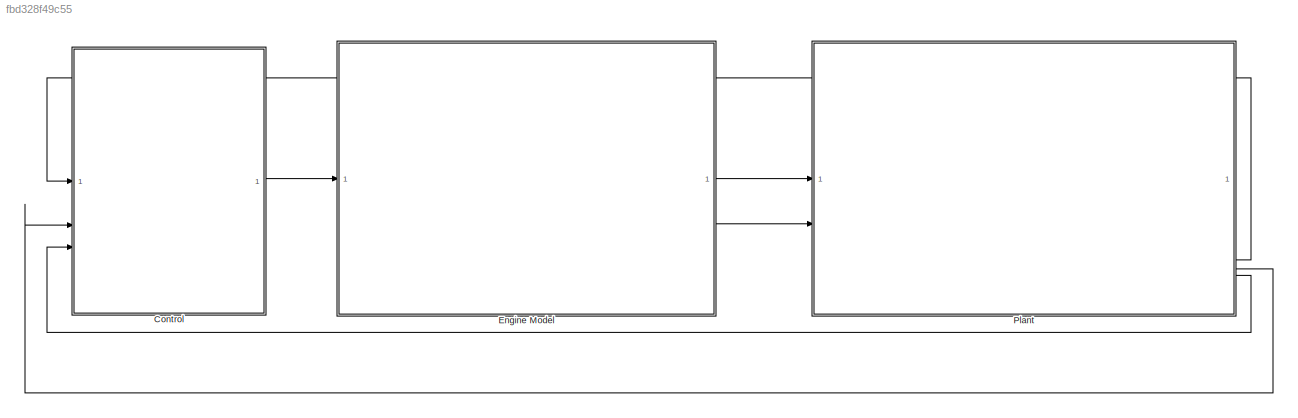
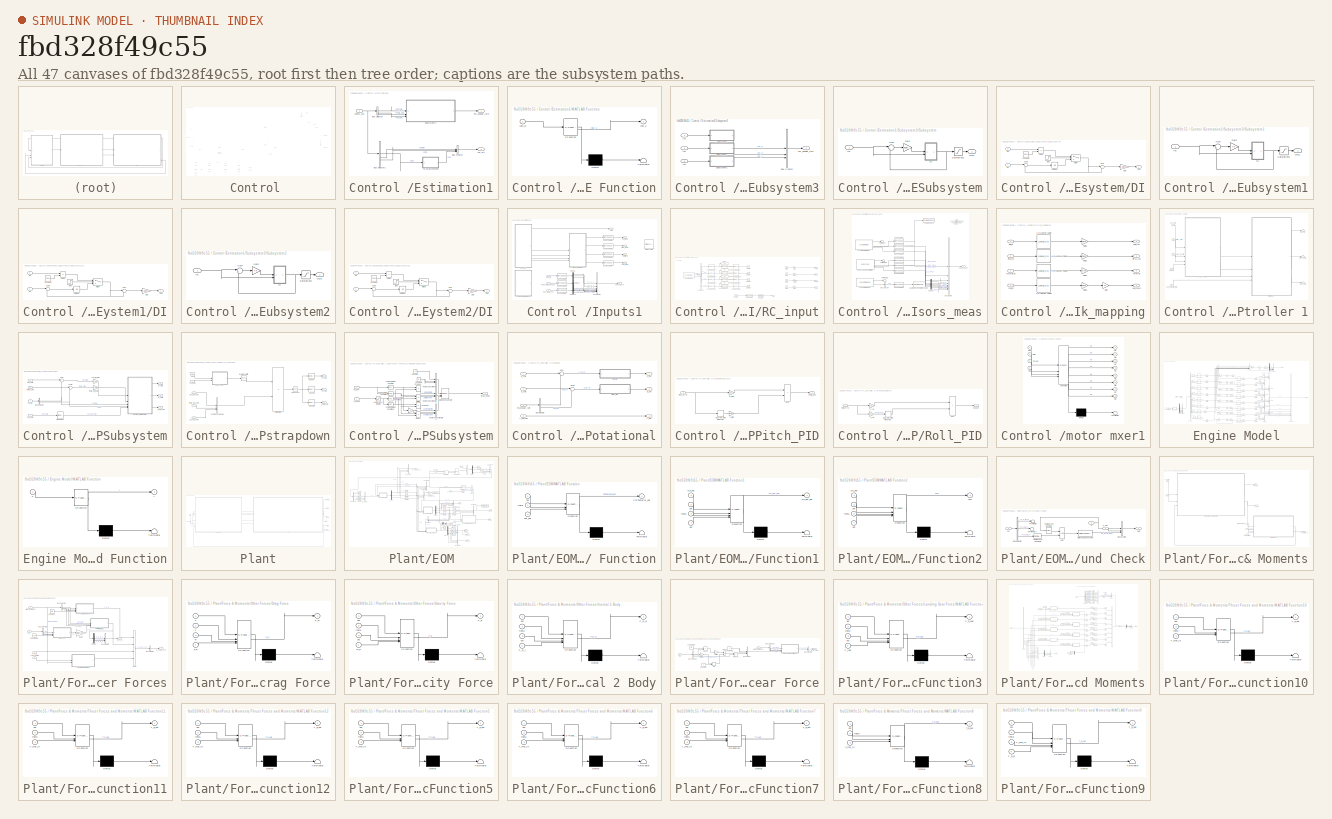
[diagram: thumbnail index - all 47 canvases of the model, root first then tree order]
MODEL slx_fbd328f49c55
KIND model
CONFIG AbsTol = auto
CONFIG EnableMultiTasking = off
CONFIG FixedStep = auto
CONFIG MaxStep = auto
CONFIG MinStep = auto
CONFIG RelTol = 1e-3
CONFIG SampleTimeConstraint = Unconstrained
CONFIG SolverName = VariableStepAuto
CONFIG StartTime = 0.0
CONFIG StopTime = inf
BLOCK [SubSystem] Control 
BLOCK [Inport] Control /Acc_b
BLOCK [BusCreator] Control /Bus Creator
  DisplayOption = bar
  InheritFromInputs = on
  Inputs = 8
BLOCK [Constant] Control /Constant3
  OutDataTypeStr = boolean
  Value = 0
BLOCK [Constant] Control /Constant4
  OutDataTypeStr = boolean
BLOCK [Display] Control /Display
  Decimation = 1
BLOCK [SubSystem] Control /Estimation1
BLOCK [BusCreator] Control /Estimation1/Bus Creator
  DisplayOption = bar
  InheritFromInputs = on
  Inputs = 3
BLOCK [BusSelector] Control /Estimation1/Bus Selector
  OutputSignals = Phi_dot,Theta_dot,Psi_dot
BLOCK [BusSelector] Control /Estimation1/Bus Selector1
  OutputSignals = Psi,Theta,Phi
BLOCK [SubSystem] Control /Estimation1/MATLAB Function
  ErrorFcn = Stateflow.Translate.translate
  PermitHierarchicalResolution = ExplicitOnly
  SFBlockType = MATLAB Function
  TreatAsAtomicUnit = on
BLOCK [Demux] Control /Estimation1/MATLAB Function/ Demux 
  Outputs = 1
BLOCK [S-Function] Control /Estimation1/MATLAB Function/ SFunction 
  EnableBusSupport = off
  FunctionName = sf_sfun
  PortCounts = [1 2]
  SFcnIsStateOwnerBlock = off
  SFunctionDeploymentMode = off
  Tag = Stateflow S-Function 14
BLOCK [Terminator] Control /Estimation1/MATLAB Function/ Terminator 
BLOCK [Outport] Control /Estimation1/MATLAB Function/yaw_u
BLOCK [Inport] Control /Estimation1/MATLAB Function/yaw_w
BLOCK [SubSystem] Control /Estimation1/Subsystem3
BLOCK [BusCreator] Control /Estimation1/Subsystem3/Bus Creator
  DisplayOption = bar
  InheritFromInputs = on
  Inputs = 3
BLOCK [Inport] Control /Estimation1/Subsystem3/In1
BLOCK [Inport] Control /Estimation1/Subsystem3/In2
  Port = 2
BLOCK [Inport] Control /Estimation1/Subsystem3/In3
  Port = 3
BLOCK [SubSystem] Control /Estimation1/Subsystem3/Subsystem
BLOCK [SubSystem] Control /Estimation1/Subsystem3/Subsystem/DI
BLOCK [Constant] Control /Estimation1/Subsystem3/Subsystem/DI/Constant2
  Value = 0.004
BLOCK [Product] Control /Estimation1/Subsystem3/Subsystem/DI/Divide
  Inputs = */
BLOCK [Gain] Control /Estimation1/Subsystem3/Subsystem/DI/Gain
  Gain = 0.004/2
BLOCK [Inport] Control /Estimation1/Subsystem3/Subsystem/DI/In1
BLOCK [Inport] Control /Estimation1/Subsystem3/Subsystem/DI/In2
  Port = 2
BLOCK [Outport] Control /Estimation1/Subsystem3/Subsystem/DI/Out1
BLOCK [Step] Control /Estimation1/Subsystem3/Subsystem/DI/Step
  After = 0
  Before = 1
  SampleTime = 0.004
  Time = 0.02
BLOCK [Sum] Control /Estimation1/Subsystem3/Subsystem/DI/Sum
  Inputs = |++
  NameLocation = top
BLOCK [Sum] Control /Estimation1/Subsystem3/Subsystem/DI/Sum1
  Inputs = |++
BLOCK [Switch] Control /Estimation1/Subsystem3/Subsystem/DI/Switch
  Criteria = u2 > Threshold
  InputSameDT = off
  SaturateOnIntegerOverflow = off
BLOCK [UnitDelay] Control /Estimation1/Subsystem3/Subsystem/DI/Unit Delay
  HasFrameUpgradeWarning = on
  SampleTime = -1
BLOCK [Gain] Control /Estimation1/Subsystem3/Subsystem/Gain
  Gain = single(4.5)
BLOCK [Inport] Control /Estimation1/Subsystem3/Subsystem/In1
BLOCK [Outport] Control /Estimation1/Subsystem3/Subsystem/Out1
BLOCK [Saturate] Control /Estimation1/Subsystem3/Subsystem/Saturation1
  LowerLimit = -5.24
  UpperLimit = 5.24
BLOCK [Sum] Control /Estimation1/Subsystem3/Subsystem/Sum
  Inputs = |+-
BLOCK [SubSystem] Control /Estimation1/Subsystem3/Subsystem1
BLOCK [SubSystem] Control /Estimation1/Subsystem3/Subsystem1/DI
BLOCK [Constant] Control /Estimation1/Subsystem3/Subsystem1/DI/Constant2
  Value = 0.004
BLOCK [Product] Control /Estimation1/Subsystem3/Subsystem1/DI/Divide
  Inputs = */
BLOCK [Gain] Control /Estimation1/Subsystem3/Subsystem1/DI/Gain
  Gain = 0.004/2
BLOCK [Inport] Control /Estimation1/Subsystem3/Subsystem1/DI/In1
BLOCK [Inport] Control /Estimation1/Subsystem3/Subsystem1/DI/In2
  Port = 2
BLOCK [Outport] Control /Estimation1/Subsystem3/Subsystem1/DI/Out1
BLOCK [Step] Control /Estimation1/Subsystem3/Subsystem1/DI/Step
  After = 0
  Before = 1
  SampleTime = 0.004
  Time = 0.02
BLOCK [Sum] Control /Estimation1/Subsystem3/Subsystem1/DI/Sum
  Inputs = |++
  NameLocation = top
BLOCK [Sum] Control /Estimation1/Subsystem3/Subsystem1/DI/Sum1
  Inputs = |++
BLOCK [Switch] Control /Estimation1/Subsystem3/Subsystem1/DI/Switch
  Criteria = u2 > Threshold
  InputSameDT = off
  SaturateOnIntegerOverflow = off
BLOCK [UnitDelay] Control /Estimation1/Subsystem3/Subsystem1/DI/Unit Delay
  HasFrameUpgradeWarning = on
  SampleTime = -1
BLOCK [Gain] Control /Estimation1/Subsystem3/Subsystem1/Gain
  Gain = 4.5
BLOCK [Inport] Control /Estimation1/Subsystem3/Subsystem1/In1
BLOCK [Outport] Control /Estimation1/Subsystem3/Subsystem1/Out1
BLOCK [Saturate] Control /Estimation1/Subsystem3/Subsystem1/Saturation1
  LowerLimit = -5.24
  UpperLimit = 5.24
BLOCK [Sum] Control /Estimation1/Subsystem3/Subsystem1/Sum
  Inputs = |+-
BLOCK [SubSystem] Control /Estimation1/Subsystem3/Subsystem2
BLOCK [SubSystem] Control /Estimation1/Subsystem3/Subsystem2/DI
BLOCK [Constant] Control /Estimation1/Subsystem3/Subsystem2/DI/Constant2
  Value = 0.004
BLOCK [Product] Control /Estimation1/Subsystem3/Subsystem2/DI/Divide
  Inputs = */
BLOCK [Gain] Control /Estimation1/Subsystem3/Subsystem2/DI/Gain
  Gain = 0.004/2
BLOCK [Inport] Control /Estimation1/Subsystem3/Subsystem2/DI/In1
BLOCK [Inport] Control /Estimation1/Subsystem3/Subsystem2/DI/In2
  Port = 2
BLOCK [Outport] Control /Estimation1/Subsystem3/Subsystem2/DI/Out1
BLOCK [Step] Control /Estimation1/Subsystem3/Subsystem2/DI/Step
  After = 0
  Before = 1
  SampleTime = 0.004
  Time = 0.02
BLOCK [Sum] Control /Estimation1/Subsystem3/Subsystem2/DI/Sum
  Inputs = |++
  NameLocation = top
BLOCK [Sum] Control /Estimation1/Subsystem3/Subsystem2/DI/Sum1
  Inputs = |++
BLOCK [Switch] Control /Estimation1/Subsystem3/Subsystem2/DI/Switch
  Criteria = u2 > Threshold
  InputSameDT = off
  SaturateOnIntegerOverflow = off
BLOCK [UnitDelay] Control /Estimation1/Subsystem3/Subsystem2/DI/Unit Delay
  HasFrameUpgradeWarning = on
  SampleTime = -1
BLOCK [Gain] Control /Estimation1/Subsystem3/Subsystem2/Gain
  Gain = 4.5
BLOCK [Inport] Control /Estimation1/Subsystem3/Subsystem2/In1
BLOCK [Outport] Control /Estimation1/Subsystem3/Subsystem2/Out1
  NameLocation = right
BLOCK [Saturate] Control /Estimation1/Subsystem3/Subsystem2/Saturation1
  LowerLimit = -5.24
  UpperLimit = 5.24
BLOCK [Sum] Control /Estimation1/Subsystem3/Subsystem2/Sum
  Inputs = |+-
BLOCK [Outport] Control /Estimation1/Subsystem3/est_angular_rate
BLOCK [Outport] Control /Estimation1/est_angular_rate
BLOCK [Outport] Control /Estimation1/est_att
  Port = 2
BLOCK [Inport] Control /Estimation1/sensor_out
BLOCK [Gain] Control /Gain2
  Gain = -1/(20*9.81*2)
BLOCK [SubSystem] Control /Inputs1
BLOCK [Inport] Control /Inputs1/Acc_b
BLOCK [Outport] Control /Inputs1/Arm
BLOCK [BusCreator] Control /Inputs1/Bus Creator
  DisplayOption = bar
  InheritFromInputs = on
  Inputs = 9
BLOCK [DataTypeConversion] Control /Inputs1/Cast To Single1
  OutDataTypeStr = single
  RndMeth = Floor
  SaturateOnIntegerOverflow = off
BLOCK [DataTypeConversion] Control /Inputs1/Cast To Single2
  OutDataTypeStr = single
  RndMeth = Floor
  SaturateOnIntegerOverflow = off
BLOCK [DataTypeConversion] Control /Inputs1/Cast To Single3
  OutDataTypeStr = single
  RndMeth = Floor
  SaturateOnIntegerOverflow = off
BLOCK [DataTypeConversion] Control /Inputs1/Cast To Single4
  OutDataTypeStr = single
  RndMeth = Floor
  SaturateOnIntegerOverflow = off
BLOCK [DataTypeConversion] Control /Inputs1/Cast To Single5
  OutDataTypeStr = single
  RndMeth = Floor
  SaturateOnIntegerOverflow = off
BLOCK [DataTypeConversion] Control /Inputs1/Cast To Single6
  OutDataTypeStr = single
  RndMeth = Floor
  SaturateOnIntegerOverflow = off
BLOCK [DataTypeConversion] Control /Inputs1/Cast To Single7
  OutDataTypeStr = single
  RndMeth = Floor
  SaturateOnIntegerOverflow = off
BLOCK [Demux] Control /Inputs1/Demux
  Outputs = 3
BLOCK [Demux] Control /Inputs1/Demux1
  Outputs = 3
BLOCK [Demux] Control /Inputs1/Demux2
  Outputs = 3
BLOCK [Inport] Control /Inputs1/Phi_Theta_Psi
  Port = 3
BLOCK [Inport] Control /Inputs1/Phi_Theta_Psi_dot
  Port = 2
BLOCK [Reference] Control /Inputs1/Pilot Joystick  REF=aerolibanimutils/Pilot Joystick
  Commented = on
  SourceBlock = aerolibanimutils/Pilot Joystick
  SourceType = PilotJoystick
BLOCK [SubSystem] Control /Inputs1/RC_input
BLOCK [Lookup_n-D] Control /Inputs1/RC_input/1-D Lookup Table
  BreakpointsForDimension1 = ([1000 1500 2000])
  Commented = on
  InputPortMap = u0
  InternalRulePriority = Speed
  NumberOfTableDimensions = 1
  RndMeth = Simplest
  Table = single([-1 0 1])
BLOCK [Lookup_n-D] Control /Inputs1/RC_input/1-D Lookup Table1
  BreakpointsForDimension1 = ([1000 1500 2000])
  Commented = on
  InputPortMap = u0
  InternalRulePriority = Speed
  NumberOfTableDimensions = 1
  RndMeth = Simplest
  Table = single([-1 0 1])
BLOCK [Lookup_n-D] Control /Inputs1/RC_input/1-D Lookup Table2
  BreakpointsForDimension1 = ([1000 1500 2000])
  Commented = on
  InputPortMap = u0
  InternalRulePriority = Speed
  NumberOfTableDimensions = 1
  RndMeth = Simplest
  Table = single([0 0.5 1])
BLOCK [Lookup_n-D] Control /Inputs1/RC_input/1-D Lookup Table3
  BreakpointsForDimension1 = ([1000 1500 2000])
  Commented = on
  InputPortMap = u0
  InternalRulePriority = Speed
  NumberOfTableDimensions = 1
  RndMeth = Simplest
  Table = single([-1 0 1])
BLOCK [Lookup_n-D] Control /Inputs1/RC_input/1-D Lookup Table4
  BreakpointsForDimension1 = [-1, 0,1]
  Commented = on
  InputPortMap = u0
  InternalRulePriority = Speed
  NumberOfTableDimensions = 1
  RndMeth = Simplest
  Table = single([1000, 1500, 2000])
BLOCK [Lookup_n-D] Control /Inputs1/RC_input/1-D Lookup Table5
  BreakpointsForDimension1 = [-1, 0,1]
  Commented = on
  InputPortMap = u0
  InternalRulePriority = Speed
  NumberOfTableDimensions = 1
  RndMeth = Simplest
  Table = single([1000, 1500, 2000])
BLOCK [Lookup_n-D] Control /Inputs1/RC_input/1-D Lookup Table6
  BreakpointsForDimension1 = [0,1]
  Commented = on
  InputPortMap = u0
  InternalRulePriority = Speed
  NumberOfTableDimensions = 1
  RndMeth = Simplest
  Table = single([1000,  2000])
BLOCK [Lookup_n-D] Control /Inputs1/RC_input/1-D Lookup Table7
  BreakpointsForDimension1 = [-1, 0,1]
  Commented = on
  InputPortMap = u0
  InternalRulePriority = Speed
  NumberOfTableDimensions = 1
  RndMeth = Simplest
  Table = single([1000, 1500, 2000])
BLOCK [Outport] Control /Inputs1/RC_input/Arm
BLOCK [BusSelector] Control /Inputs1/RC_input/Bus Selector
  Commented = on
  OutputSignals = roll,pitch,throttle,yaw
BLOCK [DataTypeConversion] Control /Inputs1/RC_input/Cast To Single
  Commented = on
  OutDataTypeStr = single
  RndMeth = Floor
  SaturateOnIntegerOverflow = off
BLOCK [DataTypeConversion] Control /Inputs1/RC_input/Cast To Single1
  Commented = on
  OutDataTypeStr = single
  RndMeth = Floor
  SaturateOnIntegerOverflow = off
BLOCK [DataTypeConversion] Control /Inputs1/RC_input/Cast To Single2
  Commented = on
  OutDataTypeStr = single
  RndMeth = Floor
  SaturateOnIntegerOverflow = off
BLOCK [DataTypeConversion] Control /Inputs1/RC_input/Cast To Single3
  Commented = on
  OutDataTypeStr = single
  RndMeth = Floor
  SaturateOnIntegerOverflow = off
BLOCK [DataTypeConversion] Control /Inputs1/RC_input/Cast To Single4
  OutDataTypeStr = single
  RndMeth = Floor
  SaturateOnIntegerOverflow = off
BLOCK [Reference] Control /Inputs1/RC_input/Compare To Constant  REF=simulink/Logic and Bit
Operations/Compare
To Constant
  SourceBlock = simulink/Logic and Bit\nOperations/Compare\nTo Constant
  SourceType = Compare To Constant
BLOCK [Constant] Control /Inputs1/RC_input/Constant
  Value = 2000
BLOCK [Display] Control /Inputs1/RC_input/Display
  Commented = on
  Decimation = 1
BLOCK [Display] Control /Inputs1/RC_input/Display1
  Commented = on
  Decimation = 1
BLOCK [Display] Control /Inputs1/RC_input/Display2
  Commented = on
  Decimation = 1
BLOCK [Display] Control /Inputs1/RC_input/Display3
  Commented = on
  Decimation = 1
BLOCK [Gain] Control /Inputs1/RC_input/Gain
  Gain = Roll_In_0_1
BLOCK [Gain] Control /Inputs1/RC_input/Gain1
  Gain = Pitch_In_0_1
BLOCK [Gain] Control /Inputs1/RC_input/Gain2
  Gain = Thrust_In_0_1
BLOCK [Gain] Control /Inputs1/RC_input/Gain3
  Gain = Yaw_In_0_1
BLOCK [Reference] Control /Inputs1/RC_input/PX4 uORB Read  REF=px4uORBlib/PX4 uORB Read
  Commented = on
  SourceBlock = px4uORBlib/PX4 uORB Read
  SourceType = PX4 uORB Read
BLOCK [Outport] Control /Inputs1/RC_input/Pitch_in
  Port = 3
BLOCK [Outport] Control /Inputs1/RC_input/Roll_in
  Port = 2
BLOCK [Saturate] Control /Inputs1/RC_input/Saturation
  Commented = on
  LowerLimit = -1
  UpperLimit = 1
BLOCK [Saturate] Control /Inputs1/RC_input/Saturation1
  Commented = on
  LowerLimit = -1
  UpperLimit = 1
BLOCK [Saturate] Control /Inputs1/RC_input/Saturation2
  Commented = on
  LowerLimit = 0
  UpperLimit = 1
BLOCK [Saturate] Control /Inputs1/RC_input/Saturation3
  Commented = on
  LowerLimit = -1
  UpperLimit = 1
BLOCK [Step] Control /Inputs1/RC_input/Step
  SampleTime = 0
  Time = 0
BLOCK [Step] Control /Inputs1/RC_input/Step1
  SampleTime = 0
  Time = 0
BLOCK [Step] Control /Inputs1/RC_input/Step2
  SampleTime = 0
  Time = 0
BLOCK [Step] Control /Inputs1/RC_input/Step3
  SampleTime = 0
  Time = 0
BLOCK [Terminator] Control /Inputs1/RC_input/Terminator1
  Commented = on
BLOCK [Outport] Control /Inputs1/RC_input/Throttle_in
  Port = 4
BLOCK [Outport] Control /Inputs1/RC_input/Yaw_in
  Port = 5
BLOCK [Outport] Control /Inputs1/Roll_rad//s
  Port = 2
BLOCK [SubSystem] Control /Inputs1/Sensors_meas
  Commented = on
BLOCK [Reference] Control /Inputs1/Sensors_meas/Accelerometer - forces   REF=px4Sensorslib/Accelerometer
  SourceBlock = px4Sensorslib/Accelerometer
  SourceType = PX4 Accelerometer
BLOCK [BusCreator] Control /Inputs1/Sensors_meas/Bus Creator
  DisplayOption = bar
  InheritFromInputs = on
  Inputs = 9
BLOCK [BusSelector] Control /Inputs1/Sensors_meas/Bus Selector
  OutputSignals = q
BLOCK [DataTypeConversion] Control /Inputs1/Sensors_meas/Cast To Single
  OutDataTypeStr = single
  RndMeth = Floor
  SaturateOnIntegerOverflow = off
BLOCK [DataTypeConversion] Control /Inputs1/Sensors_meas/Cast To Single1
  OutDataTypeStr = single
  RndMeth = Floor
  SaturateOnIntegerOverflow = off
BLOCK [DataTypeConversion] Control /Inputs1/Sensors_meas/Cast To Single2
  OutDataTypeStr = single
  RndMeth = Floor
  SaturateOnIntegerOverflow = off
BLOCK [DataTypeConversion] Control /Inputs1/Sensors_meas/Cast To Single3
  OutDataTypeStr = single
  RndMeth = Floor
  SaturateOnIntegerOverflow = off
BLOCK [DataTypeConversion] Control /Inputs1/Sensors_meas/Cast To Single4
  OutDataTypeStr = single
  RndMeth = Floor
  SaturateOnIntegerOverflow = off
BLOCK [DataTypeConversion] Control /Inputs1/Sensors_meas/Cast To Single5
  OutDataTypeStr = single
  RndMeth = Floor
  SaturateOnIntegerOverflow = off
BLOCK [DataTypeConversion] Control /Inputs1/Sensors_meas/Cast To Single6
  OutDataTypeStr = single
  RndMeth = Floor
  SaturateOnIntegerOverflow = off
BLOCK [Demux] Control /Inputs1/Sensors_meas/Demux
  Outputs = 3
BLOCK [Reference] Control /Inputs1/Sensors_meas/Gyroscope - angular rates  REF=px4Sensorslib/Gyroscope
  SourceBlock = px4Sensorslib/Gyroscope
  SourceType = PX4 Gyroscope
BLOCK [Reference] Control /Inputs1/Sensors_meas/PX4 uORB Read  REF=px4uORBlib/PX4 uORB Read
  SourceBlock = px4uORBlib/PX4 uORB Read
  SourceType = PX4 uORB Read
BLOCK [Reference] Control /Inputs1/Sensors_meas/Quaternions to Rotation Angles  REF=sharedtransform/Quaternions to Rotation Angles
  AttributesFormatString = Rotation Order: %<rotationOrder>
  LibrarySourceBlock = aerolibtransform2/Quaternions to Rotation Angles
  SourceBlock = sharedtransform/Quaternions to Rotation Angles
  SourceType = Quat2Ang
BLOCK [Terminator] Control /Inputs1/Sensors_meas/Terminator
BLOCK [Terminator] Control /Inputs1/Sensors_meas/Terminator1
BLOCK [Terminator] Control /Inputs1/Sensors_meas/Terminator2
BLOCK [ToWorkspace] Control /Inputs1/Sensors_meas/To Workspace
  FixptAsFi = on
  MaxDataPoints = inf
  SampleTime = -1
  SaveFormat = Structure With Time
  VariableName = ax
BLOCK [Outport] Control /Inputs1/Sensors_meas/sensor_out
BLOCK [SubSystem] Control /Inputs1/Stick_mapping
BLOCK [Lookup_n-D] Control /Inputs1/Stick_mapping/1-D Lookup Table
  BreakpointsForDimension1 = single([-1,1])
  InputPortMap = u0
  InternalRulePriority = Speed
  NumberOfTableDimensions = 1
  RndMeth = Simplest
  Table = single([-30,30])
BLOCK [Lookup_n-D] Control /Inputs1/Stick_mapping/1-D Lookup Table1
  BreakpointsForDimension1 = single([-1,1])
  InputPortMap = u0
  InternalRulePriority = Speed
  NumberOfTableDimensions = 1
  RndMeth = Simplest
  Table = single([30,-30])
BLOCK [Lookup_n-D] Control /Inputs1/Stick_mapping/1-D Lookup Table3
  BreakpointsForDimension1 = single([0 0.100000001 0.25 0.5 0.75 1])
  InputPortMap = u0
  InternalRulePriority = Speed
  NumberOfTableDimensions = 1
  RndMeth = Simplest
  Table = single([0 -0.200000003 -0.5 -1 -1.5 -2])
BLOCK [Lookup_n-D] Control /Inputs1/Stick_mapping/1-D Lookup Table4
  BreakpointsForDimension1 = single([-1,1])
  InputPortMap = u0
  InternalRulePriority = Speed
  NumberOfTableDimensions = 1
  RndMeth = Simplest
  Table = single([-90,90])
BLOCK [Gain] Control /Inputs1/Stick_mapping/Gain
  Gain = 0.2
BLOCK [Gain] Control /Inputs1/Stick_mapping/Gain1
  Gain = pi/180
BLOCK [Gain] Control /Inputs1/Stick_mapping/Gain2
  Gain = pi/180
BLOCK [Gain] Control /Inputs1/Stick_mapping/Gain3
  Gain = pi/180
BLOCK [Gain] Control /Inputs1/Stick_mapping/Gain4
  Gain = 20*9.81
BLOCK [Inport] Control /Inputs1/Stick_mapping/Pitch_in
  Port = 2
BLOCK [Outport] Control /Inputs1/Stick_mapping/Pitch_rad
  Port = 2
BLOCK [Inport] Control /Inputs1/Stick_mapping/Roll_in
BLOCK [Outport] Control /Inputs1/Stick_mapping/Roll_rad
BLOCK [Outport] Control /Inputs1/Stick_mapping/Throttle
  Port = 3
BLOCK [Inport] Control /Inputs1/Stick_mapping/Throttle_in
  Port = 3
BLOCK [Inport] Control /Inputs1/Stick_mapping/yaw_in
  Port = 4
BLOCK [Outport] Control /Inputs1/Stick_mapping/yaw_rad//s
  Port = 4
BLOCK [Outport] Control /Inputs1/Throttle_in
  Port = 6
BLOCK [Outport] Control /Inputs1/Yaw_rad//s
  Port = 4
BLOCK [Outport] Control /Inputs1/pitch_rad//s
  Port = 3
BLOCK [Outport] Control /Inputs1/sensor_out
  Port = 5
BLOCK [Outport] Control /Motor_Out
BLOCK [SubSystem] Control /PI_controller 1
BLOCK [SubSystem] Control /PI_controller 1/Subsystem
BLOCK [BusSelector] Control /PI_controller 1/Subsystem/Bus Selector
  OutputSignals = Theta,Phi
BLOCK [SubSystem] Control /PI_controller 1/Subsystem/Inverse_strapdown
BLOCK [Reference] Control /PI_controller 1/Subsystem/Inverse_strapdown/Invert 3x3 Matrix  REF=aerolibutil/Invert 
3x3 Matrix
  SourceBlock = aerolibutil/Invert \n3x3 Matrix
  SourceType = Invert 3x3 Matrix
BLOCK [Product] Control /PI_controller 1/Subsystem/Inverse_strapdown/Matrix Multiply
  Multiplication = Matrix(*)
BLOCK [Selector] Control /PI_controller 1/Subsystem/Inverse_strapdown/Selector
  IndexOptions = Index vector (dialog)
  Indices = 1
  InputPortWidth = 3
  OutputSizes = 1
BLOCK [Selector] Control /PI_controller 1/Subsystem/Inverse_strapdown/Selector1
  IndexOptions = Index vector (dialog)
  Indices = 2
  InputPortWidth = 3
  OutputSizes = 1
BLOCK [Selector] Control /PI_controller 1/Subsystem/Inverse_strapdown/Selector2
  IndexOptions = Index vector (dialog)
  Indices = 3
  InputPortWidth = 3
  OutputSizes = 1
BLOCK [SubSystem] Control /PI_controller 1/Subsystem/Inverse_strapdown/Subsystem
BLOCK [Saturate] Control /PI_controller 1/Subsystem/Inverse_strapdown/Subsystem/Avoid_Zero_Division
  LowerLimit = -pi/2*0.9
  UpperLimit = pi/2*0.9
BLOCK [Constant] Control /PI_controller 1/Subsystem/Inverse_strapdown/Subsystem/Constant
  OutDataTypeStr = single
BLOCK [Constant] Control /PI_controller 1/Subsystem/Inverse_strapdown/Subsystem/Constant1
  OutDataTypeStr = single
  Value = 0
BLOCK [Product] Control /PI_controller 1/Subsystem/Inverse_strapdown/Subsystem/Divide
  Inputs = */
BLOCK [Product] Control /PI_controller 1/Subsystem/Inverse_strapdown/Subsystem/Divide1
  Inputs = */
BLOCK [Gain] Control /PI_controller 1/Subsystem/Inverse_strapdown/Subsystem/Gain
  Gain = -1
BLOCK [Concatenate] Control /PI_controller 1/Subsystem/Inverse_strapdown/Subsystem/Matrix Concaenate
  ConcatenateDimension = 2
  Mode = Multidimensional array
  NumInputs = 3
BLOCK [Product] Control /PI_controller 1/Subsystem/Inverse_strapdown/Subsystem/Product
  RndMeth = Zero
BLOCK [Product] Control /PI_controller 1/Subsystem/Inverse_strapdown/Subsystem/Product1
  RndMeth = Zero
BLOCK [Outport] Control /PI_controller 1/Subsystem/Inverse_strapdown/Subsystem/Strap_down
BLOCK [Trigonometry] Control /PI_controller 1/Subsystem/Inverse_strapdown/Subsystem/Trigonometric Function
BLOCK [Trigonometry] Control /PI_controller 1/Subsystem/Inverse_strapdown/Subsystem/Trigonometric Function1
  Operator = cos
BLOCK [Trigonometry] Control /PI_controller 1/Subsystem/Inverse_strapdown/Subsystem/Trigonometric Function2
  Operator = tan
BLOCK [Trigonometry] Control /PI_controller 1/Subsystem/Inverse_strapdown/Subsystem/Trigonometric Function3
  Operator = cos
BLOCK [Concatenate] Control /PI_controller 1/Subsystem/Inverse_strapdown/Subsystem/Vector Concatenate
  Mode = Multidimensional array
  NumInputs = 3
BLOCK [Concatenate] Control /PI_controller 1/Subsystem/Inverse_strapdown/Subsystem/Vector Concatenate1
  Mode = Multidimensional array
  NumInputs = 3
BLOCK [Concatenate] Control /PI_controller 1/Subsystem/Inverse_strapdown/Subsystem/Vector Concatenate2
  Mode = Multidimensional array
  NumInputs = 3
BLOCK [Inport] Control /PI_controller 1/Subsystem/Inverse_strapdown/Subsystem/est_phi
BLOCK [Inport] Control /PI_controller 1/Subsystem/Inverse_strapdown/Subsystem/est_theta
  Port = 2
BLOCK [Math] Control /PI_controller 1/Subsystem/Inverse_strapdown/Transpose
  Operator = transpose
BLOCK [Concatenate] Control /PI_controller 1/Subsystem/Inverse_strapdown/Vector Concatenate
  Mode = Multidimensional array
  NumInputs = 3
BLOCK [Inport] Control /PI_controller 1/Subsystem/Inverse_strapdown/est_phi
  Port = 3
BLOCK [Inport] Control /PI_controller 1/Subsystem/Inverse_strapdown/est_theta
  Port = 4
BLOCK [Outport] Control /PI_controller 1/Subsystem/Inverse_strapdown/p_cmd
BLOCK [Inport] Control /PI_controller 1/Subsystem/Inverse_strapdown/phi_dot_cmd
BLOCK [Inport] Control /PI_controller 1/Subsystem/Inverse_strapdown/psi_dot_cmd
  Port = 5
BLOCK [Outport] Control /PI_controller 1/Subsystem/Inverse_strapdown/q_cmd
  Port = 2
BLOCK [Outport] Control /PI_controller 1/Subsystem/Inverse_strapdown/r_dot_cmd
  Port = 3
BLOCK [Inport] Control /PI_controller 1/Subsystem/Inverse_strapdown/theta_dot_cmd
  Port = 2
BLOCK [SignalConversion] Control /PI_controller 1/Subsystem/Signal Copy
  OverrideOpt = off
BLOCK [Sum] Control /PI_controller 1/Subsystem/Sum
  Inputs = |+-
BLOCK [Sum] Control /PI_controller 1/Subsystem/Sum1
  Inputs = |+-
BLOCK [Inport] Control /PI_controller 1/Subsystem/est_att
  Port = 4
BLOCK [Outport] Control /PI_controller 1/Subsystem/p_cmd
BLOCK [Inport] Control /PI_controller 1/Subsystem/phi_cmd
BLOCK [Gain] Control /PI_controller 1/Subsystem/phi_err_gain
  Gain = 0.7133389565007833
BLOCK [Inport] Control /PI_controller 1/Subsystem/psi_cmd
  Port = 3
BLOCK [Outport] Control /PI_controller 1/Subsystem/q_cmd
  Port = 2
BLOCK [Outport] Control /PI_controller 1/Subsystem/r_dot_cmd
  Port = 3
BLOCK [Inport] Control /PI_controller 1/Subsystem/theta_cmd
  Port = 2
BLOCK [Gain] Control /PI_controller 1/Subsystem/theta_err_gain
  Gain = 0.7075551271237498
BLOCK [Inport] Control /PI_controller 1/est_angular_rate
  Port = 4
BLOCK [Inport] Control /PI_controller 1/est_att
  Port = 5
BLOCK [Inport] Control /PI_controller 1/phi_cmd
BLOCK [Outport] Control /PI_controller 1/pitch_cmd
  Port = 2
BLOCK [Inport] Control /PI_controller 1/psi_dot_cmd
  Port = 3
BLOCK [Outport] Control /PI_controller 1/roll_cmd
BLOCK [SubSystem] Control /PI_controller 1/rotational
BLOCK [BusSelector] Control /PI_controller 1/rotational/Bus Selector
  OutputSignals = est_p,est_q
BLOCK [Outport] Control /PI_controller 1/rotational/P_dot
BLOCK [SubSystem] Control /PI_controller 1/rotational/Pitch_PID
BLOCK [DiscreteIntegrator] Control /PI_controller 1/rotational/Pitch_PID/Discrete-Time Integrator
  ICPrevOutput = DiscIntNeverNeededParam
  ICPrevScaledInput = DiscIntNeverNeededParam
  InitialConditionSetting = Auto
  SampleTime = -1
BLOCK [Gain] Control /PI_controller 1/rotational/Pitch_PID/I_pitch
  Gain = single(0.02936526)
BLOCK [Gain] Control /PI_controller 1/rotational/Pitch_PID/P_pitch
  Gain = 0.2
BLOCK [Inport] Control /PI_controller 1/rotational/Pitch_PID/Pitch_error
BLOCK [Sum] Control /PI_controller 1/rotational/Pitch_PID/Sum
  IconShape = rectangular
  Inputs = |++
BLOCK [Outport] Control /PI_controller 1/rotational/Pitch_PID/Theta_dot
BLOCK [SubSystem] Control /PI_controller 1/rotational/Roll_PID
BLOCK [DiscreteIntegrator] Control /PI_controller 1/rotational/Roll_PID/Discrete-Time Integrator
  ICPrevOutput = DiscIntNeverNeededParam
  ICPrevScaledInput = DiscIntNeverNeededParam
  InitialConditionSetting = Auto
  SampleTime = -1
  gainval = 1
BLOCK [Gain] Control /PI_controller 1/rotational/Roll_PID/I_roll
  Gain = 0.03033785294146734
BLOCK [Gain] Control /PI_controller 1/rotational/Roll_PID/P_roll
  Gain = 0.2
BLOCK [Inport] Control /PI_controller 1/rotational/Roll_PID/Roll_error
BLOCK [Sum] Control /PI_controller 1/rotational/Roll_PID/Sum
  IconShape = rectangular
  Inputs = |++
BLOCK [Outport] Control /PI_controller 1/rotational/Roll_PID/phi_dot
BLOCK [Sum] Control /PI_controller 1/rotational/Sum
  Inputs = |+-
BLOCK [Sum] Control /PI_controller 1/rotational/Sum1
  Inputs = |+-
BLOCK [Inport] Control /PI_controller 1/rotational/est_angular_rate
  Port = 4
BLOCK [Inport] Control /PI_controller 1/rotational/p_cmd
BLOCK [Inport] Control /PI_controller 1/rotational/q_cmd
  Port = 2
BLOCK [Outport] Control /PI_controller 1/rotational/q_dot
  Port = 2
BLOCK [Outport] Control /PI_controller 1/rotational/r_dot
  Port = 3
BLOCK [Inport] Control /PI_controller 1/rotational/r_dot_cmd
  Port = 3
BLOCK [Inport] Control /PI_controller 1/theta_cmd
  Port = 2
BLOCK [Outport] Control /PI_controller 1/yaw_cmd
  Port = 3
BLOCK [Reference] Control /PX4 PWM Output1  REF=px4Peripheralslib/PX4 PWM Output
  SourceBlock = px4Peripheralslib/PX4 PWM Output
  SourceType = PX4 PWM Output
BLOCK [Inport] Control /Phi_Theta_Psi
  Port = 3
BLOCK [Inport] Control /Phi_Theta_Psi_dot
  Port = 2
BLOCK [RockerSwitchBlock] Control /Rocker Switch1
  Commented = on
BLOCK [SliderBlock] Control /Slider10
  Commented = on
  ScaleMax = 0.5
BLOCK [SliderBlock] Control /Slider11
  Commented = on
  ScaleMax = 0.5
BLOCK [SliderBlock] Control /Slider12
  Commented = on
  ScaleMax = 0.1
BLOCK [SliderBlock] Control /Slider13
  Commented = on
  ScaleMax = 1
BLOCK [SliderBlock] Control /Slider14
  Commented = on
  ScaleMax = 1
BLOCK [SliderBlock] Control /Slider15
  Commented = on
  ScaleMax = 4.5
BLOCK [SliderBlock] Control /Slider16
  Commented = on
  ScaleMax = 4.5
BLOCK [SliderBlock] Control /Slider17
  Commented = on
  ScaleMax = 4.5
BLOCK [SliderBlock] Control /Slider9
  Commented = on
  ScaleMax = 0.1
BLOCK [Terminator] Control /Terminator1
BLOCK [ToWorkspace] Control /To Workspace1
  FixptAsFi = on
  MaxDataPoints = inf
  SampleTime = -1
  SaveFormat = Structure With Time
  VariableName = throttle1
BLOCK [SubSystem] Control /motor mxer1
  ErrorFcn = Stateflow.Translate.translate
  PermitHierarchicalResolution = ExplicitOnly
  SFBlockType = MATLAB Function
  TreatAsAtomicUnit = on
BLOCK [Demux] Control /motor mxer1/ Demux 
  Outputs = 1
BLOCK [S-Function] Control /motor mxer1/ SFunction 
  EnableBusSupport = off
  FunctionName = sf_sfun
  PortCounts = [4 9]
  SFcnIsStateOwnerBlock = off
  SFunctionDeploymentMode = off
  Tag = Stateflow S-Function 18
BLOCK [Terminator] Control /motor mxer1/ Terminator 
BLOCK [Outport] Control /motor mxer1/M1
BLOCK [Outport] Control /motor mxer1/M2
  Port = 2
BLOCK [Outport] Control /motor mxer1/M3
  Port = 3
BLOCK [Outport] Control /motor mxer1/M4
  Port = 4
BLOCK [Outport] Control /motor mxer1/M5
  Port = 5
BLOCK [Outport] Control /motor mxer1/M6
  Port = 6
BLOCK [Outport] Control /motor mxer1/M7
  Port = 7
BLOCK [Outport] Control /motor mxer1/M8
  Port = 8
BLOCK [Inport] Control /motor mxer1/Pitch
  Port = 2
BLOCK [Inport] Control /motor mxer1/Roll
BLOCK [Inport] Control /motor mxer1/Thrust
  Port = 3
BLOCK [Inport] Control /motor mxer1/Yaw
  Port = 4
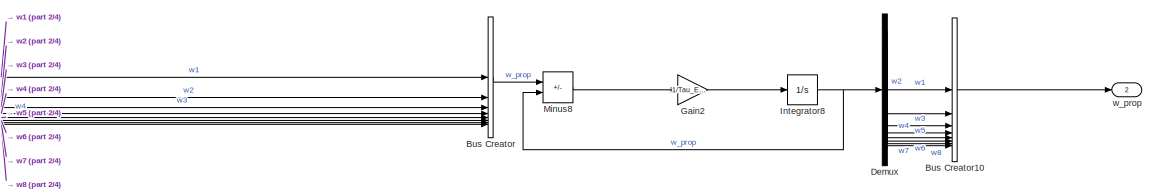
[diagram: Engine Model - part 1/4, top center region]
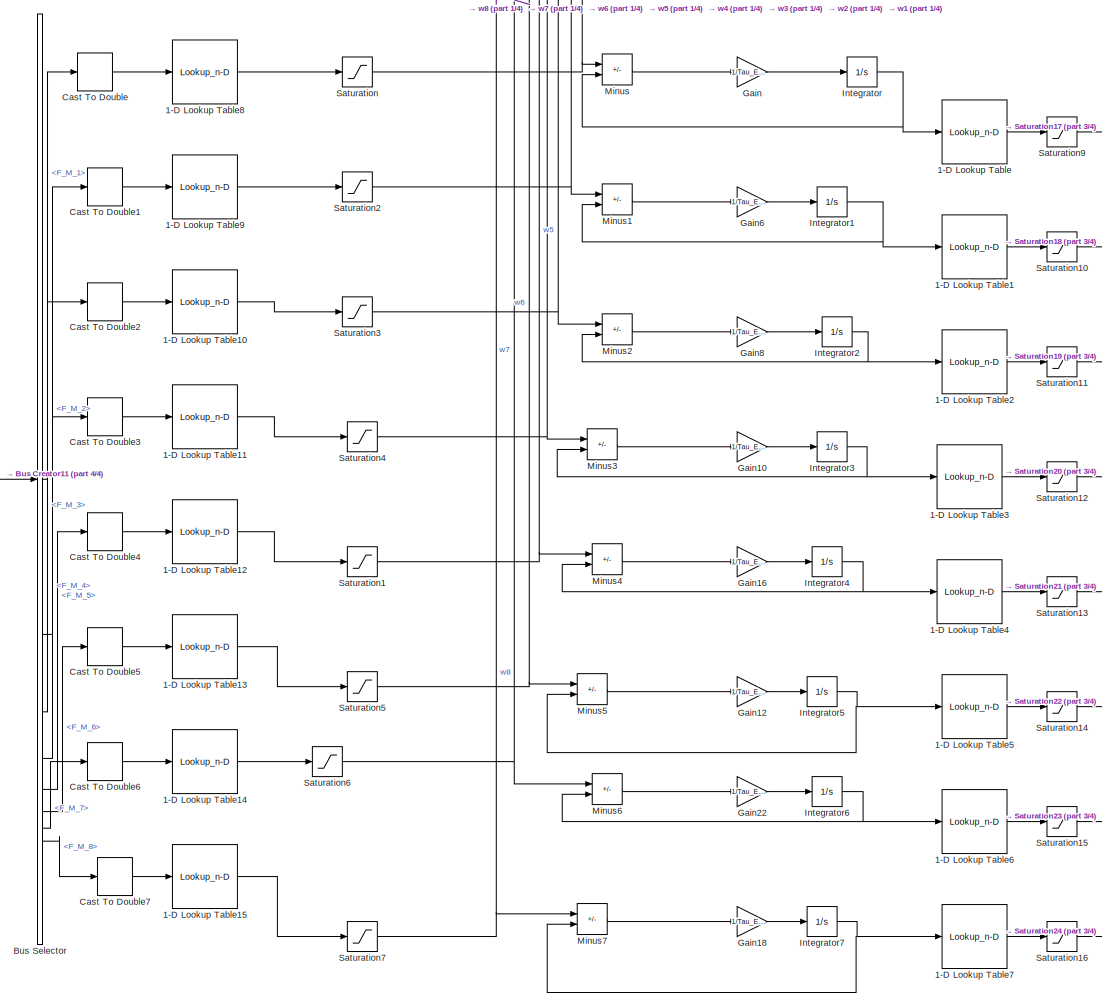
[diagram: Engine Model - part 2/4, center side, full height]
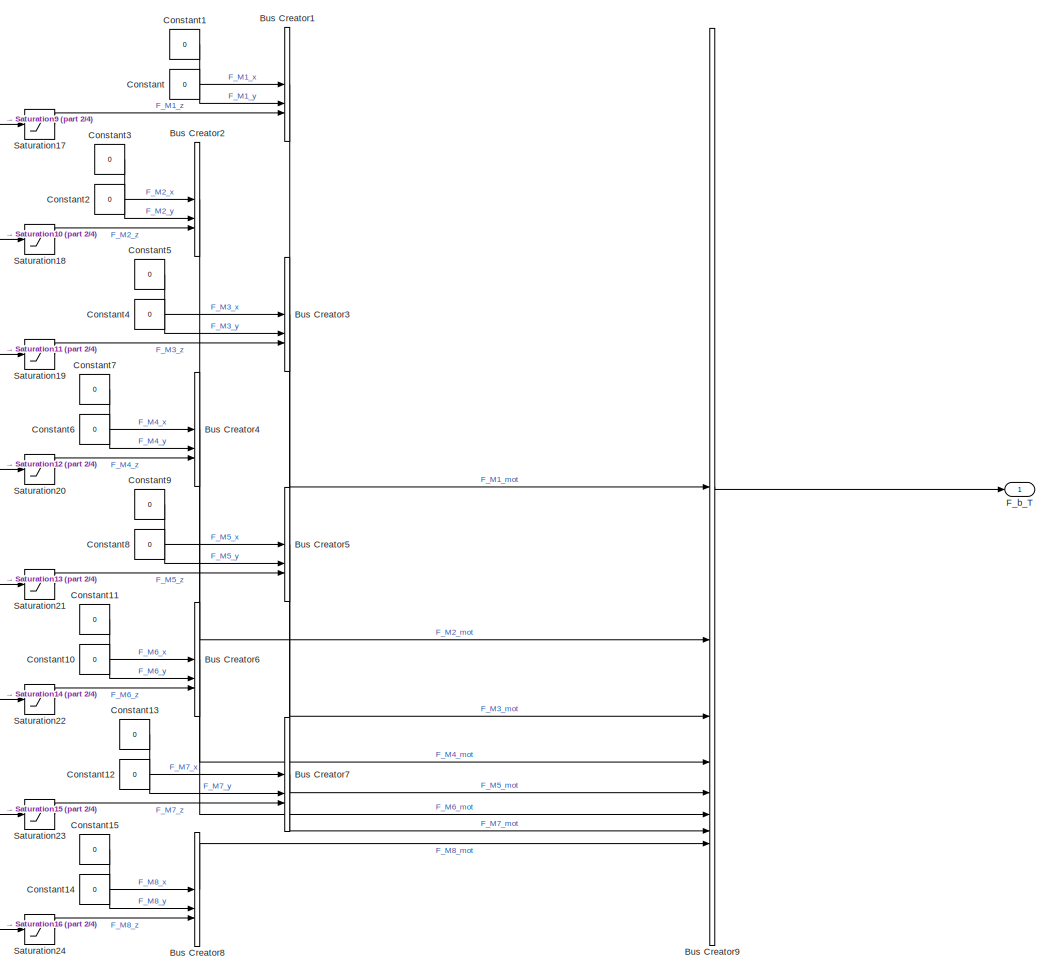
[diagram: Engine Model - part 3/4, right side, full height]
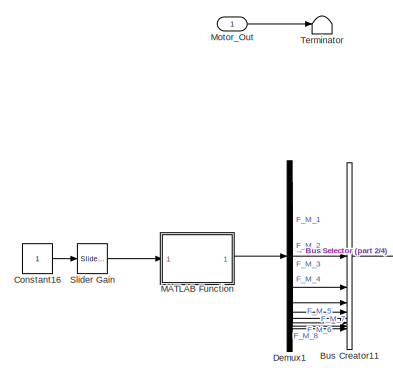
[diagram: Engine Model - part 4/4, bottom left region]
BLOCK [SubSystem] Engine Model
BLOCK [Lookup_n-D] Engine Model/1-D Lookup Table
  BreakpointsForDimension1 = thrustData.RPM
  InputPortMap = u0
  InternalRulePriority = Speed
  NumberOfTableDimensions = 1
  RndMeth = Simplest
  Table = thrustData.Thrust_N_
BLOCK [Lookup_n-D] Engine Model/1-D Lookup Table1
  BreakpointsForDimension1 = thrustData.RPM
  InputPortMap = u0
  InternalRulePriority = Speed
  NumberOfTableDimensions = 1
  RndMeth = Simplest
  Table = thrustData.Thrust_N_
BLOCK [Lookup_n-D] Engine Model/1-D Lookup Table10
  BreakpointsForDimension1 = thrustData.Throttle
  InputPortMap = u0
  InternalRulePriority = Speed
  NumberOfTableDimensions = 1
  RndMeth = Simplest
  Table = thrustData.RPM
BLOCK [Lookup_n-D] Engine Model/1-D Lookup Table11
  BreakpointsForDimension1 = thrustData.Throttle
  InputPortMap = u0
  InternalRulePriority = Speed
  NumberOfTableDimensions = 1
  RndMeth = Simplest
  Table = thrustData.RPM
BLOCK [Lookup_n-D] Engine Model/1-D Lookup Table12
  BreakpointsForDimension1 = thrustData.Throttle
  InputPortMap = u0
  InternalRulePriority = Speed
  NumberOfTableDimensions = 1
  RndMeth = Simplest
  Table = thrustData.RPM
BLOCK [Lookup_n-D] Engine Model/1-D Lookup Table13
  BreakpointsForDimension1 = thrustData.Throttle
  InputPortMap = u0
  InternalRulePriority = Speed
  NumberOfTableDimensions = 1
  RndMeth = Simplest
  Table = thrustData.RPM
BLOCK [Lookup_n-D] Engine Model/1-D Lookup Table14
  BreakpointsForDimension1 = thrustData.Throttle
  InputPortMap = u0
  InternalRulePriority = Speed
  NumberOfTableDimensions = 1
  RndMeth = Simplest
  Table = thrustData.RPM
BLOCK [Lookup_n-D] Engine Model/1-D Lookup Table15
  BreakpointsForDimension1 = thrustData.Throttle
  InputPortMap = u0
  InternalRulePriority = Speed
  NumberOfTableDimensions = 1
  RndMeth = Simplest
  Table = thrustData.RPM
BLOCK [Lookup_n-D] Engine Model/1-D Lookup Table2
  BreakpointsForDimension1 = thrustData.RPM
  InputPortMap = u0
  InternalRulePriority = Speed
  NumberOfTableDimensions = 1
  RndMeth = Simplest
  Table = thrustData.Thrust_N_
BLOCK [Lookup_n-D] Engine Model/1-D Lookup Table3
  BreakpointsForDimension1 = thrustData.RPM
  InputPortMap = u0
  InternalRulePriority = Speed
  NumberOfTableDimensions = 1
  RndMeth = Simplest
  Table = thrustData.Thrust_N_
BLOCK [Lookup_n-D] Engine Model/1-D Lookup Table4
  BreakpointsForDimension1 = thrustData.RPM
  InputPortMap = u0
  InternalRulePriority = Speed
  NumberOfTableDimensions = 1
  RndMeth = Simplest
  Table = thrustData.Thrust_N_
BLOCK [Lookup_n-D] Engine Model/1-D Lookup Table5
  BreakpointsForDimension1 = thrustData.RPM
  InputPortMap = u0
  InternalRulePriority = Speed
  NumberOfTableDimensions = 1
  RndMeth = Simplest
  Table = thrustData.Thrust_N_
BLOCK [Lookup_n-D] Engine Model/1-D Lookup Table6
  BreakpointsForDimension1 = thrustData.RPM
  InputPortMap = u0
  InternalRulePriority = Speed
  NumberOfTableDimensions = 1
  RndMeth = Simplest
  Table = thrustData.Thrust_N_
BLOCK [Lookup_n-D] Engine Model/1-D Lookup Table7
  BreakpointsForDimension1 = thrustData.RPM
  InputPortMap = u0
  InternalRulePriority = Speed
  NumberOfTableDimensions = 1
  RndMeth = Simplest
  Table = thrustData.Thrust_N_
BLOCK [Lookup_n-D] Engine Model/1-D Lookup Table8
  BreakpointsForDimension1 = thrustData.Throttle
  InputPortMap = u0
  InternalRulePriority = Speed
  NumberOfTableDimensions = 1
  RndMeth = Simplest
  Table = thrustData.RPM
BLOCK [Lookup_n-D] Engine Model/1-D Lookup Table9
  BreakpointsForDimension1 = thrustData.Throttle
  InputPortMap = u0
  InternalRulePriority = Speed
  NumberOfTableDimensions = 1
  RndMeth = Simplest
  Table = thrustData.RPM
BLOCK [BusCreator] Engine Model/Bus Creator
  DisplayOption = bar
  InheritFromInputs = on
  Inputs = 8
BLOCK [BusCreator] Engine Model/Bus Creator1
  DisplayOption = bar
  InheritFromInputs = on
  Inputs = 3
BLOCK [BusCreator] Engine Model/Bus Creator10
  DisplayOption = bar
  InheritFromInputs = on
  Inputs = 8
BLOCK [BusCreator] Engine Model/Bus Creator11
  DisplayOption = bar
  InheritFromInputs = on
  Inputs = 8
BLOCK [BusCreator] Engine Model/Bus Creator2
  DisplayOption = bar
  InheritFromInputs = on
  Inputs = 3
BLOCK [BusCreator] Engine Model/Bus Creator3
  DisplayOption = bar
  InheritFromInputs = on
  Inputs = 3
BLOCK [BusCreator] Engine Model/Bus Creator4
  DisplayOption = bar
  InheritFromInputs = on
  Inputs = 3
BLOCK [BusCreator] Engine Model/Bus Creator5
  DisplayOption = bar
  InheritFromInputs = on
  Inputs = 3
BLOCK [BusCreator] Engine Model/Bus Creator6
  DisplayOption = bar
  InheritFromInputs = on
  Inputs = 3
BLOCK [BusCreator] Engine Model/Bus Creator7
  DisplayOption = bar
  InheritFromInputs = on
  Inputs = 3
BLOCK [BusCreator] Engine Model/Bus Creator8
  DisplayOption = bar
  InheritFromInputs = on
  Inputs = 3
BLOCK [BusCreator] Engine Model/Bus Creator9
  DisplayOption = bar
  InheritFromInputs = on
  Inputs = 8
BLOCK [BusSelector] Engine Model/Bus Selector
  OutputSignals = F_M_1,F_M_2,F_M_3,F_M_4,F_M_5,F_M_6,F_M_7,F_M_8
BLOCK [DataTypeConversion] Engine Model/Cast To Double
  OutDataTypeStr = double
  RndMeth = Floor
  SaturateOnIntegerOverflow = off
BLOCK [DataTypeConversion] Engine Model/Cast To Double1
  OutDataTypeStr = double
  RndMeth = Floor
  SaturateOnIntegerOverflow = off
BLOCK [DataTypeConversion] Engine Model/Cast To Double2
  OutDataTypeStr = double
  RndMeth = Floor
  SaturateOnIntegerOverflow = off
BLOCK [DataTypeConversion] Engine Model/Cast To Double3
  OutDataTypeStr = double
  RndMeth = Floor
  SaturateOnIntegerOverflow = off
BLOCK [DataTypeConversion] Engine Model/Cast To Double4
  OutDataTypeStr = double
  RndMeth = Floor
  SaturateOnIntegerOverflow = off
BLOCK [DataTypeConversion] Engine Model/Cast To Double5
  OutDataTypeStr = double
  RndMeth = Floor
  SaturateOnIntegerOverflow = off
BLOCK [DataTypeConversion] Engine Model/Cast To Double6
  OutDataTypeStr = double
  RndMeth = Floor
  SaturateOnIntegerOverflow = off
BLOCK [DataTypeConversion] Engine Model/Cast To Double7
  OutDataTypeStr = double
  RndMeth = Floor
  SaturateOnIntegerOverflow = off
BLOCK [Constant] Engine Model/Constant
  Value = 0
BLOCK [Constant] Engine Model/Constant1
  Value = 0
BLOCK [Constant] Engine Model/Constant10
  Value = 0
BLOCK [Constant] Engine Model/Constant11
  Value = 0
BLOCK [Constant] Engine Model/Constant12
  Value = 0
BLOCK [Constant] Engine Model/Constant13
  Value = 0
BLOCK [Constant] Engine Model/Constant14
  Value = 0
BLOCK [Constant] Engine Model/Constant15
  Value = 0
BLOCK [Constant] Engine Model/Constant16
BLOCK [Constant] Engine Model/Constant2
  Value = 0
BLOCK [Constant] Engine Model/Constant3
  Value = 0
BLOCK [Constant] Engine Model/Constant4
  Value = 0
BLOCK [Constant] Engine Model/Constant5
  Value = 0
BLOCK [Constant] Engine Model/Constant6
  Value = 0
BLOCK [Constant] Engine Model/Constant7
  Value = 0
BLOCK [Constant] Engine Model/Constant8
  Value = 0
BLOCK [Constant] Engine Model/Constant9
  Value = 0
BLOCK [Demux] Engine Model/Demux
  Outputs = 8
BLOCK [Demux] Engine Model/Demux1
  Outputs = 8
BLOCK [Outport] Engine Model/F_b_T
BLOCK [Gain] Engine Model/Gain
  Gain = 1/Tau_ESC1
BLOCK [Gain] Engine Model/Gain10
  Gain = 1/Tau_ESC4
BLOCK [Gain] Engine Model/Gain12
  Gain = 1/Tau_ESC6
BLOCK [Gain] Engine Model/Gain16
  Gain = 1/Tau_ESC5
BLOCK [Gain] Engine Model/Gain18
  Gain = 1/Tau_ESC8
BLOCK [Gain] Engine Model/Gain2
  Gain = 1/Tau_ESC1
BLOCK [Gain] Engine Model/Gain22
  Gain = 1/Tau_ESC7
BLOCK [Gain] Engine Model/Gain6
  Gain = 1/Tau_ESC2
BLOCK [Gain] Engine Model/Gain8
  Gain = 1/Tau_ESC3
BLOCK [Integrator] Engine Model/Integrator
  InitialCondition = w1_0
BLOCK [Integrator] Engine Model/Integrator1
  InitialCondition = w2_0
BLOCK [Integrator] Engine Model/Integrator2
  InitialCondition = w3_0
BLOCK [Integrator] Engine Model/Integrator3
  InitialCondition = w4_0
BLOCK [Integrator] Engine Model/Integrator4
  InitialCondition = w5_0
BLOCK [Integrator] Engine Model/Integrator5
  InitialCondition = w6_0
BLOCK [Integrator] Engine Model/Integrator6
  InitialCondition = w7_0
BLOCK [Integrator] Engine Model/Integrator7
  InitialCondition = w8_0
BLOCK [Integrator] Engine Model/Integrator8
  InitialCondition = w1_0
BLOCK [SubSystem] Engine Model/MATLAB Function
  ErrorFcn = Stateflow.Translate.translate
  PermitHierarchicalResolution = ExplicitOnly
  SFBlockType = MATLAB Function
  TreatAsAtomicUnit = on
BLOCK [Demux] Engine Model/MATLAB Function/ Demux 
  Outputs = 1
BLOCK [S-Function] Engine Model/MATLAB Function/ SFunction 
  EnableBusSupport = off
  FunctionName = sf_sfun
  PortCounts = [1 2]
  SFcnIsStateOwnerBlock = off
  SFunctionDeploymentMode = off
  Tag = Stateflow S-Function 3
BLOCK [Terminator] Engine Model/MATLAB Function/ Terminator 
BLOCK [Inport] Engine Model/MATLAB Function/u
BLOCK [Outport] Engine Model/MATLAB Function/y
  VectorParamsAs1DForOutWhenUnconnected = off
BLOCK [Sum] Engine Model/Minus
  IconShape = rectangular
  Inputs = +-
BLOCK [Sum] Engine Model/Minus1
  IconShape = rectangular
  Inputs = +-
BLOCK [Sum] Engine Model/Minus2
  IconShape = rectangular
  Inputs = +-
BLOCK [Sum] Engine Model/Minus3
  IconShape = rectangular
  Inputs = +-
BLOCK [Sum] Engine Model/Minus4
  IconShape = rectangular
  Inputs = +-
BLOCK [Sum] Engine Model/Minus5
  IconShape = rectangular
  Inputs = +-
BLOCK [Sum] Engine Model/Minus6
  IconShape = rectangular
  Inputs = +-
BLOCK [Sum] Engine Model/Minus7
  IconShape = rectangular
  Inputs = +-
BLOCK [Sum] Engine Model/Minus8
  IconShape = rectangular
  Inputs = +-
BLOCK [Inport] Engine Model/Motor_Out
BLOCK [Saturate] Engine Model/Saturation
  LowerLimit = RPM_min
  UpperLimit = RPM_max
BLOCK [Saturate] Engine Model/Saturation1
  LowerLimit = RPM_min
  UpperLimit = RPM_max
BLOCK [Saturate] Engine Model/Saturation10
  LowerLimit = 0
  UpperLimit = Thrust_max
BLOCK [Saturate] Engine Model/Saturation11
  LowerLimit = 0
  UpperLimit = Thrust_max
BLOCK [Saturate] Engine Model/Saturation12
  LowerLimit = 0
  UpperLimit = Thrust_max
BLOCK [Saturate] Engine Model/Saturation13
  LowerLimit = 0
  UpperLimit = Thrust_max
BLOCK [Saturate] Engine Model/Saturation14
  LowerLimit = 0
  UpperLimit = Thrust_max
BLOCK [Saturate] Engine Model/Saturation15
  LowerLimit = 0
  UpperLimit = Thrust_max
BLOCK [Saturate] Engine Model/Saturation16
  LowerLimit = 0
  UpperLimit = Thrust_max
BLOCK [Saturate] Engine Model/Saturation17
  LowerLimit = 0
  UpperLimit = Thrust_max
BLOCK [Saturate] Engine Model/Saturation18
  LowerLimit = 0
  UpperLimit = Thrust_max
BLOCK [Saturate] Engine Model/Saturation19
  LowerLimit = 0
  UpperLimit = Thrust_max
BLOCK [Saturate] Engine Model/Saturation2
  LowerLimit = RPM_min
  UpperLimit = RPM_max
BLOCK [Saturate] Engine Model/Saturation20
  LowerLimit = 0
  UpperLimit = Thrust_max
BLOCK [Saturate] Engine Model/Saturation21
  LowerLimit = 0
  UpperLimit = Thrust_max
BLOCK [Saturate] Engine Model/Saturation22
  LowerLimit = 0
  UpperLimit = Thrust_max
BLOCK [Saturate] Engine Model/Saturation23
  LowerLimit = 0
  UpperLimit = Thrust_max
BLOCK [Saturate] Engine Model/Saturation24
  LowerLimit = 0
  UpperLimit = Thrust_max
BLOCK [Saturate] Engine Model/Saturation3
  LowerLimit = RPM_min
  UpperLimit = RPM_max
BLOCK [Saturate] Engine Model/Saturation4
  LowerLimit = RPM_min
  UpperLimit = RPM_max
BLOCK [Saturate] Engine Model/Saturation5
  LowerLimit = RPM_min
  UpperLimit = RPM_max
BLOCK [Saturate] Engine Model/Saturation6
  LowerLimit = RPM_min
  UpperLimit = RPM_max
BLOCK [Saturate] Engine Model/Saturation7
  LowerLimit = RPM_min
  UpperLimit = RPM_max
BLOCK [Saturate] Engine Model/Saturation9
  LowerLimit = 0
  UpperLimit = Thrust_max
BLOCK [Reference] Engine Model/Slider Gain  REF=simulink/Math
Operations/Slider
Gain
  SourceBlock = simulink/Math\nOperations/Slider\nGain
  SourceType = Slider Gain
BLOCK [Terminator] Engine Model/Terminator
BLOCK [Outport] Engine Model/w_prop
  Port = 2
BLOCK [SubSystem] Plant
BLOCK [Outport] Plant/Acc_b
  Port = 4
BLOCK [SubSystem] Plant/EOM
BLOCK [Outport] Plant/EOM/Acc_i
  Port = 7
BLOCK [Sum] Plant/EOM/Add
  IconShape = rectangular
BLOCK [Sum] Plant/EOM/Add1
  IconShape = rectangular
  Inputs = -+
BLOCK [BusCreator] Plant/EOM/Bus Creator
  DisplayOption = bar
  InheritFromInputs = on
  Inputs = 3
BLOCK [BusCreator] Plant/EOM/Bus Creator1
  DisplayOption = bar
  InheritFromInputs = on
  Inputs = 3
BLOCK [BusCreator] Plant/EOM/Bus Creator10
  DisplayOption = bar
  InheritFromInputs = on
  Inputs = 3
BLOCK [BusCreator] Plant/EOM/Bus Creator2
  DisplayOption = bar
  InheritFromInputs = on
  Inputs = 3
BLOCK [BusCreator] Plant/EOM/Bus Creator3
  DisplayOption = bar
  InheritFromInputs = on
  Inputs = 3
BLOCK [BusCreator] Plant/EOM/Bus Creator4
  DisplayOption = bar
  InheritFromInputs = on
  Inputs = 3
BLOCK [BusCreator] Plant/EOM/Bus Creator5
  DisplayOption = bar
  InheritFromInputs = on
  Inputs = 3
BLOCK [BusCreator] Plant/EOM/Bus Creator6
  DisplayOption = bar
  InheritFromInputs = on
  Inputs = 3
  NameLocation = top
BLOCK [BusCreator] Plant/EOM/Bus Creator7
  DisplayOption = bar
  InheritFromInputs = on
  Inputs = 3
BLOCK [BusCreator] Plant/EOM/Bus Creator8
  DisplayOption = bar
  InheritFromInputs = on
  Inputs = 3
BLOCK [BusCreator] Plant/EOM/Bus Creator9
  DisplayOption = bar
  InheritFromInputs = on
  Inputs = 3
BLOCK [BusSelector] Plant/EOM/Bus Selector
  OutputSignals = p_dot,q_dot,r_dot
BLOCK [Constant] Plant/EOM/Constant1
  Value = I
BLOCK [Reference] Plant/EOM/Cross Product  REF=matrix_library/Cross Product
  LibrarySourceBlock = simulink/Matrix\nOperations/Cross Product
  SourceBlock = matrix_library/Cross Product
  SourceType = CrossProduct
BLOCK [Reference] Plant/EOM/Cross Product1  REF=matrix_library/Cross Product
  LibrarySourceBlock = simulink/Matrix\nOperations/Cross Product
  SourceBlock = matrix_library/Cross Product
  SourceType = CrossProduct
BLOCK [Demux] Plant/EOM/Demux
  Outputs = 3
BLOCK [Demux] Plant/EOM/Demux1
  Outputs = 3
BLOCK [Demux] Plant/EOM/Demux2
  Outputs = 3
BLOCK [Demux] Plant/EOM/Demux3
  Outputs = 3
BLOCK [Demux] Plant/EOM/Demux5
  Outputs = 3
BLOCK [Inport] Plant/EOM/F_ext_b_Tot
  Port = 2
BLOCK [Gain] Plant/EOM/Gain
  Gain = I_xx
BLOCK [Gain] Plant/EOM/Gain1
  Gain = I_yy
BLOCK [Gain] Plant/EOM/Gain2
  Gain = I_zz
BLOCK [Gain] Plant/EOM/Gain3
  Gain = 180/pi
BLOCK [Gain] Plant/EOM/Gain4
  Gain = 1/m
BLOCK [Integrator] Plant/EOM/Integrator
  InitialCondition = phi_0
  LimitOutput = on
  LowerSaturationLimit = phi_lower
  UpperSaturationLimit = phi_upper
  WrappedStateLowerValue = phi_lower
  WrappedStateUpperValue = phi_upper
BLOCK [Integrator] Plant/EOM/Integrator1
  InitialCondition = theta_0
  LimitOutput = on
  LowerSaturationLimit = theta_lower
  UpperSaturationLimit = theta_upper
  WrappedStateLowerValue = theta_lower
  WrappedStateUpperValue = theta_upper
BLOCK [Integrator] Plant/EOM/Integrator10
  InitialCondition = v_0
BLOCK [Integrator] Plant/EOM/Integrator11
  InitialCondition = w_0
  LowerSaturationLimit = Alt-1
BLOCK [Integrator] Plant/EOM/Integrator12
  InitialCondition = theta_dot_0
BLOCK [Integrator] Plant/EOM/Integrator13
  InitialCondition = psi_dot_0
BLOCK [Integrator] Plant/EOM/Integrator14
  InitialCondition = phi_dot_0
BLOCK [Integrator] Plant/EOM/Integrator2
  InitialCondition = psi_0
  WrapState = on
  WrappedStateLowerValue = psi_lower
  WrappedStateUpperValue = psi_upper
BLOCK [Integrator] Plant/EOM/Integrator3
  InitialCondition = v_0
BLOCK [Integrator] Plant/EOM/Integrator4
  InitialCondition = v_0
BLOCK [Integrator] Plant/EOM/Integrator5
  InitialCondition = w_0
BLOCK [Integrator] Plant/EOM/Integrator6
  InitialCondition = u_0
BLOCK [Integrator] Plant/EOM/Integrator7
  InitialCondition = v_0
BLOCK [Integrator] Plant/EOM/Integrator8
  InitialCondition = w_0
  LowerSaturationLimit = Alt-1
BLOCK [Integrator] Plant/EOM/Integrator9
  InitialCondition = u_0
BLOCK [SubSystem] Plant/EOM/MATLAB Function
  ErrorFcn = Stateflow.Translate.translate
  PermitHierarchicalResolution = ExplicitOnly
  SFBlockType = MATLAB Function
  TreatAsAtomicUnit = on
BLOCK [Demux] Plant/EOM/MATLAB Function/ Demux 
  Outputs = 1
BLOCK [S-Function] Plant/EOM/MATLAB Function/ SFunction 
  EnableBusSupport = off
  FunctionName = sf_sfun
  PortCounts = [3 2]
  SFcnIsStateOwnerBlock = off
  SFunctionDeploymentMode = off
  Tag = Stateflow S-Function 15
BLOCK [Terminator] Plant/EOM/MATLAB Function/ Terminator 
BLOCK [Outport] Plant/EOM/MATLAB Function/PhiThetaPsi_dot
  VectorParamsAs1DForOutWhenUnconnected = off
BLOCK [Inport] Plant/EOM/MATLAB Function/phi
BLOCK [Inport] Plant/EOM/MATLAB Function/pqr_dot
  Port = 3
BLOCK [Inport] Plant/EOM/MATLAB Function/theta
  Port = 2
BLOCK [SubSystem] Plant/EOM/MATLAB Function1
  ErrorFcn = Stateflow.Translate.translate
  PermitHierarchicalResolution = ExplicitOnly
  SFBlockType = MATLAB Function
  TreatAsAtomicUnit = on
BLOCK [Demux] Plant/EOM/MATLAB Function1/ Demux 
  Outputs = 1
BLOCK [S-Function] Plant/EOM/MATLAB Function1/ SFunction 
  EnableBusSupport = off
  FunctionName = sf_sfun
  PortCounts = [4 2]
  SFcnIsStateOwnerBlock = off
  SFunctionDeploymentMode = off
  Tag = Stateflow S-Function 16
BLOCK [Terminator] Plant/EOM/MATLAB Function1/ Terminator 
BLOCK [Inport] Plant/EOM/MATLAB Function1/F_b_net
BLOCK [Inport] Plant/EOM/MATLAB Function1/phi
  Port = 2
BLOCK [Inport] Plant/EOM/MATLAB Function1/psi
  Port = 4
BLOCK [Inport] Plant/EOM/MATLAB Function1/theta
  Port = 3
BLOCK [Outport] Plant/EOM/MATLAB Function1/xyz_dot_dot
  VectorParamsAs1DForOutWhenUnconnected = off
BLOCK [SubSystem] Plant/EOM/MATLAB Function2
  ErrorFcn = Stateflow.Translate.translate
  PermitHierarchicalResolution = ExplicitOnly
  SFBlockType = MATLAB Function
  TreatAsAtomicUnit = on
BLOCK [Demux] Plant/EOM/MATLAB Function2/ Demux 
  Outputs = 1
BLOCK [S-Function] Plant/EOM/MATLAB Function2/ SFunction 
  EnableBusSupport = off
  FunctionName = sf_sfun
  PortCounts = [4 2]
  SFcnIsStateOwnerBlock = off
  SFunctionDeploymentMode = off
  Tag = Stateflow S-Function 17
BLOCK [Terminator] Plant/EOM/MATLAB Function2/ Terminator 
BLOCK [Inport] Plant/EOM/MATLAB Function2/phi
  Port = 2
BLOCK [Inport] Plant/EOM/MATLAB Function2/psi
  Port = 4
BLOCK [Inport] Plant/EOM/MATLAB Function2/theta
  Port = 3
BLOCK [Outport] Plant/EOM/MATLAB Function2/uvw
  VectorParamsAs1DForOutWhenUnconnected = off
BLOCK [Inport] Plant/EOM/MATLAB Function2/xyz_dot
BLOCK [Inport] Plant/EOM/M_b_Tot
BLOCK [Product] Plant/EOM/Matrix Multiply
  Multiplication = Matrix(*)
BLOCK [Outport] Plant/EOM/NED_Pos
  Port = 5
BLOCK [Outport] Plant/EOM/NED_Vel
  Port = 6
BLOCK [SubSystem] Plant/EOM/On Ground Check
BLOCK [Logic] Plant/EOM/On Ground Check/AND
  AllPortsSameDT = off
  IconShape = distinctive
  OutDataTypeStr = boolean
BLOCK [BusCreator] Plant/EOM/On Ground Check/Bus Creator
  DisplayOption = bar
  InheritFromInputs = on
  Inputs = 3
BLOCK [BusSelector] Plant/EOM/On Ground Check/Bus Selector
  OutputSignals = F_b_tot_x,F_b_tot_y,F_b_tot_z
BLOCK [Reference] Plant/EOM/On Ground Check/Compare To Constant  REF=simulink/Logic and Bit
Operations/Compare
To Constant
  SourceBlock = simulink/Logic and Bit\nOperations/Compare\nTo Constant
  SourceType = Compare To Constant
BLOCK [Reference] Plant/EOM/On Ground Check/Compare To Constant1  REF=simulink/Logic and Bit
Operations/Compare
To Constant
  SourceBlock = simulink/Logic and Bit\nOperations/Compare\nTo Constant
  SourceType = Compare To Constant
BLOCK [DataTypeConversion] Plant/EOM/On Ground Check/Data Type Conversion
  OutDataTypeStr = double
  RndMeth = Floor
  SaturateOnIntegerOverflow = off
BLOCK [Inport] Plant/EOM/On Ground Check/In3
  Port = 3
BLOCK [Outport] Plant/EOM/On Ground Check/Out1
BLOCK [Terminator] Plant/EOM/On Ground Check/Terminator
BLOCK [Terminator] Plant/EOM/On Ground Check/Terminator1
BLOCK [Inport] Plant/EOM/On Ground Check/z
  Port = 2
BLOCK [Inport] Plant/EOM/On Ground Check/z_dot
BLOCK [Outport] Plant/EOM/On_Grnd
  Port = 4
BLOCK [Outport] Plant/EOM/Phi_Theta_Psi
BLOCK [Outport] Plant/EOM/Phi_Theta_Psi_dot
  Port = 8
BLOCK [Scope] Plant/EOM/Scope4
  ActiveDisplayYMaximum = 917.59584332329212
  ActiveDisplayYMinimum = -102.25832715751218
  DataLoggingVariableName = ScopeData4
  Floating = off
  GraphicalSettings = {"Style":{"BackgroundColor":[0.12941176470588237,0.12941176470588237,0.12941176470588237],"AxesColor":[0.07058823529411765,0.07058823529411765,0.07058823529411765],"LabelsColor":[0.8509803921568627,0.8509803921568627,0.8509803921568627],"PreserveColors":false,"Visible":[false,false,true],"LineStyle":["-","-","-"],"LineWidth":[1.5,1.5,1.5],"BarWidth":[0.9,0.9,0.9],"LineColor":["auto","auto","auto"]...<+2252ch>
  MultipleDisplayCache = [{"MaxYLimMag":917.59584332329212,"MaxYLimReal":917.59584332329212,"MinYLimMag":0,"MinYLimReal":-102.25832715751218,"PlotAsMagnitudePhase":false,"ShowGrid":true,"ShowLegend":true,"Title":"%<SignalLabel>","YLabel":""}]
  NumInputPorts = 1
  ScopeFrameLocation = window
  ShowLegend = on
  WasSavedAsWebScope = on
  WindowPosition = [1.000000,49.000000,1536.000000,793.000000,]
BLOCK [Scope] Plant/EOM/Scope5
  ActiveDisplayYMaximum = 917.59584332329212
  ActiveDisplayYMinimum = -102.25832715751218
  DataLoggingVariableName = ScopeData5
  Floating = off
  GraphicalSettings = {"Style":{"BackgroundColor":[0.12941176470588237,0.12941176470588237,0.12941176470588237],"AxesColor":[0.07058823529411765,0.07058823529411765,0.07058823529411765],"LabelsColor":[0.8509803921568627,0.8509803921568627,0.8509803921568627],"PreserveColors":false,"Visible":[true,true,true],"LineStyle":["-","-","-"],"LineWidth":[1.5,1.5,1.5],"BarWidth":[0.9,0.9,0.9],"LineColor":["auto","auto","auto"],"...<+2186ch>
  MultipleDisplayCache = [{"MaxYLimMag":917.59584332329212,"MaxYLimReal":917.59584332329212,"MinYLimMag":0,"MinYLimReal":-102.25832715751218,"PlotAsMagnitudePhase":false,"ShowGrid":true,"ShowLegend":true,"Title":"%<SignalLabel>","YLabel":""}]
  NumInputPorts = 1
  ScopeFrameLocation = window
  ShowLegend = on
  WasSavedAsWebScope = on
  WindowPosition = [1.000000,49.000000,1536.000000,793.000000,]
BLOCK [Inport] Plant/EOM/T_F_b
  Port = 3
BLOCK [ToWorkspace] Plant/EOM/To Workspace
  FixptAsFi = on
  MaxDataPoints = inf
  SampleTime = -1
  SaveFormat = Timeseries
  VariableName = Phi_Theta_Psi_deg
BLOCK [ToWorkspace] Plant/EOM/To Workspace1
  FixptAsFi = on
  MaxDataPoints = inf
  SampleTime = -1
  SaveFormat = Timeseries
  VariableName = Pos_i
BLOCK [Outport] Plant/EOM/V_i (uvw)
  Port = 2
BLOCK [Outport] Plant/EOM/X_Pos_i
  Port = 3
BLOCK [Inport] Plant/F_b_T
BLOCK [SubSystem] Plant/Force & Moments
BLOCK [Inport] Plant/Force & Moments/F_b_T
  Port = 3
BLOCK [Outport] Plant/Force & Moments/F_ext_b_Tot
  Port = 2
BLOCK [Inport] Plant/Force & Moments/Ldg_Param
  Port = 5
BLOCK [Outport] Plant/Force & Moments/M_b_tot
  NameLocation = right
BLOCK [SubSystem] Plant/Force & Moments/Other Forces
BLOCK [Sum] Plant/Force & Moments/Other Forces/Add2
  IconShape = rectangular
  Inputs = +-++
BLOCK [BusCreator] Plant/Force & Moments/Other Forces/Bus Creator
  DisplayOption = bar
  InheritFromInputs = on
  Inputs = 1
BLOCK [BusCreator] Plant/Force & Moments/Other Forces/Bus Creator1
  DisplayOption = bar
  InheritFromInputs = on
  Inputs = 3
BLOCK [BusSelector] Plant/Force & Moments/Other Forces/Bus Selector
  OutputSignals = phi_rad,theta_rad,psi_rad
BLOCK [BusSelector] Plant/Force & Moments/Other Forces/Bus Selector1
  OutputSignals = u,v,w
BLOCK [Constant] Plant/Force & Moments/Other Forces/Constant
  Value = m*g
BLOCK [Constant] Plant/Force & Moments/Other Forces/Constant25
  Value = k_D
BLOCK [Outport] Plant/Force & Moments/Other Forces/D_F_b
BLOCK [Demux] Plant/Force & Moments/Other Forces/Demux
  Outputs = 3
BLOCK [SubSystem] Plant/Force & Moments/Other Forces/Drag Force
  ErrorFcn = Stateflow.Translate.translate
  PermitHierarchicalResolution = ExplicitOnly
  SFBlockType = MATLAB Function
  TreatAsAtomicUnit = on
BLOCK [Demux] Plant/Force & Moments/Other Forces/Drag Force/ Demux 
  Outputs = 1
BLOCK [S-Function] Plant/Force & Moments/Other Forces/Drag Force/ SFunction 
  EnableBusSupport = off
  FunctionName = sf_sfun
  PortCounts = [4 2]
  SFcnIsStateOwnerBlock = off
  SFunctionDeploymentMode = off
  Tag = Stateflow S-Function 5
BLOCK [Terminator] Plant/Force & Moments/Other Forces/Drag Force/ Terminator 
BLOCK [Outport] Plant/Force & Moments/Other Forces/Drag Force/F_D
  VectorParamsAs1DForOutWhenUnconnected = off
BLOCK [Inport] Plant/Force & Moments/Other Forces/Drag Force/k_D
  Port = 4
BLOCK [Inport] Plant/Force & Moments/Other Forces/Drag Force/u
BLOCK [Inport] Plant/Force & Moments/Other Forces/Drag Force/v
  Port = 2
BLOCK [Inport] Plant/Force & Moments/Other Forces/Drag Force/w
  Port = 3
BLOCK [Outport] Plant/Force & Moments/Other Forces/F_ext_b_Tot
  Port = 2
BLOCK [Gain] Plant/Force & Moments/Other Forces/Gain3
  Gain = Drag_on
BLOCK [SubSystem] Plant/Force & Moments/Other Forces/Gravity Force
  ErrorFcn = Stateflow.Translate.translate
  PermitHierarchicalResolution = ExplicitOnly
  SFBlockType = MATLAB Function
  TreatAsAtomicUnit = on
BLOCK [Demux] Plant/Force & Moments/Other Forces/Gravity Force/ Demux 
  Outputs = 1
BLOCK [S-Function] Plant/Force & Moments/Other Forces/Gravity Force/ SFunction 
  EnableBusSupport = off
  FunctionName = sf_sfun
  PortCounts = [4 2]
  SFcnIsStateOwnerBlock = off
  SFunctionDeploymentMode = off
  Tag = Stateflow S-Function 4
BLOCK [Terminator] Plant/Force & Moments/Other Forces/Gravity Force/ Terminator 
BLOCK [Outport] Plant/Force & Moments/Other Forces/Gravity Force/F_g
  VectorParamsAs1DForOutWhenUnconnected = off
BLOCK [Inport] Plant/Force & Moments/Other Forces/Gravity Force/m_g
  Port = 4
BLOCK [Inport] Plant/Force & Moments/Other Forces/Gravity Force/phi
BLOCK [Inport] Plant/Force & Moments/Other Forces/Gravity Force/psi
  Port = 3
BLOCK [Inport] Plant/Force & Moments/Other Forces/Gravity Force/theta
  Port = 2
BLOCK [SubSystem] Plant/Force & Moments/Other Forces/Inertial 2 Body
  ErrorFcn = Stateflow.Translate.translate
  PermitHierarchicalResolution = ExplicitOnly
  SFBlockType = MATLAB Function
  TreatAsAtomicUnit = on
BLOCK [Demux] Plant/Force & Moments/Other Forces/Inertial 2 Body/ Demux 
  Outputs = 1
BLOCK [S-Function] Plant/Force & Moments/Other Forces/Inertial 2 Body/ SFunction 
  EnableBusSupport = off
  FunctionName = sf_sfun
  PortCounts = [4 2]
  SFcnIsStateOwnerBlock = off
  SFunctionDeploymentMode = off
  Tag = Stateflow S-Function 2
BLOCK [Terminator] Plant/Force & Moments/Other Forces/Inertial 2 Body/ Terminator 
BLOCK [Outport] Plant/Force & Moments/Other Forces/Inertial 2 Body/F_D_b
  VectorParamsAs1DForOutWhenUnconnected = off
BLOCK [Inport] Plant/Force & Moments/Other Forces/Inertial 2 Body/F_D_i
  Port = 4
BLOCK [Inport] Plant/Force & Moments/Other Forces/Inertial 2 Body/phi
BLOCK [Inport] Plant/Force & Moments/Other Forces/Inertial 2 Body/psi
  Port = 3
BLOCK [Inport] Plant/Force & Moments/Other Forces/Inertial 2 Body/theta
  Port = 2
BLOCK [SubSystem] Plant/Force & Moments/Other Forces/Landing Gear Force
BLOCK [Sum] Plant/Force & Moments/Other Forces/Landing Gear Force/Add13
  IconShape = rectangular
BLOCK [Sum] Plant/Force & Moments/Other Forces/Landing Gear Force/Add14
  IconShape = rectangular
  Inputs = -+
BLOCK [BusCreator] Plant/Force & Moments/Other Forces/Landing Gear Force/Bus Creator
  DisplayOption = bar
  InheritFromInputs = on
  Inputs = 3
BLOCK [BusCreator] Plant/Force & Moments/Other Forces/Landing Gear Force/Bus Creator1
  DisplayOption = bar
  InheritFromInputs = on
  Inputs = 1
BLOCK [BusSelector] Plant/Force & Moments/Other Forces/Landing Gear Force/Bus Selector
  OutputSignals = z,z_dot,On_Grnd_Bool
BLOCK [BusSelector] Plant/Force & Moments/Other Forces/Landing Gear Force/Bus Selector1
  OutputSignals = phi_rad,theta_rad,psi_rad
BLOCK [Constant] Plant/Force & Moments/Other Forces/Landing Gear Force/Constant
  Value = 0
BLOCK [Constant] Plant/Force & Moments/Other Forces/Landing Gear Force/Constant28
  Value = 0
BLOCK [Constant] Plant/Force & Moments/Other Forces/Landing Gear Force/Constant29
  Value = Alt
BLOCK [Outport] Plant/Force & Moments/Other Forces/Landing Gear Force/F_b_Ldg
BLOCK [Inport] Plant/Force & Moments/Other Forces/Landing Gear Force/In5
BLOCK [SubSystem] Plant/Force & Moments/Other Forces/Landing Gear Force/MATLAB Function3
  ErrorFcn = Stateflow.Translate.translate
  PermitHierarchicalResolution = ExplicitOnly
  SFBlockType = MATLAB Function
  TreatAsAtomicUnit = on
BLOCK [Demux] Plant/Force & Moments/Other Forces/Landing Gear Force/MATLAB Function3/ Demux 
  Outputs = 1
BLOCK [S-Function] Plant/Force & Moments/Other Forces/Landing Gear Force/MATLAB Function3/ SFunction 
  EnableBusSupport = off
  FunctionName = sf_sfun
  PortCounts = [4 2]
  SFcnIsStateOwnerBlock = off
  SFunctionDeploymentMode = off
  Tag = Stateflow S-Function 1
BLOCK [Terminator] Plant/Force & Moments/Other Forces/Landing Gear Force/MATLAB Function3/ Terminator 
BLOCK [Outport] Plant/Force & Moments/Other Forces/Landing Gear Force/MATLAB Function3/F_b_Ldg
  VectorParamsAs1DForOutWhenUnconnected = off
BLOCK [Inport] Plant/Force & Moments/Other Forces/Landing Gear Force/MATLAB Function3/F_ldg
  Port = 4
BLOCK [Inport] Plant/Force & Moments/Other Forces/Landing Gear Force/MATLAB Function3/phi
BLOCK [Inport] Plant/Force & Moments/Other Forces/Landing Gear Force/MATLAB Function3/psi
  Port = 3
BLOCK [Inport] Plant/Force & Moments/Other Forces/Landing Gear Force/MATLAB Function3/theta
  Port = 2
BLOCK [MinMax] Plant/Force & Moments/Other Forces/Landing Gear Force/Min
  Inputs = 2
BLOCK [Gain] Plant/Force & Moments/Other Forces/Landing Gear Force/Multiply
  Gain = -k
BLOCK [Gain] Plant/Force & Moments/Other Forces/Landing Gear Force/Multiply1
  Gain = c
BLOCK [Product] Plant/Force & Moments/Other Forces/Landing Gear Force/Product
BLOCK [Inport] Plant/Force & Moments/Other Forces/Landing Gear Force/w (PhiThetaPsi)
  Port = 2
BLOCK [Inport] Plant/Force & Moments/Other Forces/Ldg_param
  Port = 4
BLOCK [Inport] Plant/Force & Moments/Other Forces/T_F_b
BLOCK [Inport] Plant/Force & Moments/Other Forces/V_i
  Port = 3
BLOCK [Inport] Plant/Force & Moments/Other Forces/w (PhiThetaPsi)
  Port = 2
BLOCK [Outport] Plant/Force & Moments/T_F_b
  Port = 3
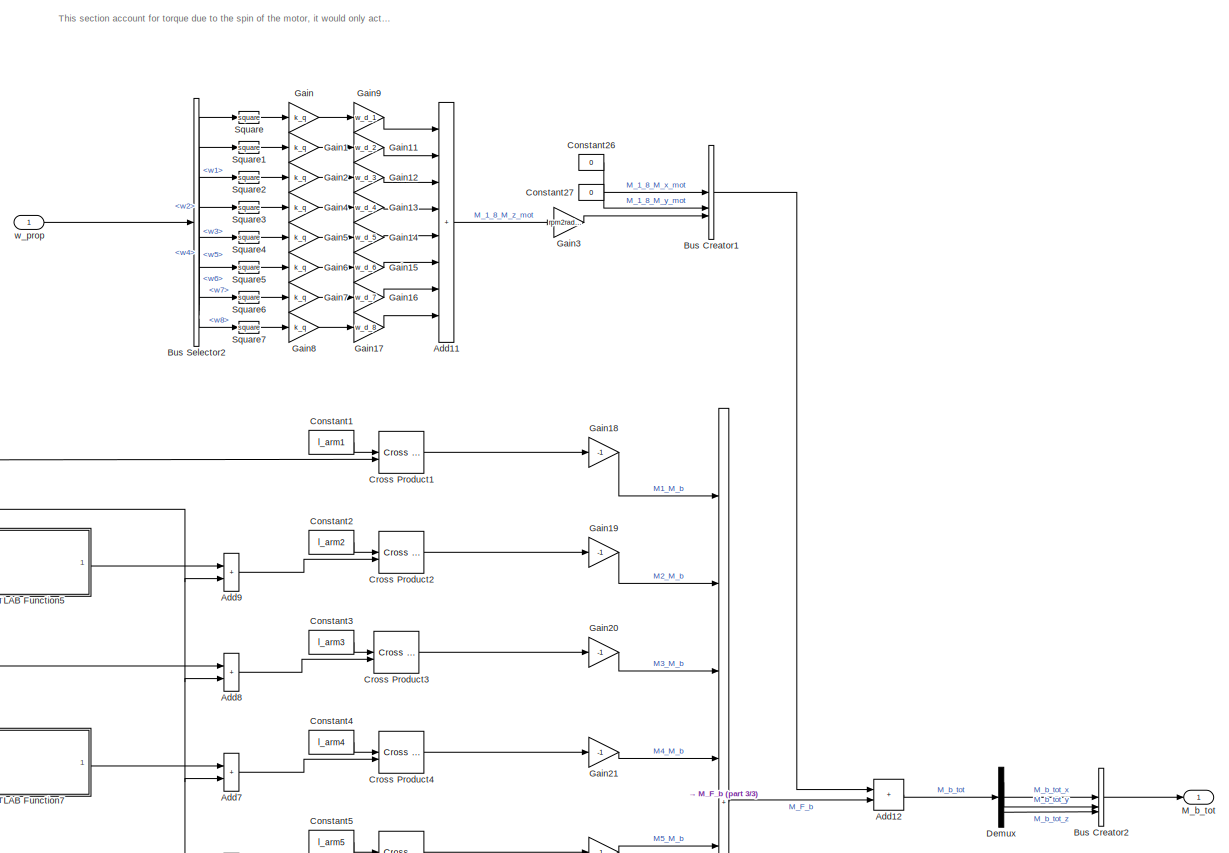
[diagram: Plant/Force & Moments/Thrust Forces and Moments - part 1/3, top right region]
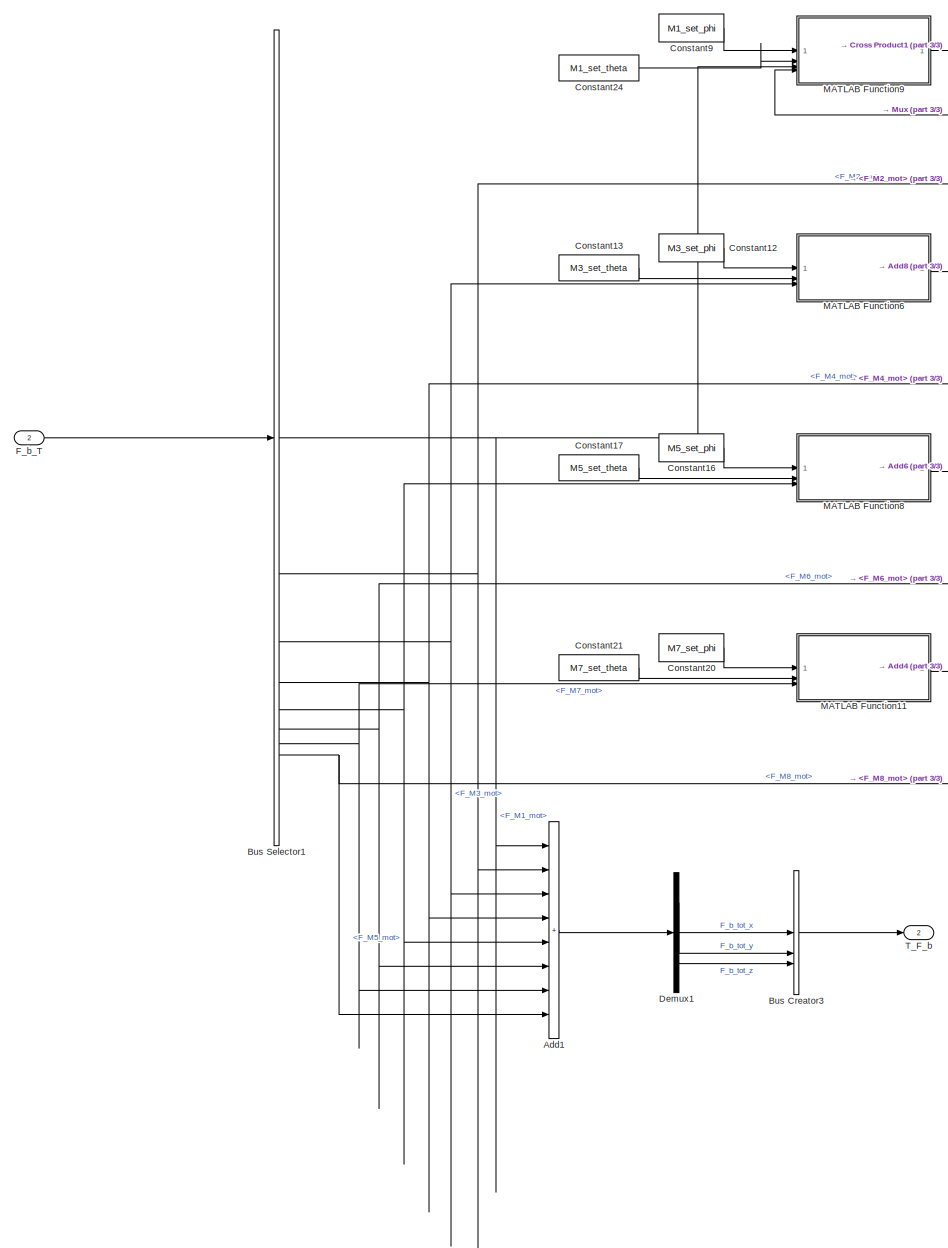
[diagram: Plant/Force & Moments/Thrust Forces and Moments - part 2/3, left side, full height]
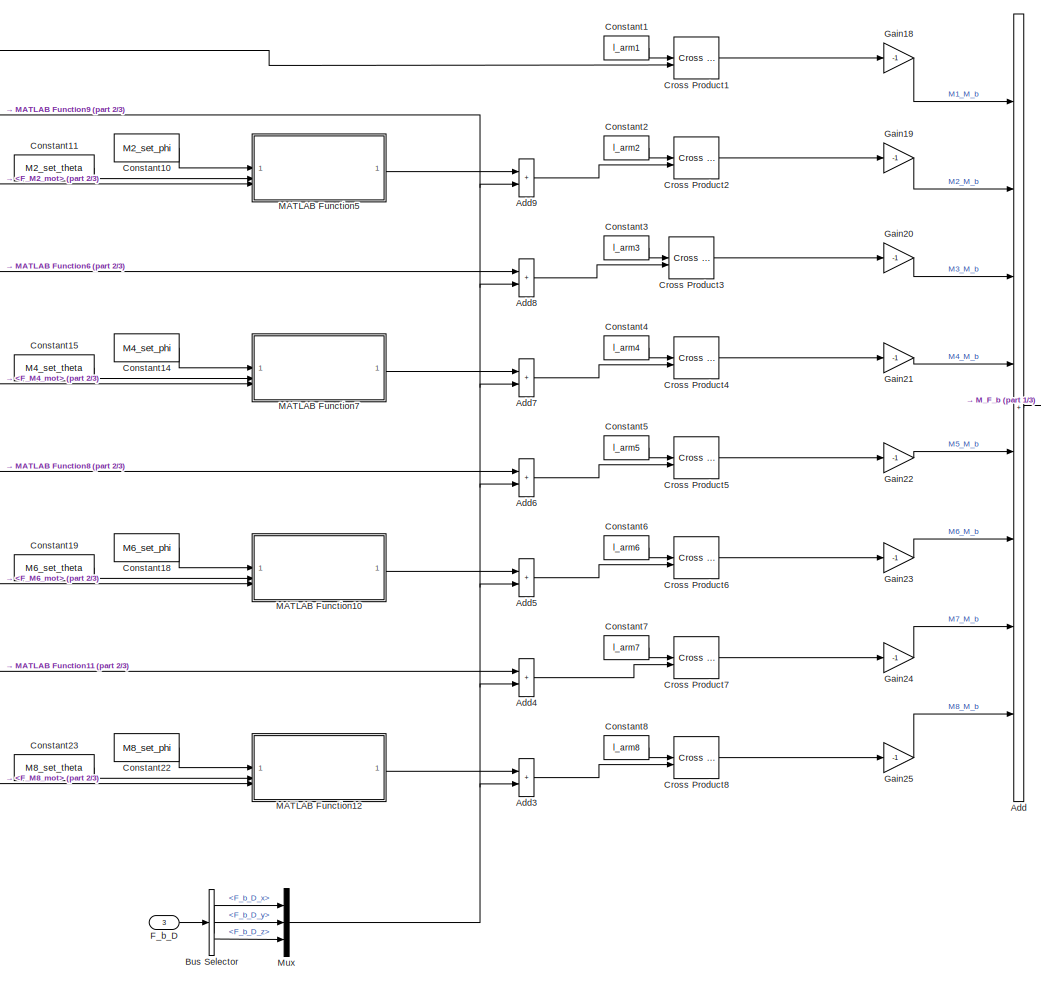
[diagram: Plant/Force & Moments/Thrust Forces and Moments - part 3/3, central region]
BLOCK [SubSystem] Plant/Force & Moments/Thrust Forces and Moments
BLOCK [Sum] Plant/Force & Moments/Thrust Forces and Moments/Add
  IconShape = rectangular
  Inputs = ++++++++
BLOCK [Sum] Plant/Force & Moments/Thrust Forces and Moments/Add1
  IconShape = rectangular
  Inputs = ++++++++
BLOCK [Sum] Plant/Force & Moments/Thrust Forces and Moments/Add11
  IconShape = rectangular
  Inputs = ++++++++
BLOCK [Sum] Plant/Force & Moments/Thrust Forces and Moments/Add12
  IconShape = rectangular
BLOCK [Sum] Plant/Force & Moments/Thrust Forces and Moments/Add3
  IconShape = rectangular
BLOCK [Sum] Plant/Force & Moments/Thrust Forces and Moments/Add4
  IconShape = rectangular
BLOCK [Sum] Plant/Force & Moments/Thrust Forces and Moments/Add5
  IconShape = rectangular
BLOCK [Sum] Plant/Force & Moments/Thrust Forces and Moments/Add6
  IconShape = rectangular
BLOCK [Sum] Plant/Force & Moments/Thrust Forces and Moments/Add7
  IconShape = rectangular
BLOCK [Sum] Plant/Force & Moments/Thrust Forces and Moments/Add8
  IconShape = rectangular
BLOCK [Sum] Plant/Force & Moments/Thrust Forces and Moments/Add9
  IconShape = rectangular
BLOCK [BusCreator] Plant/Force & Moments/Thrust Forces and Moments/Bus Creator1
  DisplayOption = bar
  InheritFromInputs = on
  Inputs = 3
BLOCK [BusCreator] Plant/Force & Moments/Thrust Forces and Moments/Bus Creator2
  DisplayOption = bar
  InheritFromInputs = on
  Inputs = 3
BLOCK [BusCreator] Plant/Force & Moments/Thrust Forces and Moments/Bus Creator3
  DisplayOption = bar
  InheritFromInputs = on
  Inputs = 3
BLOCK [BusSelector] Plant/Force & Moments/Thrust Forces and Moments/Bus Selector
  OutputSignals = F_b_D_x,F_b_D_y,F_b_D_z
BLOCK [BusSelector] Plant/Force & Moments/Thrust Forces and Moments/Bus Selector1
  OutputSignals = F_M1_mot,F_M2_mot,F_M3_mot,F_M4_mot,F_M5_mot,F_M6_mot,F_M7_mot,F_M8_mot
BLOCK [BusSelector] Plant/Force & Moments/Thrust Forces and Moments/Bus Selector2
  OutputSignals = w1,w2,w3,w4,w5,w6,w7,w8
BLOCK [Constant] Plant/Force & Moments/Thrust Forces and Moments/Constant1
  Value = l_arm1
BLOCK [Constant] Plant/Force & Moments/Thrust Forces and Moments/Constant10
  Value = M2_set_phi
BLOCK [Constant] Plant/Force & Moments/Thrust Forces and Moments/Constant11
  Value = M2_set_theta
BLOCK [Constant] Plant/Force & Moments/Thrust Forces and Moments/Constant12
  Value = M3_set_phi
BLOCK [Constant] Plant/Force & Moments/Thrust Forces and Moments/Constant13
  Value = M3_set_theta
BLOCK [Constant] Plant/Force & Moments/Thrust Forces and Moments/Constant14
  Value = M4_set_phi
BLOCK [Constant] Plant/Force & Moments/Thrust Forces and Moments/Constant15
  Value = M4_set_theta
BLOCK [Constant] Plant/Force & Moments/Thrust Forces and Moments/Constant16
  Value = M5_set_phi
BLOCK [Constant] Plant/Force & Moments/Thrust Forces and Moments/Constant17
  Value = M5_set_theta
BLOCK [Constant] Plant/Force & Moments/Thrust Forces and Moments/Constant18
  Value = M6_set_phi
BLOCK [Constant] Plant/Force & Moments/Thrust Forces and Moments/Constant19
  Value = M6_set_theta
  VectorParams1D = off
BLOCK [Constant] Plant/Force & Moments/Thrust Forces and Moments/Constant2
  Value = l_arm2
BLOCK [Constant] Plant/Force & Moments/Thrust Forces and Moments/Constant20
  Value = M7_set_phi
BLOCK [Constant] Plant/Force & Moments/Thrust Forces and Moments/Constant21
  Value = M7_set_theta
BLOCK [Constant] Plant/Force & Moments/Thrust Forces and Moments/Constant22
  Value = M8_set_phi
BLOCK [Constant] Plant/Force & Moments/Thrust Forces and Moments/Constant23
  Value = M8_set_theta
BLOCK [Constant] Plant/Force & Moments/Thrust Forces and Moments/Constant24
  Value = M1_set_theta
BLOCK [Constant] Plant/Force & Moments/Thrust Forces and Moments/Constant26
  Value = 0
BLOCK [Constant] Plant/Force & Moments/Thrust Forces and Moments/Constant27
  Value = 0
BLOCK [Constant] Plant/Force & Moments/Thrust Forces and Moments/Constant3
  Value = l_arm3
BLOCK [Constant] Plant/Force & Moments/Thrust Forces and Moments/Constant4
  Value = l_arm4
BLOCK [Constant] Plant/Force & Moments/Thrust Forces and Moments/Constant5
  Value = l_arm5
BLOCK [Constant] Plant/Force & Moments/Thrust Forces and Moments/Constant6
  Value = l_arm6
BLOCK [Constant] Plant/Force & Moments/Thrust Forces and Moments/Constant7
  Value = l_arm7
BLOCK [Constant] Plant/Force & Moments/Thrust Forces and Moments/Constant8
  Value = l_arm8
BLOCK [Constant] Plant/Force & Moments/Thrust Forces and Moments/Constant9
  Value = M1_set_phi
BLOCK [Reference] Plant/Force & Moments/Thrust Forces and Moments/Cross Product1  REF=matrix_library/Cross Product
  LibrarySourceBlock = simulink/Matrix\nOperations/Cross Product
  SourceBlock = matrix_library/Cross Product
  SourceType = CrossProduct
BLOCK [Reference] Plant/Force & Moments/Thrust Forces and Moments/Cross Product2  REF=matrix_library/Cross Product
  LibrarySourceBlock = simulink/Matrix\nOperations/Cross Product
  SourceBlock = matrix_library/Cross Product
  SourceType = CrossProduct
BLOCK [Reference] Plant/Force & Moments/Thrust Forces and Moments/Cross Product3  REF=matrix_library/Cross Product
  LibrarySourceBlock = simulink/Matrix\nOperations/Cross Product
  SourceBlock = matrix_library/Cross Product
  SourceType = CrossProduct
BLOCK [Reference] Plant/Force & Moments/Thrust Forces and Moments/Cross Product4  REF=matrix_library/Cross Product
  LibrarySourceBlock = simulink/Matrix\nOperations/Cross Product
  SourceBlock = matrix_library/Cross Product
  SourceType = CrossProduct
BLOCK [Reference] Plant/Force & Moments/Thrust Forces and Moments/Cross Product5  REF=matrix_library/Cross Product
  LibrarySourceBlock = simulink/Matrix\nOperations/Cross Product
  SourceBlock = matrix_library/Cross Product
  SourceType = CrossProduct
BLOCK [Reference] Plant/Force & Moments/Thrust Forces and Moments/Cross Product6  REF=matrix_library/Cross Product
  LibrarySourceBlock = simulink/Matrix\nOperations/Cross Product
  SourceBlock = matrix_library/Cross Product
  SourceType = CrossProduct
BLOCK [Reference] Plant/Force & Moments/Thrust Forces and Moments/Cross Product7  REF=matrix_library/Cross Product
  LibrarySourceBlock = simulink/Matrix\nOperations/Cross Product
  SourceBlock = matrix_library/Cross Product
  SourceType = CrossProduct
BLOCK [Reference] Plant/Force & Moments/Thrust Forces and Moments/Cross Product8  REF=matrix_library/Cross Product
  LibrarySourceBlock = simulink/Matrix\nOperations/Cross Product
  SourceBlock = matrix_library/Cross Product
  SourceType = CrossProduct
BLOCK [Demux] Plant/Force & Moments/Thrust Forces and Moments/Demux
  Outputs = 3
BLOCK [Demux] Plant/Force & Moments/Thrust Forces and Moments/Demux1
  Outputs = 3
BLOCK [Inport] Plant/Force & Moments/Thrust Forces and Moments/F_b_D
  Port = 3
BLOCK [Inport] Plant/Force & Moments/Thrust Forces and Moments/F_b_T
  Port = 2
BLOCK [Gain] Plant/Force & Moments/Thrust Forces and Moments/Gain
  Gain = k_q
BLOCK [Gain] Plant/Force & Moments/Thrust Forces and Moments/Gain1
  Gain = k_q
BLOCK [Gain] Plant/Force & Moments/Thrust Forces and Moments/Gain11
  Gain = w_d_2
BLOCK [Gain] Plant/Force & Moments/Thrust Forces and Moments/Gain12
  Gain = w_d_3
BLOCK [Gain] Plant/Force & Moments/Thrust Forces and Moments/Gain13
  Gain = w_d_4
BLOCK [Gain] Plant/Force & Moments/Thrust Forces and Moments/Gain14
  Gain = w_d_5
BLOCK [Gain] Plant/Force & Moments/Thrust Forces and Moments/Gain15
  Gain = w_d_6
BLOCK [Gain] Plant/Force & Moments/Thrust Forces and Moments/Gain16
  Gain = w_d_7
BLOCK [Gain] Plant/Force & Moments/Thrust Forces and Moments/Gain17
  Gain = w_d_8
BLOCK [Gain] Plant/Force & Moments/Thrust Forces and Moments/Gain18
  Gain = -1
BLOCK [Gain] Plant/Force & Moments/Thrust Forces and Moments/Gain19
  Gain = -1
BLOCK [Gain] Plant/Force & Moments/Thrust Forces and Moments/Gain2
  Gain = k_q
BLOCK [Gain] Plant/Force & Moments/Thrust Forces and Moments/Gain20
  Gain = -1
BLOCK [Gain] Plant/Force & Moments/Thrust Forces and Moments/Gain21
  Gain = -1
BLOCK [Gain] Plant/Force & Moments/Thrust Forces and Moments/Gain22
  Gain = -1
BLOCK [Gain] Plant/Force & Moments/Thrust Forces and Moments/Gain23
  Gain = -1
BLOCK [Gain] Plant/Force & Moments/Thrust Forces and Moments/Gain24
  Gain = -1
BLOCK [Gain] Plant/Force & Moments/Thrust Forces and Moments/Gain25
  Gain = -1
BLOCK [Gain] Plant/Force & Moments/Thrust Forces and Moments/Gain3
  Gain = rpm2rad_s
BLOCK [Gain] Plant/Force & Moments/Thrust Forces and Moments/Gain4
  Gain = k_q
BLOCK [Gain] Plant/Force & Moments/Thrust Forces and Moments/Gain5
  Gain = k_q
BLOCK [Gain] Plant/Force & Moments/Thrust Forces and Moments/Gain6
  Gain = k_q
BLOCK [Gain] Plant/Force & Moments/Thrust Forces and Moments/Gain7
  Gain = k_q
BLOCK [Gain] Plant/Force & Moments/Thrust Forces and Moments/Gain8
  Gain = k_q
BLOCK [Gain] Plant/Force & Moments/Thrust Forces and Moments/Gain9
  Gain = w_d_1
BLOCK [SubSystem] Plant/Force & Moments/Thrust Forces and Moments/MATLAB Function10
  ErrorFcn = Stateflow.Translate.translate
  PermitHierarchicalResolution = ExplicitOnly
  SFBlockType = MATLAB Function
  TreatAsAtomicUnit = on
BLOCK [Demux] Plant/Force & Moments/Thrust Forces and Moments/MATLAB Function10/ Demux 
  Outputs = 1
BLOCK [S-Function] Plant/Force & Moments/Thrust Forces and Moments/MATLAB Function10/ SFunction 
  EnableBusSupport = off
  FunctionName = sf_sfun
  PortCounts = [3 2]
  SFcnIsStateOwnerBlock = off
  SFunctionDeploymentMode = off
  Tag = Stateflow S-Function 11
BLOCK [Terminator] Plant/Force & Moments/Thrust Forces and Moments/MATLAB Function10/ Terminator 
BLOCK [Outport] Plant/Force & Moments/Thrust Forces and Moments/MATLAB Function10/T_b_out
  VectorParamsAs1DForOutWhenUnconnected = off
BLOCK [Inport] Plant/Force & Moments/Thrust Forces and Moments/MATLAB Function10/T_mot_in
  Port = 3
BLOCK [Inport] Plant/Force & Moments/Thrust Forces and Moments/MATLAB Function10/phi
BLOCK [Inport] Plant/Force & Moments/Thrust Forces and Moments/MATLAB Function10/theta
  Port = 2
BLOCK [SubSystem] Plant/Force & Moments/Thrust Forces and Moments/MATLAB Function11
  ErrorFcn = Stateflow.Translate.translate
  PermitHierarchicalResolution = ExplicitOnly
  SFBlockType = MATLAB Function
  TreatAsAtomicUnit = on
BLOCK [Demux] Plant/Force & Moments/Thrust Forces and Moments/MATLAB Function11/ Demux 
  Outputs = 1
BLOCK [S-Function] Plant/Force & Moments/Thrust Forces and Moments/MATLAB Function11/ SFunction 
  EnableBusSupport = off
  FunctionName = sf_sfun
  PortCounts = [3 2]
  SFcnIsStateOwnerBlock = off
  SFunctionDeploymentMode = off
  Tag = Stateflow S-Function 12
BLOCK [Terminator] Plant/Force & Moments/Thrust Forces and Moments/MATLAB Function11/ Terminator 
BLOCK [Outport] Plant/Force & Moments/Thrust Forces and Moments/MATLAB Function11/T_b_out
  VectorParamsAs1DForOutWhenUnconnected = off
BLOCK [Inport] Plant/Force & Moments/Thrust Forces and Moments/MATLAB Function11/T_mot_in
  Port = 3
BLOCK [Inport] Plant/Force & Moments/Thrust Forces and Moments/MATLAB Function11/phi
BLOCK [Inport] Plant/Force & Moments/Thrust Forces and Moments/MATLAB Function11/theta
  Port = 2
BLOCK [SubSystem] Plant/Force & Moments/Thrust Forces and Moments/MATLAB Function12
  ErrorFcn = Stateflow.Translate.translate
  PermitHierarchicalResolution = ExplicitOnly
  SFBlockType = MATLAB Function
  TreatAsAtomicUnit = on
BLOCK [Demux] Plant/Force & Moments/Thrust Forces and Moments/MATLAB Function12/ Demux 
  Outputs = 1
BLOCK [S-Function] Plant/Force & Moments/Thrust Forces and Moments/MATLAB Function12/ SFunction 
  EnableBusSupport = off
  FunctionName = sf_sfun
  PortCounts = [3 2]
  SFcnIsStateOwnerBlock = off
  SFunctionDeploymentMode = off
  Tag = Stateflow S-Function 13
BLOCK [Terminator] Plant/Force & Moments/Thrust Forces and Moments/MATLAB Function12/ Terminator 
BLOCK [Outport] Plant/Force & Moments/Thrust Forces and Moments/MATLAB Function12/T_b_out
  VectorParamsAs1DForOutWhenUnconnected = off
BLOCK [Inport] Plant/Force & Moments/Thrust Forces and Moments/MATLAB Function12/T_mot_in
  Port = 3
BLOCK [Inport] Plant/Force & Moments/Thrust Forces and Moments/MATLAB Function12/phi
BLOCK [Inport] Plant/Force & Moments/Thrust Forces and Moments/MATLAB Function12/theta
  Port = 2
BLOCK [SubSystem] Plant/Force & Moments/Thrust Forces and Moments/MATLAB Function5
  ErrorFcn = Stateflow.Translate.translate
  PermitHierarchicalResolution = ExplicitOnly
  SFBlockType = MATLAB Function
  TreatAsAtomicUnit = on
BLOCK [Demux] Plant/Force & Moments/Thrust Forces and Moments/MATLAB Function5/ Demux 
  Outputs = 1
BLOCK [S-Function] Plant/Force & Moments/Thrust Forces and Moments/MATLAB Function5/ SFunction 
  EnableBusSupport = off
  FunctionName = sf_sfun
  PortCounts = [3 2]
  SFcnIsStateOwnerBlock = off
  SFunctionDeploymentMode = off
  Tag = Stateflow S-Function 7
BLOCK [Terminator] Plant/Force & Moments/Thrust Forces and Moments/MATLAB Function5/ Terminator 
BLOCK [Outport] Plant/Force & Moments/Thrust Forces and Moments/MATLAB Function5/T_b_out
  VectorParamsAs1DForOutWhenUnconnected = off
BLOCK [Inport] Plant/Force & Moments/Thrust Forces and Moments/MATLAB Function5/T_mot_in
  Port = 3
BLOCK [Inport] Plant/Force & Moments/Thrust Forces and Moments/MATLAB Function5/phi
BLOCK [Inport] Plant/Force & Moments/Thrust Forces and Moments/MATLAB Function5/theta
  Port = 2
BLOCK [SubSystem] Plant/Force & Moments/Thrust Forces and Moments/MATLAB Function6
  ErrorFcn = Stateflow.Translate.translate
  PermitHierarchicalResolution = ExplicitOnly
  SFBlockType = MATLAB Function
  TreatAsAtomicUnit = on
BLOCK [Demux] Plant/Force & Moments/Thrust Forces and Moments/MATLAB Function6/ Demux 
  Outputs = 1
BLOCK [S-Function] Plant/Force & Moments/Thrust Forces and Moments/MATLAB Function6/ SFunction 
  EnableBusSupport = off
  FunctionName = sf_sfun
  PortCounts = [3 2]
  SFcnIsStateOwnerBlock = off
  SFunctionDeploymentMode = off
  Tag = Stateflow S-Function 8
BLOCK [Terminator] Plant/Force & Moments/Thrust Forces and Moments/MATLAB Function6/ Terminator 
BLOCK [Outport] Plant/Force & Moments/Thrust Forces and Moments/MATLAB Function6/T_b_out
  VectorParamsAs1DForOutWhenUnconnected = off
BLOCK [Inport] Plant/Force & Moments/Thrust Forces and Moments/MATLAB Function6/T_mot_in
  Port = 3
BLOCK [Inport] Plant/Force & Moments/Thrust Forces and Moments/MATLAB Function6/phi
BLOCK [Inport] Plant/Force & Moments/Thrust Forces and Moments/MATLAB Function6/theta
  Port = 2
BLOCK [SubSystem] Plant/Force & Moments/Thrust Forces and Moments/MATLAB Function7
  ErrorFcn = Stateflow.Translate.translate
  PermitHierarchicalResolution = ExplicitOnly
  SFBlockType = MATLAB Function
  TreatAsAtomicUnit = on
BLOCK [Demux] Plant/Force & Moments/Thrust Forces and Moments/MATLAB Function7/ Demux 
  Outputs = 1
BLOCK [S-Function] Plant/Force & Moments/Thrust Forces and Moments/MATLAB Function7/ SFunction 
  EnableBusSupport = off
  FunctionName = sf_sfun
  PortCounts = [3 2]
  SFcnIsStateOwnerBlock = off
  SFunctionDeploymentMode = off
  Tag = Stateflow S-Function 9
BLOCK [Terminator] Plant/Force & Moments/Thrust Forces and Moments/MATLAB Function7/ Terminator 
BLOCK [Outport] Plant/Force & Moments/Thrust Forces and Moments/MATLAB Function7/T_b_out
  VectorParamsAs1DForOutWhenUnconnected = off
BLOCK [Inport] Plant/Force & Moments/Thrust Forces and Moments/MATLAB Function7/T_mot_in
  Port = 3
BLOCK [Inport] Plant/Force & Moments/Thrust Forces and Moments/MATLAB Function7/phi
BLOCK [Inport] Plant/Force & Moments/Thrust Forces and Moments/MATLAB Function7/theta
  Port = 2
BLOCK [SubSystem] Plant/Force & Moments/Thrust Forces and Moments/MATLAB Function8
  ErrorFcn = Stateflow.Translate.translate
  PermitHierarchicalResolution = ExplicitOnly
  SFBlockType = MATLAB Function
  TreatAsAtomicUnit = on
BLOCK [Demux] Plant/Force & Moments/Thrust Forces and Moments/MATLAB Function8/ Demux 
  Outputs = 1
BLOCK [S-Function] Plant/Force & Moments/Thrust Forces and Moments/MATLAB Function8/ SFunction 
  EnableBusSupport = off
  FunctionName = sf_sfun
  PortCounts = [3 2]
  SFcnIsStateOwnerBlock = off
  SFunctionDeploymentMode = off
  Tag = Stateflow S-Function 10
BLOCK [Terminator] Plant/Force & Moments/Thrust Forces and Moments/MATLAB Function8/ Terminator 
BLOCK [Outport] Plant/Force & Moments/Thrust Forces and Moments/MATLAB Function8/T_b_out
  VectorParamsAs1DForOutWhenUnconnected = off
BLOCK [Inport] Plant/Force & Moments/Thrust Forces and Moments/MATLAB Function8/T_mot_in
  Port = 3
BLOCK [Inport] Plant/Force & Moments/Thrust Forces and Moments/MATLAB Function8/phi
BLOCK [Inport] Plant/Force & Moments/Thrust Forces and Moments/MATLAB Function8/theta
  Port = 2
BLOCK [SubSystem] Plant/Force & Moments/Thrust Forces and Moments/MATLAB Function9
  ErrorFcn = Stateflow.Translate.translate
  PermitHierarchicalResolution = ExplicitOnly
  SFBlockType = MATLAB Function
  TreatAsAtomicUnit = on
BLOCK [Demux] Plant/Force & Moments/Thrust Forces and Moments/MATLAB Function9/ Demux 
  Outputs = 1
BLOCK [S-Function] Plant/Force & Moments/Thrust Forces and Moments/MATLAB Function9/ SFunction 
  EnableBusSupport = off
  FunctionName = sf_sfun
  PortCounts = [4 2]
  SFcnIsStateOwnerBlock = off
  SFunctionDeploymentMode = off
  Tag = Stateflow S-Function 6
BLOCK [Terminator] Plant/Force & Moments/Thrust Forces and Moments/MATLAB Function9/ Terminator 
BLOCK [Inport] Plant/Force & Moments/Thrust Forces and Moments/MATLAB Function9/F_b_D
  Port = 4
BLOCK [Outport] Plant/Force & Moments/Thrust Forces and Moments/MATLAB Function9/T_b_out
  VectorParamsAs1DForOutWhenUnconnected = off
BLOCK [Inport] Plant/Force & Moments/Thrust Forces and Moments/MATLAB Function9/T_mot_in
  Port = 3
BLOCK [Inport] Plant/Force & Moments/Thrust Forces and Moments/MATLAB Function9/phi
BLOCK [Inport] Plant/Force & Moments/Thrust Forces and Moments/MATLAB Function9/theta
  Port = 2
BLOCK [Outport] Plant/Force & Moments/Thrust Forces and Moments/M_b_tot
BLOCK [Mux] Plant/Force & Moments/Thrust Forces and Moments/Mux
  DisplayOption = bar
  Inputs = 3
BLOCK [Math] Plant/Force & Moments/Thrust Forces and Moments/Square
  Operator = square
BLOCK [Math] Plant/Force & Moments/Thrust Forces and Moments/Square1
  Operator = square
BLOCK [Math] Plant/Force & Moments/Thrust Forces and Moments/Square2
  Operator = square
BLOCK [Math] Plant/Force & Moments/Thrust Forces and Moments/Square3
  Operator = square
BLOCK [Math] Plant/Force & Moments/Thrust Forces and Moments/Square4
  Operator = square
BLOCK [Math] Plant/Force & Moments/Thrust Forces and Moments/Square5
  Operator = square
BLOCK [Math] Plant/Force & Moments/Thrust Forces and Moments/Square6
  Operator = square
BLOCK [Math] Plant/Force & Moments/Thrust Forces and Moments/Square7
  Operator = square
BLOCK [Outport] Plant/Force & Moments/Thrust Forces and Moments/T_F_b
  Port = 2
BLOCK [Inport] Plant/Force & Moments/Thrust Forces and Moments/w_prop
BLOCK [Inport] Plant/Force & Moments/V_i (uvw)
  Port = 2
BLOCK [Inport] Plant/Force & Moments/w (PhiThetaPsi)
BLOCK [Inport] Plant/Force & Moments/w_prop
  Port = 4
BLOCK [Outport] Plant/NED_Pos
  Port = 2
BLOCK [Outport] Plant/NED_Vel
  Port = 3
BLOCK [Outport] Plant/Phi_Theta_Psi
  Port = 6
BLOCK [Outport] Plant/Phi_Theta_Psi_dot
  Port = 5
BLOCK [Outport] Plant/X_Pos_b
BLOCK [Inport] Plant/w_prop
  Port = 2
ANNOTATION Control : PID Tuning
ANNOTATION Control : SIL specific
ANNOTATION Control /Inputs1/RC_input: SIL specific
ANNOTATION Control /Inputs1/RC_input: uint16 to single
ANNOTATION Control /Inputs1/Sensors_meas: Units: vehicle attitude - radians Angular rates - rad/s forces -
ANNOTATION Plant/Force & Moments/Thrust Forces and Moments: This section account for torque due to the spin of the motor, it would only act in the axis of the respective motor spin direction.
LINE Control /Acc_b:1 -> Control /Inputs1:1
LINE Control /Bus Creator:1 -> Control /Motor_Out:1
LINE Control /Constant3:1 -> Control /PX4 PWM Output1:2
LINE Control /Constant4:1 -> Control /PX4 PWM Output1:1
LINE Control /Estimation1/Bus Creator:1 -> Control /Estimation1/est_att:1
LINE Control /Estimation1/Bus Selector1:1 -> Control /Estimation1/MATLAB Function:1
LINE Control /Estimation1/Bus Selector1:2 -> Control /Estimation1/Bus Creator:1
LINE Control /Estimation1/Bus Selector1:3 -> Control /Estimation1/Bus Creator:2
LINE Control /Estimation1/Bus Selector:1 -> Control /Estimation1/Subsystem3:1
LINE Control /Estimation1/Bus Selector:2 -> Control /Estimation1/Subsystem3:2
LINE Control /Estimation1/Bus Selector:3 -> Control /Estimation1/Subsystem3:3
LINE Control /Estimation1/MATLAB Function:1 -> Control /Estimation1/Bus Creator:3
LINE Control /Estimation1/Subsystem3/Bus Creator:1 -> Control /Estimation1/Subsystem3/est_angular_rate:1
LINE Control /Estimation1/Subsystem3/In1:1 -> Control /Estimation1/Subsystem3/Subsystem:1
LINE Control /Estimation1/Subsystem3/In2:1 -> Control /Estimation1/Subsystem3/Subsystem1:1
LINE Control /Estimation1/Subsystem3/In3:1 -> Control /Estimation1/Subsystem3/Subsystem2:1
LINE Control /Estimation1/Subsystem3/Subsystem/DI/Constant2:1 -> Control /Estimation1/Subsystem3/Subsystem/DI/Divide:2
LINE Control /Estimation1/Subsystem3/Subsystem/DI/Divide:1 -> Control /Estimation1/Subsystem3/Subsystem/DI/Switch:1
LINE Control /Estimation1/Subsystem3/Subsystem/DI/Gain:1 -> Control /Estimation1/Subsystem3/Subsystem/DI/Out1:1
LINE Control /Estimation1/Subsystem3/Subsystem/DI/In1:1 -> Control /Estimation1/Subsystem3/Subsystem/DI/Sum1:1
LINE Control /Estimation1/Subsystem3/Subsystem/DI/In2:1 -> Control /Estimation1/Subsystem3/Subsystem/DI/Divide:1
LINE Control /Estimation1/Subsystem3/Subsystem/DI/Step:1 -> Control /Estimation1/Subsystem3/Subsystem/DI/Switch:2
LINE Control /Estimation1/Subsystem3/Subsystem/DI/Sum1:1 -> Control /Estimation1/Subsystem3/Subsystem/DI/Unit Delay:1
LINE Control /Estimation1/Subsystem3/Subsystem/DI/Sum:1 -> Control /Estimation1/Subsystem3/Subsystem/DI/Gain:1
NET Control /Estimation1/Subsystem3/Subsystem/DI/Switch:1 -> Control /Estimation1/Subsystem3/Subsystem/DI/Sum1:2, Control /Estimation1/Subsystem3/Subsystem/DI/Sum:1, Control /Estimation1/Subsystem3/Subsystem/DI/Sum:2
LINE Control /Estimation1/Subsystem3/Subsystem/DI/Unit Delay:1 -> Control /Estimation1/Subsystem3/Subsystem/DI/Switch:3
NET Control /Estimation1/Subsystem3/Subsystem/DI:1 -> Control /Estimation1/Subsystem3/Subsystem/Saturation1:1, Control /Estimation1/Subsystem3/Subsystem/Sum:2
LINE Control /Estimation1/Subsystem3/Subsystem/Gain:1 -> Control /Estimation1/Subsystem3/Subsystem/DI:1
NET Control /Estimation1/Subsystem3/Subsystem/In1:1 -> Control /Estimation1/Subsystem3/Subsystem/DI:2, Control /Estimation1/Subsystem3/Subsystem/Sum:1
LINE Control /Estimation1/Subsystem3/Subsystem/Saturation1:1 -> Control /Estimation1/Subsystem3/Subsystem/Out1:1
LINE Control /Estimation1/Subsystem3/Subsystem/Sum:1 -> Control /Estimation1/Subsystem3/Subsystem/Gain:1
LINE Control /Estimation1/Subsystem3/Subsystem1/DI/Constant2:1 -> Control /Estimation1/Subsystem3/Subsystem1/DI/Divide:2
LINE Control /Estimation1/Subsystem3/Subsystem1/DI/Divide:1 -> Control /Estimation1/Subsystem3/Subsystem1/DI/Switch:1
LINE Control /Estimation1/Subsystem3/Subsystem1/DI/Gain:1 -> Control /Estimation1/Subsystem3/Subsystem1/DI/Out1:1
LINE Control /Estimation1/Subsystem3/Subsystem1/DI/In1:1 -> Control /Estimation1/Subsystem3/Subsystem1/DI/Sum1:1
LINE Control /Estimation1/Subsystem3/Subsystem1/DI/In2:1 -> Control /Estimation1/Subsystem3/Subsystem1/DI/Divide:1
LINE Control /Estimation1/Subsystem3/Subsystem1/DI/Step:1 -> Control /Estimation1/Subsystem3/Subsystem1/DI/Switch:2
LINE Control /Estimation1/Subsystem3/Subsystem1/DI/Sum1:1 -> Control /Estimation1/Subsystem3/Subsystem1/DI/Unit Delay:1
LINE Control /Estimation1/Subsystem3/Subsystem1/DI/Sum:1 -> Control /Estimation1/Subsystem3/Subsystem1/DI/Gain:1
NET Control /Estimation1/Subsystem3/Subsystem1/DI/Switch:1 -> Control /Estimation1/Subsystem3/Subsystem1/DI/Sum1:2, Control /Estimation1/Subsystem3/Subsystem1/DI/Sum:1, Control /Estimation1/Subsystem3/Subsystem1/DI/Sum:2
LINE Control /Estimation1/Subsystem3/Subsystem1/DI/Unit Delay:1 -> Control /Estimation1/Subsystem3/Subsystem1/DI/Switch:3
NET Control /Estimation1/Subsystem3/Subsystem1/DI:1 -> Control /Estimation1/Subsystem3/Subsystem1/Saturation1:1, Control /Estimation1/Subsystem3/Subsystem1/Sum:2
LINE Control /Estimation1/Subsystem3/Subsystem1/Gain:1 -> Control /Estimation1/Subsystem3/Subsystem1/DI:1
NET Control /Estimation1/Subsystem3/Subsystem1/In1:1 -> Control /Estimation1/Subsystem3/Subsystem1/DI:2, Control /Estimation1/Subsystem3/Subsystem1/Sum:1
LINE Control /Estimation1/Subsystem3/Subsystem1/Saturation1:1 -> Control /Estimation1/Subsystem3/Subsystem1/Out1:1
LINE Control /Estimation1/Subsystem3/Subsystem1/Sum:1 -> Control /Estimation1/Subsystem3/Subsystem1/Gain:1
LINE Control /Estimation1/Subsystem3/Subsystem1:1 -> Control /Estimation1/Subsystem3/Bus Creator:2
LINE Control /Estimation1/Subsystem3/Subsystem2/DI/Constant2:1 -> Control /Estimation1/Subsystem3/Subsystem2/DI/Divide:2
LINE Control /Estimation1/Subsystem3/Subsystem2/DI/Divide:1 -> Control /Estimation1/Subsystem3/Subsystem2/DI/Switch:1
LINE Control /Estimation1/Subsystem3/Subsystem2/DI/Gain:1 -> Control /Estimation1/Subsystem3/Subsystem2/DI/Out1:1
LINE Control /Estimation1/Subsystem3/Subsystem2/DI/In1:1 -> Control /Estimation1/Subsystem3/Subsystem2/DI/Sum1:1
LINE Control /Estimation1/Subsystem3/Subsystem2/DI/In2:1 -> Control /Estimation1/Subsystem3/Subsystem2/DI/Divide:1
LINE Control /Estimation1/Subsystem3/Subsystem2/DI/Step:1 -> Control /Estimation1/Subsystem3/Subsystem2/DI/Switch:2
LINE Control /Estimation1/Subsystem3/Subsystem2/DI/Sum1:1 -> Control /Estimation1/Subsystem3/Subsystem2/DI/Unit Delay:1
LINE Control /Estimation1/Subsystem3/Subsystem2/DI/Sum:1 -> Control /Estimation1/Subsystem3/Subsystem2/DI/Gain:1
NET Control /Estimation1/Subsystem3/Subsystem2/DI/Switch:1 -> Control /Estimation1/Subsystem3/Subsystem2/DI/Sum1:2, Control /Estimation1/Subsystem3/Subsystem2/DI/Sum:1, Control /Estimation1/Subsystem3/Subsystem2/DI/Sum:2
LINE Control /Estimation1/Subsystem3/Subsystem2/DI/Unit Delay:1 -> Control /Estimation1/Subsystem3/Subsystem2/DI/Switch:3
NET Control /Estimation1/Subsystem3/Subsystem2/DI:1 -> Control /Estimation1/Subsystem3/Subsystem2/Saturation1:1, Control /Estimation1/Subsystem3/Subsystem2/Sum:2
LINE Control /Estimation1/Subsystem3/Subsystem2/Gain:1 -> Control /Estimation1/Subsystem3/Subsystem2/DI:1
NET Control /Estimation1/Subsystem3/Subsystem2/In1:1 -> Control /Estimation1/Subsystem3/Subsystem2/DI:2, Control /Estimation1/Subsystem3/Subsystem2/Sum:1
LINE Control /Estimation1/Subsystem3/Subsystem2/Saturation1:1 -> Control /Estimation1/Subsystem3/Subsystem2/Out1:1
LINE Control /Estimation1/Subsystem3/Subsystem2/Sum:1 -> Control /Estimation1/Subsystem3/Subsystem2/Gain:1
LINE Control /Estimation1/Subsystem3/Subsystem2:1 -> Control /Estimation1/Subsystem3/Bus Creator:3
LINE Control /Estimation1/Subsystem3/Subsystem:1 -> Control /Estimation1/Subsystem3/Bus Creator:1
LINE Control /Estimation1/Subsystem3:1 -> Control /Estimation1/est_angular_rate:1
NET Control /Estimation1/sensor_out:1 -> Control /Estimation1/Bus Selector1:1, Control /Estimation1/Bus Selector:1
LINE Control /Estimation1:1 -> Control /PI_controller 1:4
LINE Control /Estimation1:2 -> Control /PI_controller 1:5
LINE Control /Gain2:1 -> Control /motor mxer1:4
LINE Control /Inputs1/Acc_b:1 -> Control /Inputs1/Cast To Single5:1
LINE Control /Inputs1/Bus Creator:1 -> Control /Inputs1/sensor_out:1
LINE Control /Inputs1/Cast To Single1:1 -> Control /Inputs1/Roll_rad//s:1
LINE Control /Inputs1/Cast To Single2:1 -> Control /Inputs1/pitch_rad//s:1
LINE Control /Inputs1/Cast To Single3:1 -> Control /Inputs1/Throttle_in:1
LINE Control /Inputs1/Cast To Single4:1 -> Control /Inputs1/Yaw_rad//s:1
LINE Control /Inputs1/Cast To Single5:1 -> Control /Inputs1/Demux:1
LINE Control /Inputs1/Cast To Single6:1 -> Control /Inputs1/Demux1:1
LINE Control /Inputs1/Cast To Single7:1 -> Control /Inputs1/Demux2:1
LINE Control /Inputs1/Demux1:1 -> Control /Inputs1/Bus Creator:4
LINE Control /Inputs1/Demux1:2 -> Control /Inputs1/Bus Creator:5
LINE Control /Inputs1/Demux1:3 -> Control /Inputs1/Bus Creator:6
LINE Control /Inputs1/Demux2:1 -> Control /Inputs1/Bus Creator:7
LINE Control /Inputs1/Demux2:2 -> Control /Inputs1/Bus Creator:8
LINE Control /Inputs1/Demux2:3 -> Control /Inputs1/Bus Creator:9
LINE Control /Inputs1/Demux:1 -> Control /Inputs1/Bus Creator:1
LINE Control /Inputs1/Demux:2 -> Control /Inputs1/Bus Creator:2
LINE Control /Inputs1/Demux:3 -> Control /Inputs1/Bus Creator:3
LINE Control /Inputs1/Phi_Theta_Psi:1 -> Control /Inputs1/Cast To Single7:1
LINE Control /Inputs1/Phi_Theta_Psi_dot:1 -> Control /Inputs1/Cast To Single6:1
LINE Control /Inputs1/RC_input/1-D Lookup Table1:1 -> Control /Inputs1/RC_input/Saturation1:1
LINE Control /Inputs1/RC_input/1-D Lookup Table2:1 -> Control /Inputs1/RC_input/Saturation2:1
LINE Control /Inputs1/RC_input/1-D Lookup Table3:1 -> Control /Inputs1/RC_input/Saturation3:1
NET Control /Inputs1/RC_input/1-D Lookup Table4:1 -> Control /Inputs1/RC_input/Cast To Single:1, Control /Inputs1/RC_input/Display:1
NET Control /Inputs1/RC_input/1-D Lookup Table5:1 -> Control /Inputs1/RC_input/Cast To Single1:1, Control /Inputs1/RC_input/Display1:1
NET Control /Inputs1/RC_input/1-D Lookup Table6:1 -> Control /Inputs1/RC_input/Cast To Single2:1, Control /Inputs1/RC_input/Display2:1
NET Control /Inputs1/RC_input/1-D Lookup Table7:1 -> Control /Inputs1/RC_input/Cast To Single3:1, Control /Inputs1/RC_input/Display3:1
LINE Control /Inputs1/RC_input/1-D Lookup Table:1 -> Control /Inputs1/RC_input/Saturation:1
LINE Control /Inputs1/RC_input/Bus Selector:1 -> Control /Inputs1/RC_input/1-D Lookup Table4:1
LINE Control /Inputs1/RC_input/Bus Selector:2 -> Control /Inputs1/RC_input/1-D Lookup Table5:1
LINE Control /Inputs1/RC_input/Bus Selector:3 -> Control /Inputs1/RC_input/1-D Lookup Table6:1
LINE Control /Inputs1/RC_input/Bus Selector:4 -> Control /Inputs1/RC_input/1-D Lookup Table7:1
LINE Control /Inputs1/RC_input/Cast To Single1:1 -> Control /Inputs1/RC_input/1-D Lookup Table1:1
LINE Control /Inputs1/RC_input/Cast To Single2:1 -> Control /Inputs1/RC_input/1-D Lookup Table2:1
LINE Control /Inputs1/RC_input/Cast To Single3:1 -> Control /Inputs1/RC_input/1-D Lookup Table3:1
LINE Control /Inputs1/RC_input/Cast To Single4:1 -> Control /Inputs1/RC_input/Compare To Constant:1
LINE Control /Inputs1/RC_input/Cast To Single:1 -> Control /Inputs1/RC_input/1-D Lookup Table:1
LINE Control /Inputs1/RC_input/Compare To Constant:1 -> Control /Inputs1/RC_input/Arm:1
LINE Control /Inputs1/RC_input/Constant:1 -> Control /Inputs1/RC_input/Cast To Single4:1
LINE Control /Inputs1/RC_input/Gain1:1 -> Control /Inputs1/RC_input/Pitch_in:1
LINE Control /Inputs1/RC_input/Gain2:1 -> Control /Inputs1/RC_input/Throttle_in:1
LINE Control /Inputs1/RC_input/Gain3:1 -> Control /Inputs1/RC_input/Yaw_in:1
LINE Control /Inputs1/RC_input/Gain:1 -> Control /Inputs1/RC_input/Roll_in:1
LINE Control /Inputs1/RC_input/PX4 uORB Read:1 -> Control /Inputs1/RC_input/Terminator1:1
LINE Control /Inputs1/RC_input/PX4 uORB Read:2 -> Control /Inputs1/RC_input/Bus Selector:1
LINE Control /Inputs1/RC_input/Step1:1 -> Control /Inputs1/RC_input/Gain1:1
LINE Control /Inputs1/RC_input/Step2:1 -> Control /Inputs1/RC_input/Gain2:1
LINE Control /Inputs1/RC_input/Step3:1 -> Control /Inputs1/RC_input/Gain3:1
LINE Control /Inputs1/RC_input/Step:1 -> Control /Inputs1/RC_input/Gain:1
LINE Control /Inputs1/RC_input:1 -> Control /Inputs1/Arm:1
LINE Control /Inputs1/RC_input:2 -> Control /Inputs1/Stick_mapping:1
LINE Control /Inputs1/RC_input:3 -> Control /Inputs1/Stick_mapping:2
LINE Control /Inputs1/RC_input:4 -> Control /Inputs1/Stick_mapping:3
LINE Control /Inputs1/RC_input:5 -> Control /Inputs1/Stick_mapping:4
LINE Control /Inputs1/Sensors_meas/Accelerometer - forces :1 -> Control /Inputs1/Sensors_meas/Terminator:1
LINE Control /Inputs1/Sensors_meas/Accelerometer - forces :2 -> Control /Inputs1/Sensors_meas/Cast To Single:1
LINE Control /Inputs1/Sensors_meas/Accelerometer - forces :3 -> Control /Inputs1/Sensors_meas/Cast To Single1:1
LINE Control /Inputs1/Sensors_meas/Accelerometer - forces :4 -> Control /Inputs1/Sensors_meas/Cast To Single2:1
LINE Control /Inputs1/Sensors_meas/Bus Creator:1 -> Control /Inputs1/Sensors_meas/sensor_out:1
LINE Control /Inputs1/Sensors_meas/Bus Selector:1 -> Control /Inputs1/Sensors_meas/Cast To Single6:1
LINE Control /Inputs1/Sensors_meas/Cast To Single1:1 -> Control /Inputs1/Sensors_meas/Bus Creator:2
LINE Control /Inputs1/Sensors_meas/Cast To Single2:1 -> Control /Inputs1/Sensors_meas/Bus Creator:3
LINE Control /Inputs1/Sensors_meas/Cast To Single3:1 -> Control /Inputs1/Sensors_meas/Bus Creator:4
LINE Control /Inputs1/Sensors_meas/Cast To Single4:1 -> Control /Inputs1/Sensors_meas/Bus Creator:5
LINE Control /Inputs1/Sensors_meas/Cast To Single5:1 -> Control /Inputs1/Sensors_meas/Bus Creator:6
LINE Control /Inputs1/Sensors_meas/Cast To Single6:1 -> Control /Inputs1/Sensors_meas/Quaternions to Rotation Angles:1
NET Control /Inputs1/Sensors_meas/Cast To Single:1 -> Control /Inputs1/Sensors_meas/Bus Creator:1, Control /Inputs1/Sensors_meas/To Workspace:1
LINE Control /Inputs1/Sensors_meas/Demux:1 -> Control /Inputs1/Sensors_meas/Bus Creator:9
LINE Control /Inputs1/Sensors_meas/Demux:2 -> Control /Inputs1/Sensors_meas/Bus Creator:8
LINE Control /Inputs1/Sensors_meas/Demux:3 -> Control /Inputs1/Sensors_meas/Bus Creator:7
LINE Control /Inputs1/Sensors_meas/Gyroscope - angular rates:1 -> Control /Inputs1/Sensors_meas/Terminator1:1
LINE Control /Inputs1/Sensors_meas/Gyroscope - angular rates:2 -> Control /Inputs1/Sensors_meas/Cast To Single3:1
LINE Control /Inputs1/Sensors_meas/Gyroscope - angular rates:3 -> Control /Inputs1/Sensors_meas/Cast To Single4:1
LINE Control /Inputs1/Sensors_meas/Gyroscope - angular rates:4 -> Control /Inputs1/Sensors_meas/Cast To Single5:1
LINE Control /Inputs1/Sensors_meas/PX4 uORB Read:1 -> Control /Inputs1/Sensors_meas/Terminator2:1
LINE Control /Inputs1/Sensors_meas/PX4 uORB Read:2 -> Control /Inputs1/Sensors_meas/Bus Selector:1
LINE Control /Inputs1/Sensors_meas/Quaternions to Rotation Angles:1 -> Control /Inputs1/Sensors_meas/Demux:1
LINE Control /Inputs1/Stick_mapping/1-D Lookup Table1:1 -> Control /Inputs1/Stick_mapping/Gain1:1
LINE Control /Inputs1/Stick_mapping/1-D Lookup Table3:1 -> Control /Inputs1/Stick_mapping/Gain4:1
LINE Control /Inputs1/Stick_mapping/1-D Lookup Table4:1 -> Control /Inputs1/Stick_mapping/Gain3:1
LINE Control /Inputs1/Stick_mapping/1-D Lookup Table:1 -> Control /Inputs1/Stick_mapping/Gain2:1
LINE Control /Inputs1/Stick_mapping/Gain1:1 -> Control /Inputs1/Stick_mapping/Pitch_rad:1
LINE Control /Inputs1/Stick_mapping/Gain2:1 -> Control /Inputs1/Stick_mapping/Roll_rad:1
LINE Control /Inputs1/Stick_mapping/Gain3:1 -> Control /Inputs1/Stick_mapping/Gain:1
LINE Control /Inputs1/Stick_mapping/Gain4:1 -> Control /Inputs1/Stick_mapping/Throttle:1
LINE Control /Inputs1/Stick_mapping/Gain:1 -> Control /Inputs1/Stick_mapping/yaw_rad//s:1
LINE Control /Inputs1/Stick_mapping/Pitch_in:1 -> Control /Inputs1/Stick_mapping/1-D Lookup Table1:1
LINE Control /Inputs1/Stick_mapping/Roll_in:1 -> Control /Inputs1/Stick_mapping/1-D Lookup Table:1
LINE Control /Inputs1/Stick_mapping/Throttle_in:1 -> Control /Inputs1/Stick_mapping/1-D Lookup Table3:1
LINE Control /Inputs1/Stick_mapping/yaw_in:1 -> Control /Inputs1/Stick_mapping/1-D Lookup Table4:1
LINE Control /Inputs1/Stick_mapping:1 -> Control /Inputs1/Cast To Single1:1
LINE Control /Inputs1/Stick_mapping:2 -> Control /Inputs1/Cast To Single2:1
LINE Control /Inputs1/Stick_mapping:3 -> Control /Inputs1/Cast To Single3:1
LINE Control /Inputs1/Stick_mapping:4 -> Control /Inputs1/Cast To Single4:1
LINE Control /Inputs1:1 -> Control /Terminator1:1
LINE Control /Inputs1:2 -> Control /PI_controller 1:1
LINE Control /Inputs1:3 -> Control /PI_controller 1:2
LINE Control /Inputs1:4 -> Control /PI_controller 1:3
LINE Control /Inputs1:5 -> Control /Estimation1:1
NET Control /Inputs1:6 -> Control /Display:1, Control /Gain2:1, Control /To Workspace1:1
NET Control /PI_controller 1/Subsystem/Bus Selector:1 -> Control /PI_controller 1/Subsystem/Inverse_strapdown:3, Control /PI_controller 1/Subsystem/Sum:2
NET Control /PI_controller 1/Subsystem/Bus Selector:2 -> Control /PI_controller 1/Subsystem/Inverse_strapdown:4, Control /PI_controller 1/Subsystem/Sum1:2
LINE Control /PI_controller 1/Subsystem/Inverse_strapdown/Invert 3x3 Matrix:1 -> Control /PI_controller 1/Subsystem/Inverse_strapdown/Matrix Multiply:1
LINE Control /PI_controller 1/Subsystem/Inverse_strapdown/Matrix Multiply:1 -> Control /PI_controller 1/Subsystem/Inverse_strapdown/Transpose:1
LINE Control /PI_controller 1/Subsystem/Inverse_strapdown/Selector1:1 -> Control /PI_controller 1/Subsystem/Inverse_strapdown/q_cmd:1
LINE Control /PI_controller 1/Subsystem/Inverse_strapdown/Selector2:1 -> Control /PI_controller 1/Subsystem/Inverse_strapdown/r_dot_cmd:1
LINE Control /PI_controller 1/Subsystem/Inverse_strapdown/Selector:1 -> Control /PI_controller 1/Subsystem/Inverse_strapdown/p_cmd:1
NET Control /PI_controller 1/Subsystem/Inverse_strapdown/Subsystem/Avoid_Zero_Division:1 -> Control /PI_controller 1/Subsystem/Inverse_strapdown/Subsystem/Trigonometric Function2:1, Control /PI_controller 1/Subsystem/Inverse_strapdown/Subsystem/Trigonometric Function3:1
NET Control /PI_controller 1/Subsystem/Inverse_strapdown/Subsystem/Constant1:1 -> Control /PI_controller 1/Subsystem/Inverse_strapdown/Subsystem/Vector Concatenate:2, Control /PI_controller 1/Subsystem/Inverse_strapdown/Subsystem/Vector Concatenate:3
LINE Control /PI_controller 1/Subsystem/Inverse_strapdown/Subsystem/Constant:1 -> Control /PI_controller 1/Subsystem/Inverse_strapdown/Subsystem/Vector Concatenate:1
LINE Control /PI_controller 1/Subsystem/Inverse_strapdown/Subsystem/Divide1:1 -> Control /PI_controller 1/Subsystem/Inverse_strapdown/Subsystem/Vector Concatenate2:3
LINE Control /PI_controller 1/Subsystem/Inverse_strapdown/Subsystem/Divide:1 -> Control /PI_controller 1/Subsystem/Inverse_strapdown/Subsystem/Vector Concatenate1:3
LINE Control /PI_controller 1/Subsystem/Inverse_strapdown/Subsystem/Gain:1 -> Control /PI_controller 1/Subsystem/Inverse_strapdown/Subsystem/Vector Concatenate2:2
LINE Control /PI_controller 1/Subsystem/Inverse_strapdown/Subsystem/Matrix Concaenate:1 -> Control /PI_controller 1/Subsystem/Inverse_strapdown/Subsystem/Strap_down:1
LINE Control /PI_controller 1/Subsystem/Inverse_strapdown/Subsystem/Product1:1 -> Control /PI_controller 1/Subsystem/Inverse_strapdown/Subsystem/Vector Concatenate2:1
LINE Control /PI_controller 1/Subsystem/Inverse_strapdown/Subsystem/Product:1 -> Control /PI_controller 1/Subsystem/Inverse_strapdown/Subsystem/Vector Concatenate1:1
NET Control /PI_controller 1/Subsystem/Inverse_strapdown/Subsystem/Trigonometric Function1:1 -> Control /PI_controller 1/Subsystem/Inverse_strapdown/Subsystem/Divide1:1, Control /PI_controller 1/Subsystem/Inverse_strapdown/Subsystem/Product1:2, Control /PI_controller 1/Subsystem/Inverse_strapdown/Subsystem/Vector Concatenate1:2
NET Control /PI_controller 1/Subsystem/Inverse_strapdown/Subsystem/Trigonometric Function2:1 -> Control /PI_controller 1/Subsystem/Inverse_strapdown/Subsystem/Product1:1, Control /PI_controller 1/Subsystem/Inverse_strapdown/Subsystem/Product:2
NET Control /PI_controller 1/Subsystem/Inverse_strapdown/Subsystem/Trigonometric Function3:1 -> Control /PI_controller 1/Subsystem/Inverse_strapdown/Subsystem/Divide1:2, Control /PI_controller 1/Subsystem/Inverse_strapdown/Subsystem/Divide:2
NET Control /PI_controller 1/Subsystem/Inverse_strapdown/Subsystem/Trigonometric Function:1 -> Control /PI_controller 1/Subsystem/Inverse_strapdown/Subsystem/Divide:1, Control /PI_controller 1/Subsystem/Inverse_strapdown/Subsystem/Gain:1, Control /PI_controller 1/Subsystem/Inverse_strapdown/Subsystem/Product:1
LINE Control /PI_controller 1/Subsystem/Inverse_strapdown/Subsystem/Vector Concatenate1:1 -> Control /PI_controller 1/Subsystem/Inverse_strapdown/Subsystem/Matrix Concaenate:2
LINE Control /PI_controller 1/Subsystem/Inverse_strapdown/Subsystem/Vector Concatenate2:1 -> Control /PI_controller 1/Subsystem/Inverse_strapdown/Subsystem/Matrix Concaenate:3
LINE Control /PI_controller 1/Subsystem/Inverse_strapdown/Subsystem/Vector Concatenate:1 -> Control /PI_controller 1/Subsystem/Inverse_strapdown/Subsystem/Matrix Concaenate:1
NET Control /PI_controller 1/Subsystem/Inverse_strapdown/Subsystem/est_phi:1 -> Control /PI_controller 1/Subsystem/Inverse_strapdown/Subsystem/Trigonometric Function1:1, Control /PI_controller 1/Subsystem/Inverse_strapdown/Subsystem/Trigonometric Function:1
LINE Control /PI_controller 1/Subsystem/Inverse_strapdown/Subsystem/est_theta:1 -> Control /PI_controller 1/Subsystem/Inverse_strapdown/Subsystem/Avoid_Zero_Division:1
LINE Control /PI_controller 1/Subsystem/Inverse_strapdown/Subsystem:1 -> Control /PI_controller 1/Subsystem/Inverse_strapdown/Invert 3x3 Matrix:1
NET Control /PI_controller 1/Subsystem/Inverse_strapdown/Transpose:1 -> Control /PI_controller 1/Subsystem/Inverse_strapdown/Selector1:1, Control /PI_controller 1/Subsystem/Inverse_strapdown/Selector2:1, Control /PI_controller 1/Subsystem/Inverse_strapdown/Selector:1
LINE Control /PI_controller 1/Subsystem/Inverse_strapdown/Vector Concatenate:1 -> Control /PI_controller 1/Subsystem/Inverse_strapdown/Matrix Multiply:2
LINE Control /PI_controller 1/Subsystem/Inverse_strapdown/est_phi:1 -> Control /PI_controller 1/Subsystem/Inverse_strapdown/Subsystem:1
LINE Control /PI_controller 1/Subsystem/Inverse_strapdown/est_theta:1 -> Control /PI_controller 1/Subsystem/Inverse_strapdown/Subsystem:2
LINE Control /PI_controller 1/Subsystem/Inverse_strapdown/phi_dot_cmd:1 -> Control /PI_controller 1/Subsystem/Inverse_strapdown/Vector Concatenate:1
LINE Control /PI_controller 1/Subsystem/Inverse_strapdown/psi_dot_cmd:1 -> Control /PI_controller 1/Subsystem/Inverse_strapdown/Vector Concatenate:3
LINE Control /PI_controller 1/Subsystem/Inverse_strapdown/theta_dot_cmd:1 -> Control /PI_controller 1/Subsystem/Inverse_strapdown/Vector Concatenate:2
LINE Control /PI_controller 1/Subsystem/Inverse_strapdown:1 -> Control /PI_controller 1/Subsystem/p_cmd:1
LINE Control /PI_controller 1/Subsystem/Inverse_strapdown:2 -> Control /PI_controller 1/Subsystem/q_cmd:1
LINE Control /PI_controller 1/Subsystem/Inverse_strapdown:3 -> Control /PI_controller 1/Subsystem/r_dot_cmd:1
LINE Control /PI_controller 1/Subsystem/Signal Copy:1 -> Control /PI_controller 1/Subsystem/Inverse_strapdown:5
LINE Control /PI_controller 1/Subsystem/Sum1:1 -> Control /PI_controller 1/Subsystem/theta_err_gain:1
LINE Control /PI_controller 1/Subsystem/Sum:1 -> Control /PI_controller 1/Subsystem/phi_err_gain:1
LINE Control /PI_controller 1/Subsystem/est_att:1 -> Control /PI_controller 1/Subsystem/Bus Selector:1
LINE Control /PI_controller 1/Subsystem/phi_cmd:1 -> Control /PI_controller 1/Subsystem/Sum:1
LINE Control /PI_controller 1/Subsystem/phi_err_gain:1 -> Control /PI_controller 1/Subsystem/Inverse_strapdown:1
LINE Control /PI_controller 1/Subsystem/psi_cmd:1 -> Control /PI_controller 1/Subsystem/Signal Copy:1
LINE Control /PI_controller 1/Subsystem/theta_cmd:1 -> Control /PI_controller 1/Subsystem/Sum1:1
LINE Control /PI_controller 1/Subsystem/theta_err_gain:1 -> Control /PI_controller 1/Subsystem/Inverse_strapdown:2
LINE Control /PI_controller 1/Subsystem:1 -> Control /PI_controller 1/rotational:1
LINE Control /PI_controller 1/Subsystem:2 -> Control /PI_controller 1/rotational:2
LINE Control /PI_controller 1/Subsystem:3 -> Control /PI_controller 1/rotational:3
LINE Control /PI_controller 1/est_angular_rate:1 -> Control /PI_controller 1/rotational:4
LINE Control /PI_controller 1/est_att:1 -> Control /PI_controller 1/Subsystem:4
LINE Control /PI_controller 1/phi_cmd:1 -> Control /PI_controller 1/Subsystem:1
LINE Control /PI_controller 1/psi_dot_cmd:1 -> Control /PI_controller 1/Subsystem:3
LINE Control /PI_controller 1/rotational/Bus Selector:1 -> Control /PI_controller 1/rotational/Sum:2
LINE Control /PI_controller 1/rotational/Bus Selector:2 -> Control /PI_controller 1/rotational/Sum1:2
LINE Control /PI_controller 1/rotational/Pitch_PID/Discrete-Time Integrator:1 -> Control /PI_controller 1/rotational/Pitch_PID/I_pitch:1
LINE Control /PI_controller 1/rotational/Pitch_PID/I_pitch:1 -> Control /PI_controller 1/rotational/Pitch_PID/Sum:2
LINE Control /PI_controller 1/rotational/Pitch_PID/P_pitch:1 -> Control /PI_controller 1/rotational/Pitch_PID/Sum:1
NET Control /PI_controller 1/rotational/Pitch_PID/Pitch_error:1 -> Control /PI_controller 1/rotational/Pitch_PID/Discrete-Time Integrator:1, Control /PI_controller 1/rotational/Pitch_PID/P_pitch:1
LINE Control /PI_controller 1/rotational/Pitch_PID/Sum:1 -> Control /PI_controller 1/rotational/Pitch_PID/Theta_dot:1
LINE Control /PI_controller 1/rotational/Pitch_PID:1 -> Control /PI_controller 1/rotational/q_dot:1
LINE Control /PI_controller 1/rotational/Roll_PID/Discrete-Time Integrator:1 -> Control /PI_controller 1/rotational/Roll_PID/Sum:2
LINE Control /PI_controller 1/rotational/Roll_PID/I_roll:1 -> Control /PI_controller 1/rotational/Roll_PID/Discrete-Time Integrator:1
LINE Control /PI_controller 1/rotational/Roll_PID/P_roll:1 -> Control /PI_controller 1/rotational/Roll_PID/Sum:1
NET Control /PI_controller 1/rotational/Roll_PID/Roll_error:1 -> Control /PI_controller 1/rotational/Roll_PID/I_roll:1, Control /PI_controller 1/rotational/Roll_PID/P_roll:1
LINE Control /PI_controller 1/rotational/Roll_PID/Sum:1 -> Control /PI_controller 1/rotational/Roll_PID/phi_dot:1
LINE Control /PI_controller 1/rotational/Roll_PID:1 -> Control /PI_controller 1/rotational/P_dot:1
LINE Control /PI_controller 1/rotational/Sum1:1 -> Control /PI_controller 1/rotational/Pitch_PID:1
LINE Control /PI_controller 1/rotational/Sum:1 -> Control /PI_controller 1/rotational/Roll_PID:1
LINE Control /PI_controller 1/rotational/est_angular_rate:1 -> Control /PI_controller 1/rotational/Bus Selector:1
LINE Control /PI_controller 1/rotational/p_cmd:1 -> Control /PI_controller 1/rotational/Sum:1
LINE Control /PI_controller 1/rotational/q_cmd:1 -> Control /PI_controller 1/rotational/Sum1:1
LINE Control /PI_controller 1/rotational/r_dot_cmd:1 -> Control /PI_controller 1/rotational/r_dot:1
LINE Control /PI_controller 1/rotational:1 -> Control /PI_controller 1/roll_cmd:1
LINE Control /PI_controller 1/rotational:2 -> Control /PI_controller 1/pitch_cmd:1
LINE Control /PI_controller 1/rotational:3 -> Control /PI_controller 1/yaw_cmd:1
LINE Control /PI_controller 1/theta_cmd:1 -> Control /PI_controller 1/Subsystem:2
LINE Control /PI_controller 1:1 -> Control /motor mxer1:1
LINE Control /PI_controller 1:2 -> Control /motor mxer1:2
LINE Control /PI_controller 1:3 -> Control /motor mxer1:3
LINE Control /Phi_Theta_Psi:1 -> Control /Inputs1:3
LINE Control /Phi_Theta_Psi_dot:1 -> Control /Inputs1:2
NET Control /motor mxer1:1 -> Control /Bus Creator:1, Control /PX4 PWM Output1:3
NET Control /motor mxer1:2 -> Control /Bus Creator:2, Control /PX4 PWM Output1:4
NET Control /motor mxer1:3 -> Control /Bus Creator:3, Control /PX4 PWM Output1:5
NET Control /motor mxer1:4 -> Control /Bus Creator:4, Control /PX4 PWM Output1:6
NET Control /motor mxer1:5 -> Control /Bus Creator:5, Control /PX4 PWM Output1:7
NET Control /motor mxer1:6 -> Control /Bus Creator:6, Control /PX4 PWM Output1:8
NET Control /motor mxer1:7 -> Control /Bus Creator:7, Control /PX4 PWM Output1:9
NET Control /motor mxer1:8 -> Control /Bus Creator:8, Control /PX4 PWM Output1:10
LINE Control :1 -> Engine Model:1
LINE Engine Model/1-D Lookup Table10:1 -> Engine Model/Saturation3:1
LINE Engine Model/1-D Lookup Table11:1 -> Engine Model/Saturation4:1
LINE Engine Model/1-D Lookup Table12:1 -> Engine Model/Saturation1:1
LINE Engine Model/1-D Lookup Table13:1 -> Engine Model/Saturation5:1
LINE Engine Model/1-D Lookup Table14:1 -> Engine Model/Saturation6:1
LINE Engine Model/1-D Lookup Table15:1 -> Engine Model/Saturation7:1
LINE Engine Model/1-D Lookup Table1:1 -> Engine Model/Saturation10:1
LINE Engine Model/1-D Lookup Table2:1 -> Engine Model/Saturation11:1
LINE Engine Model/1-D Lookup Table3:1 -> Engine Model/Saturation12:1
LINE Engine Model/1-D Lookup Table4:1 -> Engine Model/Saturation13:1
LINE Engine Model/1-D Lookup Table5:1 -> Engine Model/Saturation14:1
LINE Engine Model/1-D Lookup Table6:1 -> Engine Model/Saturation15:1
LINE Engine Model/1-D Lookup Table7:1 -> Engine Model/Saturation16:1
LINE Engine Model/1-D Lookup Table8:1 -> Engine Model/Saturation:1
LINE Engine Model/1-D Lookup Table9:1 -> Engine Model/Saturation2:1
LINE Engine Model/1-D Lookup Table:1 -> Engine Model/Saturation9:1
LINE Engine Model/Bus Creator10:1 -> Engine Model/w_prop:1
LINE Engine Model/Bus Creator11:1 -> Engine Model/Bus Selector:1
LINE Engine Model/Bus Creator1:1 -> Engine Model/Bus Creator9:1
LINE Engine Model/Bus Creator2:1 -> Engine Model/Bus Creator9:2
LINE Engine Model/Bus Creator3:1 -> Engine Model/Bus Creator9:3
LINE Engine Model/Bus Creator4:1 -> Engine Model/Bus Creator9:4
LINE Engine Model/Bus Creator5:1 -> Engine Model/Bus Creator9:5
LINE Engine Model/Bus Creator6:1 -> Engine Model/Bus Creator9:6
LINE Engine Model/Bus Creator7:1 -> Engine Model/Bus Creator9:7
LINE Engine Model/Bus Creator8:1 -> Engine Model/Bus Creator9:8
LINE Engine Model/Bus Creator9:1 -> Engine Model/F_b_T:1
LINE Engine Model/Bus Creator:1 -> Engine Model/Minus8:1
LINE Engine Model/Bus Selector:1 -> Engine Model/Cast To Double:1
LINE Engine Model/Bus Selector:2 -> Engine Model/Cast To Double1:1
LINE Engine Model/Bus Selector:3 -> Engine Model/Cast To Double2:1
LINE Engine Model/Bus Selector:4 -> Engine Model/Cast To Double3:1
LINE Engine Model/Bus Selector:5 -> Engine Model/Cast To Double4:1
LINE Engine Model/Bus Selector:6 -> Engine Model/Cast To Double5:1
LINE Engine Model/Bus Selector:7 -> Engine Model/Cast To Double6:1
LINE Engine Model/Bus Selector:8 -> Engine Model/Cast To Double7:1
LINE Engine Model/Cast To Double1:1 -> Engine Model/1-D Lookup Table9:1
LINE Engine Model/Cast To Double2:1 -> Engine Model/1-D Lookup Table10:1
LINE Engine Model/Cast To Double3:1 -> Engine Model/1-D Lookup Table11:1
LINE Engine Model/Cast To Double4:1 -> Engine Model/1-D Lookup Table12:1
LINE Engine Model/Cast To Double5:1 -> Engine Model/1-D Lookup Table13:1
LINE Engine Model/Cast To Double6:1 -> Engine Model/1-D Lookup Table14:1
LINE Engine Model/Cast To Double7:1 -> Engine Model/1-D Lookup Table15:1
LINE Engine Model/Cast To Double:1 -> Engine Model/1-D Lookup Table8:1
LINE Engine Model/Constant10:1 -> Engine Model/Bus Creator6:2
LINE Engine Model/Constant11:1 -> Engine Model/Bus Creator6:1
LINE Engine Model/Constant12:1 -> Engine Model/Bus Creator7:2
LINE Engine Model/Constant13:1 -> Engine Model/Bus Creator7:1
LINE Engine Model/Constant14:1 -> Engine Model/Bus Creator8:2
LINE Engine Model/Constant15:1 -> Engine Model/Bus Creator8:1
LINE Engine Model/Constant16:1 -> Engine Model/Slider Gain:1
LINE Engine Model/Constant1:1 -> Engine Model/Bus Creator1:1
LINE Engine Model/Constant2:1 -> Engine Model/Bus Creator2:2
LINE Engine Model/Constant3:1 -> Engine Model/Bus Creator2:1
LINE Engine Model/Constant4:1 -> Engine Model/Bus Creator3:2
LINE Engine Model/Constant5:1 -> Engine Model/Bus Creator3:1
LINE Engine Model/Constant6:1 -> Engine Model/Bus Creator4:2
LINE Engine Model/Constant7:1 -> Engine Model/Bus Creator4:1
LINE Engine Model/Constant8:1 -> Engine Model/Bus Creator5:2
LINE Engine Model/Constant9:1 -> Engine Model/Bus Creator5:1
LINE Engine Model/Constant:1 -> Engine Model/Bus Creator1:2
LINE Engine Model/Demux1:1 -> Engine Model/Bus Creator11:1
LINE Engine Model/Demux1:2 -> Engine Model/Bus Creator11:2
LINE Engine Model/Demux1:3 -> Engine Model/Bus Creator11:3
LINE Engine Model/Demux1:4 -> Engine Model/Bus Creator11:4
LINE Engine Model/Demux1:5 -> Engine Model/Bus Creator11:5
LINE Engine Model/Demux1:6 -> Engine Model/Bus Creator11:6
LINE Engine Model/Demux1:7 -> Engine Model/Bus Creator11:7
LINE Engine Model/Demux1:8 -> Engine Model/Bus Creator11:8
LINE Engine Model/Demux:1 -> Engine Model/Bus Creator10:1
LINE Engine Model/Demux:2 -> Engine Model/Bus Creator10:2
LINE Engine Model/Demux:3 -> Engine Model/Bus Creator10:3
LINE Engine Model/Demux:4 -> Engine Model/Bus Creator10:4
LINE Engine Model/Demux:5 -> Engine Model/Bus Creator10:5
LINE Engine Model/Demux:6 -> Engine Model/Bus Creator10:6
LINE Engine Model/Demux:7 -> Engine Model/Bus Creator10:7
LINE Engine Model/Demux:8 -> Engine Model/Bus Creator10:8
LINE Engine Model/Gain10:1 -> Engine Model/Integrator3:1
LINE Engine Model/Gain12:1 -> Engine Model/Integrator5:1
LINE Engine Model/Gain16:1 -> Engine Model/Integrator4:1
LINE Engine Model/Gain18:1 -> Engine Model/Integrator7:1
LINE Engine Model/Gain22:1 -> Engine Model/Integrator6:1
LINE Engine Model/Gain2:1 -> Engine Model/Integrator8:1
LINE Engine Model/Gain6:1 -> Engine Model/Integrator1:1
LINE Engine Model/Gain8:1 -> Engine Model/Integrator2:1
LINE Engine Model/Gain:1 -> Engine Model/Integrator:1
NET Engine Model/Integrator1:1 -> Engine Model/1-D Lookup Table1:1, Engine Model/Minus1:2
NET Engine Model/Integrator2:1 -> Engine Model/1-D Lookup Table2:1, Engine Model/Minus2:2
NET Engine Model/Integrator3:1 -> Engine Model/1-D Lookup Table3:1, Engine Model/Minus3:2
NET Engine Model/Integrator4:1 -> Engine Model/1-D Lookup Table4:1, Engine Model/Minus4:2
NET Engine Model/Integrator5:1 -> Engine Model/1-D Lookup Table5:1, Engine Model/Minus5:2
NET Engine Model/Integrator6:1 -> Engine Model/1-D Lookup Table6:1, Engine Model/Minus6:2
NET Engine Model/Integrator7:1 -> Engine Model/1-D Lookup Table7:1, Engine Model/Minus7:2
NET Engine Model/Integrator8:1 -> Engine Model/Demux:1, Engine Model/Minus8:2
NET Engine Model/Integrator:1 -> Engine Model/1-D Lookup Table:1, Engine Model/Minus:2
LINE Engine Model/MATLAB Function:1 -> Engine Model/Demux1:1
LINE Engine Model/Minus1:1 -> Engine Model/Gain6:1
LINE Engine Model/Minus2:1 -> Engine Model/Gain8:1
LINE Engine Model/Minus3:1 -> Engine Model/Gain10:1
LINE Engine Model/Minus4:1 -> Engine Model/Gain16:1
LINE Engine Model/Minus5:1 -> Engine Model/Gain12:1
LINE Engine Model/Minus6:1 -> Engine Model/Gain22:1
LINE Engine Model/Minus7:1 -> Engine Model/Gain18:1
LINE Engine Model/Minus8:1 -> Engine Model/Gain2:1
LINE Engine Model/Minus:1 -> Engine Model/Gain:1
LINE Engine Model/Motor_Out:1 -> Engine Model/Terminator:1
LINE Engine Model/Saturation10:1 -> Engine Model/Saturation18:1
LINE Engine Model/Saturation11:1 -> Engine Model/Saturation19:1
LINE Engine Model/Saturation12:1 -> Engine Model/Saturation20:1
LINE Engine Model/Saturation13:1 -> Engine Model/Saturation21:1
LINE Engine Model/Saturation14:1 -> Engine Model/Saturation22:1
LINE Engine Model/Saturation15:1 -> Engine Model/Saturation23:1
LINE Engine Model/Saturation16:1 -> Engine Model/Saturation24:1
LINE Engine Model/Saturation17:1 -> Engine Model/Bus Creator1:3
LINE Engine Model/Saturation18:1 -> Engine Model/Bus Creator2:3
LINE Engine Model/Saturation19:1 -> Engine Model/Bus Creator3:3
NET Engine Model/Saturation1:1 -> Engine Model/Bus Creator:5, Engine Model/Minus4:1
LINE Engine Model/Saturation20:1 -> Engine Model/Bus Creator4:3
LINE Engine Model/Saturation21:1 -> Engine Model/Bus Creator5:3
LINE Engine Model/Saturation22:1 -> Engine Model/Bus Creator6:3
LINE Engine Model/Saturation23:1 -> Engine Model/Bus Creator7:3
LINE Engine Model/Saturation24:1 -> Engine Model/Bus Creator8:3
NET Engine Model/Saturation2:1 -> Engine Model/Bus Creator:2, Engine Model/Minus1:1
NET Engine Model/Saturation3:1 -> Engine Model/Bus Creator:3, Engine Model/Minus2:1
NET Engine Model/Saturation4:1 -> Engine Model/Bus Creator:4, Engine Model/Minus3:1
NET Engine Model/Saturation5:1 -> Engine Model/Bus Creator:6, Engine Model/Minus5:1
NET Engine Model/Saturation6:1 -> Engine Model/Bus Creator:7, Engine Model/Minus6:1
NET Engine Model/Saturation7:1 -> Engine Model/Bus Creator:8, Engine Model/Minus7:1
LINE Engine Model/Saturation9:1 -> Engine Model/Saturation17:1
NET Engine Model/Saturation:1 -> Engine Model/Bus Creator:1, Engine Model/Minus:1
LINE Engine Model/Slider Gain:1 -> Engine Model/MATLAB Function:1
LINE Engine Model:1 -> Plant:1
LINE Engine Model:2 -> Plant:2
LINE Plant/EOM/Add1:1 -> Plant/EOM/MATLAB Function1:1
LINE Plant/EOM/Add:1 -> Plant/EOM/Demux2:1
LINE Plant/EOM/Bus Creator10:1 -> Plant/EOM/V_i (uvw):1
NET Plant/EOM/Bus Creator1:1 -> Plant/EOM/Gain3:1, Plant/EOM/Phi_Theta_Psi:1
NET Plant/EOM/Bus Creator2:1 -> Plant/EOM/Cross Product1:1, Plant/EOM/Cross Product:1, Plant/EOM/Matrix Multiply:2
LINE Plant/EOM/Bus Creator3:1 -> Plant/EOM/Phi_Theta_Psi_dot:1
LINE Plant/EOM/Bus Creator4:1 -> Plant/EOM/Bus Selector:1
NET Plant/EOM/Bus Creator5:1 -> Plant/EOM/To Workspace1:1, Plant/EOM/X_Pos_i:1
LINE Plant/EOM/Bus Creator6:1 -> Plant/EOM/MATLAB Function2:1
NET Plant/EOM/Bus Creator7:1 -> Plant/EOM/NED_Pos:1, Plant/EOM/Scope5:1
LINE Plant/EOM/Bus Creator8:1 -> Plant/EOM/NED_Vel:1
LINE Plant/EOM/Bus Creator9:1 -> Plant/EOM/Acc_i:1
LINE Plant/EOM/Bus Creator:1 -> Plant/EOM/MATLAB Function:3
LINE Plant/EOM/Bus Selector:1 -> Plant/EOM/Integrator14:1
LINE Plant/EOM/Bus Selector:2 -> Plant/EOM/Integrator12:1
LINE Plant/EOM/Bus Selector:3 -> Plant/EOM/Integrator13:1
LINE Plant/EOM/Constant1:1 -> Plant/EOM/Matrix Multiply:1
LINE Plant/EOM/Cross Product1:1 -> Plant/EOM/Add:2
LINE Plant/EOM/Cross Product:1 -> Plant/EOM/Add1:1
NET Plant/EOM/Demux1:1 -> Plant/EOM/Bus Creator9:3, Plant/EOM/Integrator3:1
NET Plant/EOM/Demux1:2 -> Plant/EOM/Bus Creator9:2, Plant/EOM/Integrator4:1
NET Plant/EOM/Demux1:3 -> Plant/EOM/Bus Creator9:1, Plant/EOM/Integrator5:1
LINE Plant/EOM/Demux2:1 -> Plant/EOM/Gain:1
LINE Plant/EOM/Demux2:2 -> Plant/EOM/Gain1:1
LINE Plant/EOM/Demux2:3 -> Plant/EOM/Gain2:1
NET Plant/EOM/Demux3:1 -> Plant/EOM/Bus Creator8:1, Plant/EOM/Integrator9:1
NET Plant/EOM/Demux3:2 -> Plant/EOM/Bus Creator8:2, Plant/EOM/Integrator10:1
NET Plant/EOM/Demux3:3 -> Plant/EOM/Bus Creator8:3, Plant/EOM/Integrator11:1
LINE Plant/EOM/Demux5:1 -> Plant/EOM/Bus Creator10:1
LINE Plant/EOM/Demux5:2 -> Plant/EOM/Bus Creator10:2
LINE Plant/EOM/Demux5:3 -> Plant/EOM/Bus Creator10:3
NET Plant/EOM/Demux:1 -> Plant/EOM/Bus Creator3:1, Plant/EOM/Integrator:1
NET Plant/EOM/Demux:2 -> Plant/EOM/Bus Creator3:2, Plant/EOM/Integrator1:1
NET Plant/EOM/Demux:3 -> Plant/EOM/Bus Creator3:3, Plant/EOM/Integrator2:1
LINE Plant/EOM/F_ext_b_Tot:1 -> Plant/EOM/Gain4:1
LINE Plant/EOM/Gain1:1 -> Plant/EOM/Bus Creator4:2
LINE Plant/EOM/Gain2:1 -> Plant/EOM/Bus Creator4:3
LINE Plant/EOM/Gain3:1 -> Plant/EOM/To Workspace:1
LINE Plant/EOM/Gain4:1 -> Plant/EOM/Add1:2
LINE Plant/EOM/Gain:1 -> Plant/EOM/Bus Creator4:1
LINE Plant/EOM/Integrator10:1 -> Plant/EOM/Bus Creator7:2
LINE Plant/EOM/Integrator11:1 -> Plant/EOM/Bus Creator7:3
LINE Plant/EOM/Integrator12:1 -> Plant/EOM/Bus Creator:2
LINE Plant/EOM/Integrator13:1 -> Plant/EOM/Bus Creator:3
LINE Plant/EOM/Integrator14:1 -> Plant/EOM/Bus Creator:1
NET Plant/EOM/Integrator1:1 -> Plant/EOM/Bus Creator1:2, Plant/EOM/Bus Creator2:2, Plant/EOM/MATLAB Function1:3, Plant/EOM/MATLAB Function2:3, Plant/EOM/MATLAB Function:2
NET Plant/EOM/Integrator2:1 -> Plant/EOM/Bus Creator1:3, Plant/EOM/Bus Creator2:3, Plant/EOM/MATLAB Function1:4, Plant/EOM/MATLAB Function2:4
NET Plant/EOM/Integrator3:1 -> Plant/EOM/Bus Creator6:1, Plant/EOM/Integrator6:1
NET Plant/EOM/Integrator4:1 -> Plant/EOM/Bus Creator6:2, Plant/EOM/Integrator7:1
NET Plant/EOM/Integrator5:1 -> Plant/EOM/Bus Creator6:3, Plant/EOM/Integrator8:1, Plant/EOM/On Ground Check:1
LINE Plant/EOM/Integrator6:1 -> Plant/EOM/Bus Creator5:1
LINE Plant/EOM/Integrator7:1 -> Plant/EOM/Bus Creator5:2
NET Plant/EOM/Integrator8:1 -> Plant/EOM/Bus Creator5:3, Plant/EOM/On Ground Check:2
LINE Plant/EOM/Integrator9:1 -> Plant/EOM/Bus Creator7:1
NET Plant/EOM/Integrator:1 -> Plant/EOM/Bus Creator1:1, Plant/EOM/Bus Creator2:1, Plant/EOM/MATLAB Function1:2, Plant/EOM/MATLAB Function2:2, Plant/EOM/MATLAB Function:1
LINE Plant/EOM/MATLAB Function1:1 -> Plant/EOM/Demux1:1
NET Plant/EOM/MATLAB Function2:1 -> Plant/EOM/Cross Product:2, Plant/EOM/Demux3:1, Plant/EOM/Demux5:1, Plant/EOM/Scope4:1
LINE Plant/EOM/MATLAB Function:1 -> Plant/EOM/Demux:1
LINE Plant/EOM/M_b_Tot:1 -> Plant/EOM/Add:1
LINE Plant/EOM/Matrix Multiply:1 -> Plant/EOM/Cross Product1:2
LINE Plant/EOM/On Ground Check/AND:1 -> Plant/EOM/On Ground Check/Data Type Conversion:1
LINE Plant/EOM/On Ground Check/Bus Creator:1 -> Plant/EOM/On Ground Check/Out1:1
LINE Plant/EOM/On Ground Check/Bus Selector:1 -> Plant/EOM/On Ground Check/Terminator:1
LINE Plant/EOM/On Ground Check/Bus Selector:2 -> Plant/EOM/On Ground Check/Terminator1:1
LINE Plant/EOM/On Ground Check/Bus Selector:3 -> Plant/EOM/On Ground Check/Compare To Constant1:1
LINE Plant/EOM/On Ground Check/Compare To Constant1:1 -> Plant/EOM/On Ground Check/AND:2
LINE Plant/EOM/On Ground Check/Compare To Constant:1 -> Plant/EOM/On Ground Check/AND:1
LINE Plant/EOM/On Ground Check/Data Type Conversion:1 -> Plant/EOM/On Ground Check/Bus Creator:3
LINE Plant/EOM/On Ground Check/In3:1 -> Plant/EOM/On Ground Check/Bus Selector:1
NET Plant/EOM/On Ground Check/z:1 -> Plant/EOM/On Ground Check/Bus Creator:1, Plant/EOM/On Ground Check/Compare To Constant:1
LINE Plant/EOM/On Ground Check/z_dot:1 -> Plant/EOM/On Ground Check/Bus Creator:2
LINE Plant/EOM/On Ground Check:1 -> Plant/EOM/On_Grnd:1
LINE Plant/EOM/T_F_b:1 -> Plant/EOM/On Ground Check:3
NET Plant/EOM:1 -> Plant/Force & Moments:1, Plant/Phi_Theta_Psi:1
LINE Plant/EOM:2 -> Plant/Force & Moments:2
LINE Plant/EOM:3 -> Plant/X_Pos_b:1
LINE Plant/EOM:4 -> Plant/Force & Moments:5
LINE Plant/EOM:5 -> Plant/NED_Pos:1
LINE Plant/EOM:6 -> Plant/NED_Vel:1
LINE Plant/EOM:7 -> Plant/Acc_b:1
LINE Plant/EOM:8 -> Plant/Phi_Theta_Psi_dot:1
LINE Plant/F_b_T:1 -> Plant/Force & Moments:3
LINE Plant/Force & Moments/F_b_T:1 -> Plant/Force & Moments/Thrust Forces and Moments:2
LINE Plant/Force & Moments/Ldg_Param:1 -> Plant/Force & Moments/Other Forces:4
LINE Plant/Force & Moments/Other Forces/Add2:1 -> Plant/Force & Moments/Other Forces/Bus Creator:1
LINE Plant/Force & Moments/Other Forces/Bus Creator1:1 -> Plant/Force & Moments/Other Forces/D_F_b:1
LINE Plant/Force & Moments/Other Forces/Bus Creator:1 -> Plant/Force & Moments/Other Forces/F_ext_b_Tot:1
LINE Plant/Force & Moments/Other Forces/Bus Selector1:1 -> Plant/Force & Moments/Other Forces/Drag Force:1
LINE Plant/Force & Moments/Other Forces/Bus Selector1:2 -> Plant/Force & Moments/Other Forces/Drag Force:2
LINE Plant/Force & Moments/Other Forces/Bus Selector1:3 -> Plant/Force & Moments/Other Forces/Drag Force:3
NET Plant/Force & Moments/Other Forces/Bus Selector:1 -> Plant/Force & Moments/Other Forces/Gravity Force:1, Plant/Force & Moments/Other Forces/Inertial 2 Body:1
NET Plant/Force & Moments/Other Forces/Bus Selector:2 -> Plant/Force & Moments/Other Forces/Gravity Force:2, Plant/Force & Moments/Other Forces/Inertial 2 Body:2
NET Plant/Force & Moments/Other Forces/Bus Selector:3 -> Plant/Force & Moments/Other Forces/Gravity Force:3, Plant/Force & Moments/Other Forces/Inertial 2 Body:3
LINE Plant/Force & Moments/Other Forces/Constant25:1 -> Plant/Force & Moments/Other Forces/Drag Force:4
LINE Plant/Force & Moments/Other Forces/Constant:1 -> Plant/Force & Moments/Other Forces/Gravity Force:4
LINE Plant/Force & Moments/Other Forces/Demux:1 -> Plant/Force & Moments/Other Forces/Bus Creator1:1
LINE Plant/Force & Moments/Other Forces/Demux:2 -> Plant/Force & Moments/Other Forces/Bus Creator1:2
LINE Plant/Force & Moments/Other Forces/Demux:3 -> Plant/Force & Moments/Other Forces/Bus Creator1:3
LINE Plant/Force & Moments/Other Forces/Drag Force:1 -> Plant/Force & Moments/Other Forces/Gain3:1
LINE Plant/Force & Moments/Other Forces/Gain3:1 -> Plant/Force & Moments/Other Forces/Inertial 2 Body:4
LINE Plant/Force & Moments/Other Forces/Gravity Force:1 -> Plant/Force & Moments/Other Forces/Add2:1
NET Plant/Force & Moments/Other Forces/Inertial 2 Body:1 -> Plant/Force & Moments/Other Forces/Add2:2, Plant/Force & Moments/Other Forces/Demux:1
LINE Plant/Force & Moments/Other Forces/Landing Gear Force/Add13:1 -> Plant/Force & Moments/Other Forces/Landing Gear Force/Product:1
LINE Plant/Force & Moments/Other Forces/Landing Gear Force/Add14:1 -> Plant/Force & Moments/Other Forces/Landing Gear Force/Multiply:1
LINE Plant/Force & Moments/Other Forces/Landing Gear Force/Bus Creator1:1 -> Plant/Force & Moments/Other Forces/Landing Gear Force/F_b_Ldg:1
LINE Plant/Force & Moments/Other Forces/Landing Gear Force/Bus Creator:1 -> Plant/Force & Moments/Other Forces/Landing Gear Force/MATLAB Function3:4
LINE Plant/Force & Moments/Other Forces/Landing Gear Force/Bus Selector1:1 -> Plant/Force & Moments/Other Forces/Landing Gear Force/MATLAB Function3:1
LINE Plant/Force & Moments/Other Forces/Landing Gear Force/Bus Selector1:2 -> Plant/Force & Moments/Other Forces/Landing Gear Force/MATLAB Function3:2
LINE Plant/Force & Moments/Other Forces/Landing Gear Force/Bus Selector1:3 -> Plant/Force & Moments/Other Forces/Landing Gear Force/MATLAB Function3:3
LINE Plant/Force & Moments/Other Forces/Landing Gear Force/Bus Selector:1 -> Plant/Force & Moments/Other Forces/Landing Gear Force/Add14:2
LINE Plant/Force & Moments/Other Forces/Landing Gear Force/Bus Selector:2 -> Plant/Force & Moments/Other Forces/Landing Gear Force/Multiply1:1
LINE Plant/Force & Moments/Other Forces/Landing Gear Force/Bus Selector:3 -> Plant/Force & Moments/Other Forces/Landing Gear Force/Product:2
NET Plant/Force & Moments/Other Forces/Landing Gear Force/Constant28:1 -> Plant/Force & Moments/Other Forces/Landing Gear Force/Bus Creator:1, Plant/Force & Moments/Other Forces/Landing Gear Force/Bus Creator:2
LINE Plant/Force & Moments/Other Forces/Landing Gear Force/Constant29:1 -> Plant/Force & Moments/Other Forces/Landing Gear Force/Add14:1
LINE Plant/Force & Moments/Other Forces/Landing Gear Force/Constant:1 -> Plant/Force & Moments/Other Forces/Landing Gear Force/Min:2
LINE Plant/Force & Moments/Other Forces/Landing Gear Force/In5:1 -> Plant/Force & Moments/Other Forces/Landing Gear Force/Bus Selector:1
LINE Plant/Force & Moments/Other Forces/Landing Gear Force/MATLAB Function3:1 -> Plant/Force & Moments/Other Forces/Landing Gear Force/Bus Creator1:1
LINE Plant/Force & Moments/Other Forces/Landing Gear Force/Min:1 -> Plant/Force & Moments/Other Forces/Landing Gear Force/Add13:2
LINE Plant/Force & Moments/Other Forces/Landing Gear Force/Multiply1:1 -> Plant/Force & Moments/Other Forces/Landing Gear Force/Min:1
LINE Plant/Force & Moments/Other Forces/Landing Gear Force/Multiply:1 -> Plant/Force & Moments/Other Forces/Landing Gear Force/Add13:1
LINE Plant/Force & Moments/Other Forces/Landing Gear Force/Product:1 -> Plant/Force & Moments/Other Forces/Landing Gear Force/Bus Creator:3
LINE Plant/Force & Moments/Other Forces/Landing Gear Force/w (PhiThetaPsi):1 -> Plant/Force & Moments/Other Forces/Landing Gear Force/Bus Selector1:1
LINE Plant/Force & Moments/Other Forces/Landing Gear Force:1 -> Plant/Force & Moments/Other Forces/Add2:4
LINE Plant/Force & Moments/Other Forces/Ldg_param:1 -> Plant/Force & Moments/Other Forces/Landing Gear Force:1
LINE Plant/Force & Moments/Other Forces/T_F_b:1 -> Plant/Force & Moments/Other Forces/Add2:3
LINE Plant/Force & Moments/Other Forces/V_i:1 -> Plant/Force & Moments/Other Forces/Bus Selector1:1
NET Plant/Force & Moments/Other Forces/w (PhiThetaPsi):1 -> Plant/Force & Moments/Other Forces/Bus Selector:1, Plant/Force & Moments/Other Forces/Landing Gear Force:2
LINE Plant/Force & Moments/Other Forces:1 -> Plant/Force & Moments/Thrust Forces and Moments:3
LINE Plant/Force & Moments/Other Forces:2 -> Plant/Force & Moments/F_ext_b_Tot:1
LINE Plant/Force & Moments/Thrust Forces and Moments/Add11:1 -> Plant/Force & Moments/Thrust Forces and Moments/Gain3:1
LINE Plant/Force & Moments/Thrust Forces and Moments/Add12:1 -> Plant/Force & Moments/Thrust Forces and Moments/Demux:1
LINE Plant/Force & Moments/Thrust Forces and Moments/Add1:1 -> Plant/Force & Moments/Thrust Forces and Moments/Demux1:1
LINE Plant/Force & Moments/Thrust Forces and Moments/Add3:1 -> Plant/Force & Moments/Thrust Forces and Moments/Cross Product8:2
LINE Plant/Force & Moments/Thrust Forces and Moments/Add4:1 -> Plant/Force & Moments/Thrust Forces and Moments/Cross Product7:2
LINE Plant/Force & Moments/Thrust Forces and Moments/Add5:1 -> Plant/Force & Moments/Thrust Forces and Moments/Cross Product6:2
LINE Plant/Force & Moments/Thrust Forces and Moments/Add6:1 -> Plant/Force & Moments/Thrust Forces and Moments/Cross Product5:2
LINE Plant/Force & Moments/Thrust Forces and Moments/Add7:1 -> Plant/Force & Moments/Thrust Forces and Moments/Cross Product4:2
LINE Plant/Force & Moments/Thrust Forces and Moments/Add8:1 -> Plant/Force & Moments/Thrust Forces and Moments/Cross Product3:2
LINE Plant/Force & Moments/Thrust Forces and Moments/Add9:1 -> Plant/Force & Moments/Thrust Forces and Moments/Cross Product2:2
LINE Plant/Force & Moments/Thrust Forces and Moments/Add:1 -> Plant/Force & Moments/Thrust Forces and Moments/Add12:2
LINE Plant/Force & Moments/Thrust Forces and Moments/Bus Creator1:1 -> Plant/Force & Moments/Thrust Forces and Moments/Add12:1
LINE Plant/Force & Moments/Thrust Forces and Moments/Bus Creator2:1 -> Plant/Force & Moments/Thrust Forces and Moments/M_b_tot:1
LINE Plant/Force & Moments/Thrust Forces and Moments/Bus Creator3:1 -> Plant/Force & Moments/Thrust Forces and Moments/T_F_b:1
NET Plant/Force & Moments/Thrust Forces and Moments/Bus Selector1:1 -> Plant/Force & Moments/Thrust Forces and Moments/Add1:1, Plant/Force & Moments/Thrust Forces and Moments/MATLAB Function9:3
NET Plant/Force & Moments/Thrust Forces and Moments/Bus Selector1:2 -> Plant/Force & Moments/Thrust Forces and Moments/Add1:2, Plant/Force & Moments/Thrust Forces and Moments/MATLAB Function5:3
NET Plant/Force & Moments/Thrust Forces and Moments/Bus Selector1:3 -> Plant/Force & Moments/Thrust Forces and Moments/Add1:3, Plant/Force & Moments/Thrust Forces and Moments/MATLAB Function6:3
NET Plant/Force & Moments/Thrust Forces and Moments/Bus Selector1:4 -> Plant/Force & Moments/Thrust Forces and Moments/Add1:4, Plant/Force & Moments/Thrust Forces and Moments/MATLAB Function7:3
NET Plant/Force & Moments/Thrust Forces and Moments/Bus Selector1:5 -> Plant/Force & Moments/Thrust Forces and Moments/Add1:5, Plant/Force & Moments/Thrust Forces and Moments/MATLAB Function8:3
NET Plant/Force & Moments/Thrust Forces and Moments/Bus Selector1:6 -> Plant/Force & Moments/Thrust Forces and Moments/Add1:6, Plant/Force & Moments/Thrust Forces and Moments/MATLAB Function10:3
NET Plant/Force & Moments/Thrust Forces and Moments/Bus Selector1:7 -> Plant/Force & Moments/Thrust Forces and Moments/Add1:7, Plant/Force & Moments/Thrust Forces and Moments/MATLAB Function11:3
NET Plant/Force & Moments/Thrust Forces and Moments/Bus Selector1:8 -> Plant/Force & Moments/Thrust Forces and Moments/Add1:8, Plant/Force & Moments/Thrust Forces and Moments/MATLAB Function12:3
LINE Plant/Force & Moments/Thrust Forces and Moments/Bus Selector2:1 -> Plant/Force & Moments/Thrust Forces and Moments/Square:1
LINE Plant/Force & Moments/Thrust Forces and Moments/Bus Selector2:2 -> Plant/Force & Moments/Thrust Forces and Moments/Square1:1
LINE Plant/Force & Moments/Thrust Forces and Moments/Bus Selector2:3 -> Plant/Force & Moments/Thrust Forces and Moments/Square2:1
LINE Plant/Force & Moments/Thrust Forces and Moments/Bus Selector2:4 -> Plant/Force & Moments/Thrust Forces and Moments/Square3:1
LINE Plant/Force & Moments/Thrust Forces and Moments/Bus Selector2:5 -> Plant/Force & Moments/Thrust Forces and Moments/Square4:1
LINE Plant/Force & Moments/Thrust Forces and Moments/Bus Selector2:6 -> Plant/Force & Moments/Thrust Forces and Moments/Square5:1
LINE Plant/Force & Moments/Thrust Forces and Moments/Bus Selector2:7 -> Plant/Force & Moments/Thrust Forces and Moments/Square6:1
LINE Plant/Force & Moments/Thrust Forces and Moments/Bus Selector2:8 -> Plant/Force & Moments/Thrust Forces and Moments/Square7:1
LINE Plant/Force & Moments/Thrust Forces and Moments/Bus Selector:1 -> Plant/Force & Moments/Thrust Forces and Moments/Mux:1
LINE Plant/Force & Moments/Thrust Forces and Moments/Bus Selector:2 -> Plant/Force & Moments/Thrust Forces and Moments/Mux:2
LINE Plant/Force & Moments/Thrust Forces and Moments/Bus Selector:3 -> Plant/Force & Moments/Thrust Forces and Moments/Mux:3
LINE Plant/Force & Moments/Thrust Forces and Moments/Constant10:1 -> Plant/Force & Moments/Thrust Forces and Moments/MATLAB Function5:1
LINE Plant/Force & Moments/Thrust Forces and Moments/Constant11:1 -> Plant/Force & Moments/Thrust Forces and Moments/MATLAB Function5:2
LINE Plant/Force & Moments/Thrust Forces and Moments/Constant12:1 -> Plant/Force & Moments/Thrust Forces and Moments/MATLAB Function6:1
LINE Plant/Force & Moments/Thrust Forces and Moments/Constant13:1 -> Plant/Force & Moments/Thrust Forces and Moments/MATLAB Function6:2
LINE Plant/Force & Moments/Thrust Forces and Moments/Constant14:1 -> Plant/Force & Moments/Thrust Forces and Moments/MATLAB Function7:1
LINE Plant/Force & Moments/Thrust Forces and Moments/Constant15:1 -> Plant/Force & Moments/Thrust Forces and Moments/MATLAB Function7:2
LINE Plant/Force & Moments/Thrust Forces and Moments/Constant16:1 -> Plant/Force & Moments/Thrust Forces and Moments/MATLAB Function8:1
LINE Plant/Force & Moments/Thrust Forces and Moments/Constant17:1 -> Plant/Force & Moments/Thrust Forces and Moments/MATLAB Function8:2
LINE Plant/Force & Moments/Thrust Forces and Moments/Constant18:1 -> Plant/Force & Moments/Thrust Forces and Moments/MATLAB Function10:1
LINE Plant/Force & Moments/Thrust Forces and Moments/Constant19:1 -> Plant/Force & Moments/Thrust Forces and Moments/MATLAB Function10:2
LINE Plant/Force & Moments/Thrust Forces and Moments/Constant1:1 -> Plant/Force & Moments/Thrust Forces and Moments/Cross Product1:1
LINE Plant/Force & Moments/Thrust Forces and Moments/Constant20:1 -> Plant/Force & Moments/Thrust Forces and Moments/MATLAB Function11:1
LINE Plant/Force & Moments/Thrust Forces and Moments/Constant21:1 -> Plant/Force & Moments/Thrust Forces and Moments/MATLAB Function11:2
LINE Plant/Force & Moments/Thrust Forces and Moments/Constant22:1 -> Plant/Force & Moments/Thrust Forces and Moments/MATLAB Function12:1
LINE Plant/Force & Moments/Thrust Forces and Moments/Constant23:1 -> Plant/Force & Moments/Thrust Forces and Moments/MATLAB Function12:2
LINE Plant/Force & Moments/Thrust Forces and Moments/Constant24:1 -> Plant/Force & Moments/Thrust Forces and Moments/MATLAB Function9:2
LINE Plant/Force & Moments/Thrust Forces and Moments/Constant26:1 -> Plant/Force & Moments/Thrust Forces and Moments/Bus Creator1:1
LINE Plant/Force & Moments/Thrust Forces and Moments/Constant27:1 -> Plant/Force & Moments/Thrust Forces and Moments/Bus Creator1:2
LINE Plant/Force & Moments/Thrust Forces and Moments/Constant2:1 -> Plant/Force & Moments/Thrust Forces and Moments/Cross Product2:1
LINE Plant/Force & Moments/Thrust Forces and Moments/Constant3:1 -> Plant/Force & Moments/Thrust Forces and Moments/Cross Product3:1
LINE Plant/Force & Moments/Thrust Forces and Moments/Constant4:1 -> Plant/Force & Moments/Thrust Forces and Moments/Cross Product4:1
LINE Plant/Force & Moments/Thrust Forces and Moments/Constant5:1 -> Plant/Force & Moments/Thrust Forces and Moments/Cross Product5:1
LINE Plant/Force & Moments/Thrust Forces and Moments/Constant6:1 -> Plant/Force & Moments/Thrust Forces and Moments/Cross Product6:1
LINE Plant/Force & Moments/Thrust Forces and Moments/Constant7:1 -> Plant/Force & Moments/Thrust Forces and Moments/Cross Product7:1
LINE Plant/Force & Moments/Thrust Forces and Moments/Constant8:1 -> Plant/Force & Moments/Thrust Forces and Moments/Cross Product8:1
LINE Plant/Force & Moments/Thrust Forces and Moments/Constant9:1 -> Plant/Force & Moments/Thrust Forces and Moments/MATLAB Function9:1
LINE Plant/Force & Moments/Thrust Forces and Moments/Cross Product1:1 -> Plant/Force & Moments/Thrust Forces and Moments/Gain18:1
LINE Plant/Force & Moments/Thrust Forces and Moments/Cross Product2:1 -> Plant/Force & Moments/Thrust Forces and Moments/Gain19:1
LINE Plant/Force & Moments/Thrust Forces and Moments/Cross Product3:1 -> Plant/Force & Moments/Thrust Forces and Moments/Gain20:1
LINE Plant/Force & Moments/Thrust Forces and Moments/Cross Product4:1 -> Plant/Force & Moments/Thrust Forces and Moments/Gain21:1
LINE Plant/Force & Moments/Thrust Forces and Moments/Cross Product5:1 -> Plant/Force & Moments/Thrust Forces and Moments/Gain22:1
LINE Plant/Force & Moments/Thrust Forces and Moments/Cross Product6:1 -> Plant/Force & Moments/Thrust Forces and Moments/Gain23:1
LINE Plant/Force & Moments/Thrust Forces and Moments/Cross Product7:1 -> Plant/Force & Moments/Thrust Forces and Moments/Gain24:1
LINE Plant/Force & Moments/Thrust Forces and Moments/Cross Product8:1 -> Plant/Force & Moments/Thrust Forces and Moments/Gain25:1
LINE Plant/Force & Moments/Thrust Forces and Moments/Demux1:1 -> Plant/Force & Moments/Thrust Forces and Moments/Bus Creator3:1
LINE Plant/Force & Moments/Thrust Forces and Moments/Demux1:2 -> Plant/Force & Moments/Thrust Forces and Moments/Bus Creator3:2
LINE Plant/Force & Moments/Thrust Forces and Moments/Demux1:3 -> Plant/Force & Moments/Thrust Forces and Moments/Bus Creator3:3
LINE Plant/Force & Moments/Thrust Forces and Moments/Demux:1 -> Plant/Force & Moments/Thrust Forces and Moments/Bus Creator2:1
LINE Plant/Force & Moments/Thrust Forces and Moments/Demux:2 -> Plant/Force & Moments/Thrust Forces and Moments/Bus Creator2:2
LINE Plant/Force & Moments/Thrust Forces and Moments/Demux:3 -> Plant/Force & Moments/Thrust Forces and Moments/Bus Creator2:3
LINE Plant/Force & Moments/Thrust Forces and Moments/F_b_D:1 -> Plant/Force & Moments/Thrust Forces and Moments/Bus Selector:1
LINE Plant/Force & Moments/Thrust Forces and Moments/F_b_T:1 -> Plant/Force & Moments/Thrust Forces and Moments/Bus Selector1:1
LINE Plant/Force & Moments/Thrust Forces and Moments/Gain11:1 -> Plant/Force & Moments/Thrust Forces and Moments/Add11:2
LINE Plant/Force & Moments/Thrust Forces and Moments/Gain12:1 -> Plant/Force & Moments/Thrust Forces and Moments/Add11:3
LINE Plant/Force & Moments/Thrust Forces and Moments/Gain13:1 -> Plant/Force & Moments/Thrust Forces and Moments/Add11:4
LINE Plant/Force & Moments/Thrust Forces and Moments/Gain14:1 -> Plant/Force & Moments/Thrust Forces and Moments/Add11:5
LINE Plant/Force & Moments/Thrust Forces and Moments/Gain15:1 -> Plant/Force & Moments/Thrust Forces and Moments/Add11:6
LINE Plant/Force & Moments/Thrust Forces and Moments/Gain16:1 -> Plant/Force & Moments/Thrust Forces and Moments/Add11:7
LINE Plant/Force & Moments/Thrust Forces and Moments/Gain17:1 -> Plant/Force & Moments/Thrust Forces and Moments/Add11:8
LINE Plant/Force & Moments/Thrust Forces and Moments/Gain18:1 -> Plant/Force & Moments/Thrust Forces and Moments/Add:1
LINE Plant/Force & Moments/Thrust Forces and Moments/Gain19:1 -> Plant/Force & Moments/Thrust Forces and Moments/Add:2
LINE Plant/Force & Moments/Thrust Forces and Moments/Gain1:1 -> Plant/Force & Moments/Thrust Forces and Moments/Gain11:1
LINE Plant/Force & Moments/Thrust Forces and Moments/Gain20:1 -> Plant/Force & Moments/Thrust Forces and Moments/Add:3
LINE Plant/Force & Moments/Thrust Forces and Moments/Gain21:1 -> Plant/Force & Moments/Thrust Forces and Moments/Add:4
LINE Plant/Force & Moments/Thrust Forces and Moments/Gain22:1 -> Plant/Force & Moments/Thrust Forces and Moments/Add:5
LINE Plant/Force & Moments/Thrust Forces and Moments/Gain23:1 -> Plant/Force & Moments/Thrust Forces and Moments/Add:6
LINE Plant/Force & Moments/Thrust Forces and Moments/Gain24:1 -> Plant/Force & Moments/Thrust Forces and Moments/Add:7
LINE Plant/Force & Moments/Thrust Forces and Moments/Gain25:1 -> Plant/Force & Moments/Thrust Forces and Moments/Add:8
LINE Plant/Force & Moments/Thrust Forces and Moments/Gain2:1 -> Plant/Force & Moments/Thrust Forces and Moments/Gain12:1
LINE Plant/Force & Moments/Thrust Forces and Moments/Gain3:1 -> Plant/Force & Moments/Thrust Forces and Moments/Bus Creator1:3
LINE Plant/Force & Moments/Thrust Forces and Moments/Gain4:1 -> Plant/Force & Moments/Thrust Forces and Moments/Gain13:1
LINE Plant/Force & Moments/Thrust Forces and Moments/Gain5:1 -> Plant/Force & Moments/Thrust Forces and Moments/Gain14:1
LINE Plant/Force & Moments/Thrust Forces and Moments/Gain6:1 -> Plant/Force & Moments/Thrust Forces and Moments/Gain15:1
LINE Plant/Force & Moments/Thrust Forces and Moments/Gain7:1 -> Plant/Force & Moments/Thrust Forces and Moments/Gain16:1
LINE Plant/Force & Moments/Thrust Forces and Moments/Gain8:1 -> Plant/Force & Moments/Thrust Forces and Moments/Gain17:1
LINE Plant/Force & Moments/Thrust Forces and Moments/Gain9:1 -> Plant/Force & Moments/Thrust Forces and Moments/Add11:1
LINE Plant/Force & Moments/Thrust Forces and Moments/Gain:1 -> Plant/Force & Moments/Thrust Forces and Moments/Gain9:1
LINE Plant/Force & Moments/Thrust Forces and Moments/MATLAB Function10:1 -> Plant/Force & Moments/Thrust Forces and Moments/Add5:1
LINE Plant/Force & Moments/Thrust Forces and Moments/MATLAB Function11:1 -> Plant/Force & Moments/Thrust Forces and Moments/Add4:1
LINE Plant/Force & Moments/Thrust Forces and Moments/MATLAB Function12:1 -> Plant/Force & Moments/Thrust Forces and Moments/Add3:1
LINE Plant/Force & Moments/Thrust Forces and Moments/MATLAB Function5:1 -> Plant/Force & Moments/Thrust Forces and Moments/Add9:1
LINE Plant/Force & Moments/Thrust Forces and Moments/MATLAB Function6:1 -> Plant/Force & Moments/Thrust Forces and Moments/Add8:1
LINE Plant/Force & Moments/Thrust Forces and Moments/MATLAB Function7:1 -> Plant/Force & Moments/Thrust Forces and Moments/Add7:1
LINE Plant/Force & Moments/Thrust Forces and Moments/MATLAB Function8:1 -> Plant/Force & Moments/Thrust Forces and Moments/Add6:1
LINE Plant/Force & Moments/Thrust Forces and Moments/MATLAB Function9:1 -> Plant/Force & Moments/Thrust Forces and Moments/Cross Product1:2
NET Plant/Force & Moments/Thrust Forces and Moments/Mux:1 -> Plant/Force & Moments/Thrust Forces and Moments/Add3:2, Plant/Force & Moments/Thrust Forces and Moments/Add4:2, Plant/Force & Moments/Thrust Forces and Moments/Add5:2, Plant/Force & Moments/Thrust Forces and Moments/Add6:2, Plant/Force & Moments/Thrust Forces and Moments/Add7:2, Plant/Force & Moments/Thrust Forces and Moments/Add8:2, Plant/Force & Moments/Thrust Forces and Moments/Add9:2, Plant/Force & Moments/Thrust Forces and Moments/MATLAB Function9:4
LINE Plant/Force & Moments/Thrust Forces and Moments/Square1:1 -> Plant/Force & Moments/Thrust Forces and Moments/Gain1:1
LINE Plant/Force & Moments/Thrust Forces and Moments/Square2:1 -> Plant/Force & Moments/Thrust Forces and Moments/Gain2:1
LINE Plant/Force & Moments/Thrust Forces and Moments/Square3:1 -> Plant/Force & Moments/Thrust Forces and Moments/Gain4:1
LINE Plant/Force & Moments/Thrust Forces and Moments/Square4:1 -> Plant/Force & Moments/Thrust Forces and Moments/Gain5:1
LINE Plant/Force & Moments/Thrust Forces and Moments/Square5:1 -> Plant/Force & Moments/Thrust Forces and Moments/Gain6:1
LINE Plant/Force & Moments/Thrust Forces and Moments/Square6:1 -> Plant/Force & Moments/Thrust Forces and Moments/Gain7:1
LINE Plant/Force & Moments/Thrust Forces and Moments/Square7:1 -> Plant/Force & Moments/Thrust Forces and Moments/Gain8:1
LINE Plant/Force & Moments/Thrust Forces and Moments/Square:1 -> Plant/Force & Moments/Thrust Forces and Moments/Gain:1
LINE Plant/Force & Moments/Thrust Forces and Moments/w_prop:1 -> Plant/Force & Moments/Thrust Forces and Moments/Bus Selector2:1
LINE Plant/Force & Moments/Thrust Forces and Moments:1 -> Plant/Force & Moments/M_b_tot:1
NET Plant/Force & Moments/Thrust Forces and Moments:2 -> Plant/Force & Moments/Other Forces:1, Plant/Force & Moments/T_F_b:1
LINE Plant/Force & Moments/V_i (uvw):1 -> Plant/Force & Moments/Other Forces:3
LINE Plant/Force & Moments/w (PhiThetaPsi):1 -> Plant/Force & Moments/Other Forces:2
LINE Plant/Force & Moments/w_prop:1 -> Plant/Force & Moments/Thrust Forces and Moments:1
LINE Plant/Force & Moments:1 -> Plant/EOM:1
LINE Plant/Force & Moments:2 -> Plant/EOM:2
LINE Plant/Force & Moments:3 -> Plant/EOM:3
LINE Plant/w_prop:1 -> Plant/Force & Moments:4
LINE Plant:4 -> Control :1
LINE Plant:5 -> Control :2
LINE Plant:6 -> Control :3
note: NET lines group one-source signal fan-out (src -> all destinations, sorted); 1:1 wires keep LINE
CHART Plant/Force & Moments/Thrust Forces and Moments/MATLAB Function8 states=1 transitions=1
  STATE_LABEL 'eML_blk_kernel()'
  STATE_LABEL 'SCRIPT:\nfunction T_b_out = fcn(phi, theta, T_mot_in)\n%#codegen\n\n%       phi    : phi angle (phi) about the body x-axis (radians)\n%       theta   : theta angle (theta) about the intermediate y-axis (radians)\n%       psi     : psi angle (psi) about the inertial z-axis (radians)\n%\n%   Note: This function assumes a standard Z-Y-X (psi-theta-phi) rotation\n%   sequence to construct the rotation matrix R...<+663ch>'  <repeated x7 — deduplicated; at blocks: MATLAB Function8, MATLAB Function10, MATLAB Function11, MATLAB Function12, MATLAB Function5, MATLAB Function6, MATLAB Function7>
CHART Plant/Force & Moments/Thrust Forces and Moments/MATLAB Function10 states=1 transitions=1
  STATE_LABEL 'eML_blk_kernel()'
CHART Plant/Force & Moments/Thrust Forces and Moments/MATLAB Function11 states=1 transitions=1
  STATE_LABEL 'eML_blk_kernel()'
CHART Plant/Force & Moments/Thrust Forces and Moments/MATLAB Function12 states=1 transitions=1
  STATE_LABEL 'eML_blk_kernel()'
CHART Control /Estimation1/MATLAB Function states=1 transitions=1
  STATE_LABEL 'eML_blk_kernel()'
  STATE_LABEL 'SCRIPT:\nfunction yaw_u = unwrap_yaw(yaw_w)\n% yaw_w: wrapped yaw [rad], typically in [-pi, pi]\n% yaw_u: continuous yaw [rad]\n\npersistent yaw_prev yaw_accum initialized\n\nif isempty(initialized)\n    yaw_prev = yaw_w;\n    yaw_accum = yaw_w;\n    initialized = true;\nend\n\ndyaw = yaw_w - yaw_prev;\n\n% wrap increment to [-pi, pi]\ndyaw = mod(dyaw + pi, 2*pi) - pi;\n\nyaw_accum = yaw_accum + dyaw;\nyaw_prev = ya...<+24ch>'
CHART Plant/EOM/MATLAB Function states=1 transitions=1
  STATE_LABEL 'eML_blk_kernel()'
  STATE_LABEL 'SCRIPT:\nfunction PhiThetaPsi_dot = fcn(phi, theta, pqr_dot)\n%#codegen\n\nRot = [\n    1 sind(phi)*tan(theta) cosd(phi)*tan(theta);\n    0 cosd(theta) -sind(phi);\n    0 sin(phi)*secd(theta) cosd(phi)*secd(theta)\n    ];\n\nPhiThetaPsi_dot = Rot*pqr_dot;'
CHART Plant/EOM/MATLAB Function1 states=1 transitions=1
  STATE_LABEL 'eML_blk_kernel()'
  STATE_LABEL 'SCRIPT:\nfunction xyz_dot_dot = fcn(F_b_net, phi, theta, psi)\n%#codegen\n% BODY_TO_INERTIAL Converts a vector from the Body Frame to the Inertial Frame.\n%\n%   v_inertial = BODY_TO_INERTIAL(v_body, phi, theta, psi)\n%\n%   Inputs:\n%       v_body  : 3x1 vector in the Body Frame (e.g., [x_b; y_b; z_b])\n%       phi    : phi angle (phi) about the body x-axis (radians)\n%       theta   : theta angle (theta) ...<+1153ch>'
CHART Plant/EOM/MATLAB Function2 states=1 transitions=1
  STATE_LABEL 'eML_blk_kernel()'
  STATE_LABEL 'SCRIPT:\nfunction uvw = fcn( xyz_dot,phi, theta, psi)\n%#codegen\n\n%       phi    : phi angle (phi) about the body x-axis (radians)\n%       theta   : theta angle (theta) about the intermediate y-axis (radians)\n%       psi     : psi angle (psi) about the inertial z-axis (radians)\n%\n%   Note: This function assumes a standard Z-Y-X (psi-theta-phi) rotation\n%   sequence to construct the rotation matrix R...<+821ch>'
CHART Control /motor mxer1 states=1 transitions=1
  STATE_LABEL 'eML_blk_kernel()'
  STATE_LABEL 'SCRIPT:\nfunction [M1, M2, M3, M4, M5, M6, M7, M8] = motor_mixer(Roll, Pitch, Thrust, Yaw)\n% This function calculates motor commands for the 8-motor "plus" \n% configuration shown in your image.\n%\n% Inputs (assumed):\n%   Roll, Pitch, Yaw: -1.0 to +1.0 control inputs\n%   Thrust:             0.0 to 1.0 base throttle\n\n% --- Configuration ---\nidle_PWM = uint16(1000);\nmax_motor_val = single(1.0); % Max n...<+2056ch>'
CHART Plant/Force & Moments/Other Forces/Landing Gear Force/MATLAB Function3 states=1 transitions=1
  STATE_LABEL 'eML_blk_kernel()'
  STATE_LABEL 'SCRIPT:\nfunction F_b_Ldg = fcn(phi, theta, psi, F_ldg)\n%#codegen\n\n%       phi    : phi angle (phi) about the body x-axis (radians)\n%       theta   : theta angle (theta) about the intermediate y-axis (radians)\n%       psi     : psi angle (psi) about the inertial z-axis (radians)\n%\n%   Note: This function assumes a standard Z-Y-X (psi-theta-phi) rotation\n%   sequence to construct the rotation matrix...<+825ch>'
CHART Plant/Force & Moments/Other Forces/Inertial 2 Body states=1 transitions=1
  STATE_LABEL 'eML_blk_kernel()'
  STATE_LABEL 'SCRIPT:\nfunction F_D_b = fcn(phi, theta, psi, F_D_i)\n%#codegen\n\n%       phi    : phi angle (phi) about the body x-axis (radians)\n%       theta   : theta angle (theta) about the intermediate y-axis (radians)\n%       psi     : psi angle (psi) about the inertial z-axis (radians)\n%\n%   Note: This function assumes a standard Z-Y-X (psi-theta-phi) rotation\n%   sequence to construct the rotation matrix R...<+819ch>'
CHART Engine Model/MATLAB Function states=1 transitions=1
  STATE_LABEL 'eML_blk_kernel()'
  STATE_LABEL 'SCRIPT:\nfunction y = fcn(u)\n% u is scalar from knob\n% Outputs 8-element vector scaled to u\ny = u*ones(1,8);  % or [u u u u u u u u] for 1x8\nend'
CHART Plant/Force & Moments/Other Forces/Gravity Force states=1 transitions=1
  STATE_LABEL 'eML_blk_kernel()'
  STATE_LABEL 'SCRIPT:\nfunction F_g = fcn(phi, theta, psi, m_g)\n%#codegen\n\n%       phi    : phi angle (phi) about the body x-axis (radians)\n%       theta   : theta angle (theta) about the intermediate y-axis (radians)\n%       psi     : psi angle (psi) about the inertial z-axis (radians)\n%\n%   Note: This function assumes a standard Z-Y-X (psi-theta-phi) rotation\n%   sequence to construct the rotation matrix R_i_b...<+821ch>'
CHART Plant/Force & Moments/Other Forces/Drag Force states=1 transitions=1
  STATE_LABEL 'eML_blk_kernel()'
  STATE_LABEL 'SCRIPT:\nfunction F_D = fcn(u, v, w, k_D)\n%#codegen\n    \n    k_d_x = k_D(1);\n    k_d_y = k_D(2);\n    k_d_z = k_D(3);\n    \n    F_D_x = u*u*k_d_x;\n    F_D_y = v*v*k_d_y;\n    F_D_z = w*w*k_d_z;\n\n    % --- 3. Apply the transformation ---\n    F_D = [F_D_x; F_D_y; F_D_z;];\n'
CHART Plant/Force & Moments/Thrust Forces and Moments/MATLAB Function9 states=1 transitions=1
  STATE_LABEL 'eML_blk_kernel()'
  STATE_LABEL 'SCRIPT:\nfunction T_b_out = fcn(phi, theta, T_mot_in, F_b_D)\n%#codegen\n\n%       phi    : phi angle (phi) about the body x-axis (radians)\n%       theta   : theta angle (theta) about the intermediate y-axis (radians)\n%       psi     : psi angle (psi) about the inertial z-axis (radians)\n%\n%   Note: This function assumes a standard Z-Y-X (psi-theta-phi) rotation\n%   sequence to construct the rotation m...<+678ch>'
CHART Plant/Force & Moments/Thrust Forces and Moments/MATLAB Function5 states=1 transitions=1
  STATE_LABEL 'eML_blk_kernel()'
CHART Plant/Force & Moments/Thrust Forces and Moments/MATLAB Function6 states=1 transitions=1
  STATE_LABEL 'eML_blk_kernel()'
CHART Plant/Force & Moments/Thrust Forces and Moments/MATLAB Function7 states=1 transitions=1
  STATE_LABEL 'eML_blk_kernel()'
CHART  states=0 transitions=0
CHART  states=0 transitions=0
CHART  states=0 transitions=0
CHART  states=0 transitions=0
CHART  states=0 transitions=0
CHART  states=0 transitions=0
CHART  states=0 transitions=0
CHART  states=0 transitions=0
CHART  states=0 transitions=0
CHART  states=0 transitions=0
CHART  states=0 transitions=0
CHART  states=0 transitions=0
CHART  states=0 transitions=0
CHART  states=0 transitions=0
CHART  states=0 transitions=0
CHART  states=0 transitions=0
CHART  states=0 transitions=0
CHART  states=0 transitions=0
